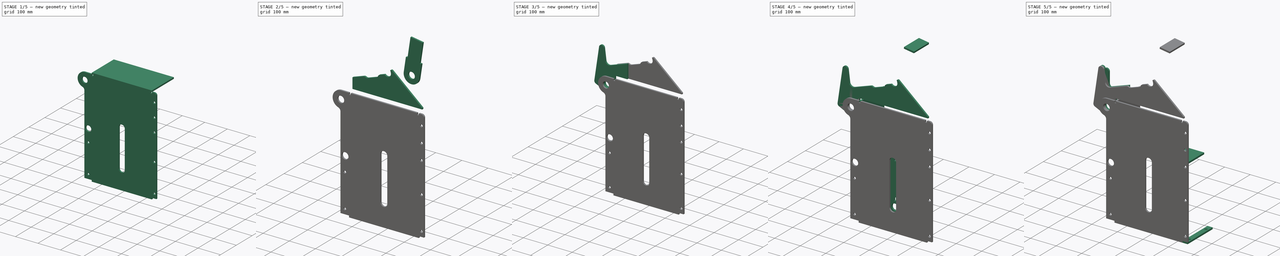
[diagram: build sequence overview — one tinted view per stage of 5, left to right]
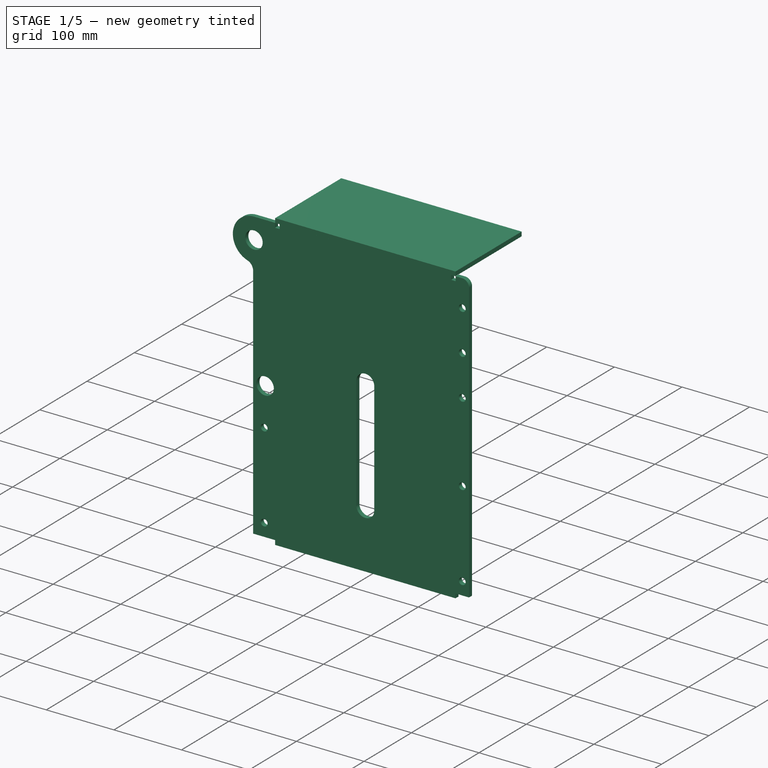
[diagram: stage 1 of 5 — iso view after this stage's code; geometry added in this stage tinted green]
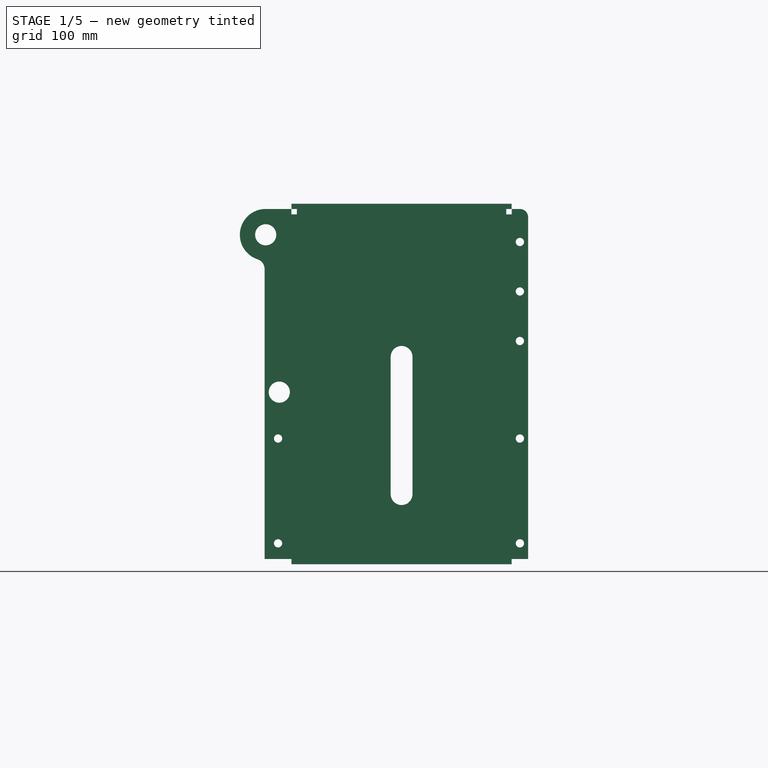
[diagram: stage 1 of 5 — front view after this stage's code; geometry added in this stage tinted green]
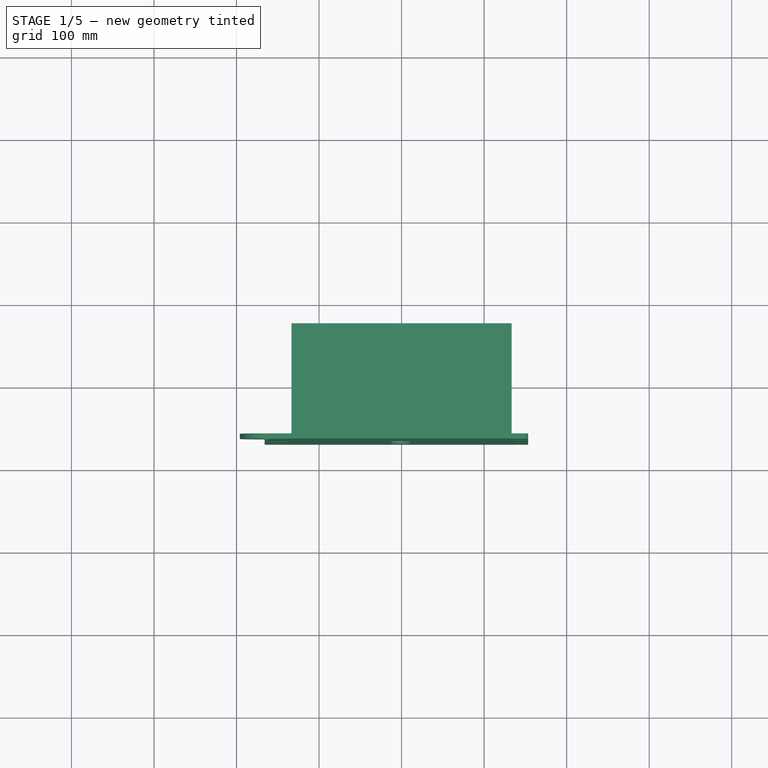
[diagram: stage 1 of 5 — top view after this stage's code; geometry added in this stage tinted green]
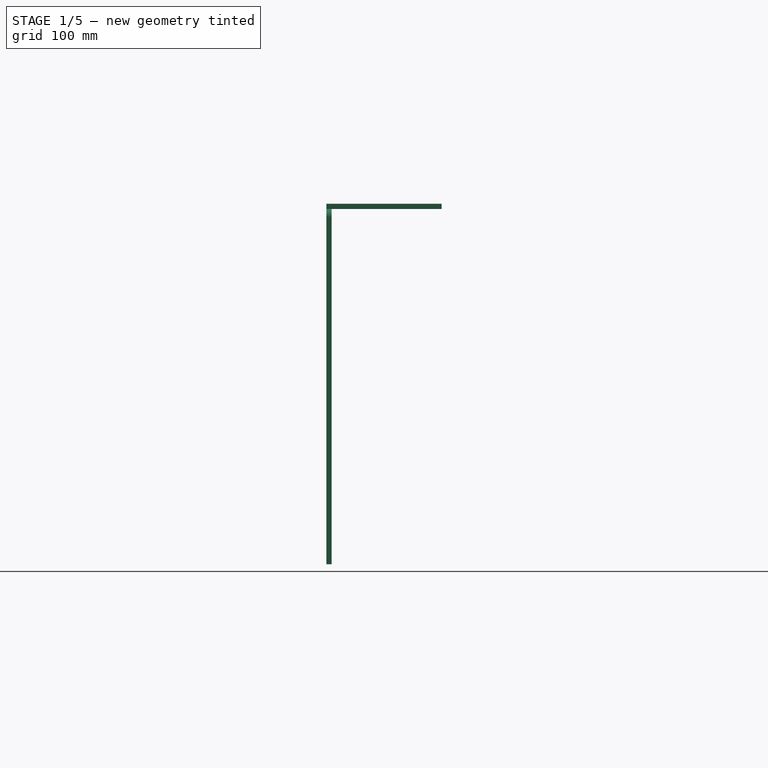
[diagram: stage 1 of 5 — right view after this stage's code; geometry added in this stage tinted green]
FCSTD DOCUMENT  (FreeCAD 0.21R33675 (Git))
Label: cinva_ram
License: All rights reserved
LicenseURL: http://en.wikipedia.org/wiki/All_rights_reserved
objects: Sketcher::SketchObject×50, PartDesign::ShapeBinder×18, PartDesign::SubShapeBinder×18, PartDesign::Pad×17, Part::Extrusion×15, PartDesign::Body×13, PartDesign::Pocket×3, Spreadsheet::Sheet×1, PartDesign::Line×1, PartDesign::FeatureBase×1
note: 156 computed .brp shape members not serialized (recipe doc carries the construction recipe); baked Part::Feature solids carry a one-line shape summary decoded from their .brp

FEATURE [Spreadsheet::Sheet] Spreadsheet  label="inputs"
  cells = A1='brick_width; B1(brick_width)==127 mm; C1='127mm=5"; A2='brick_length; B2(brick_length)==254 mm; C2='254mm=10"; A3='brick_thickness; B3(brick_thickness)==96 mm; C3='4" nominal thickness. brick is 3.74" with 0.25" slip mortar ; A4='compression_ratio; B4(compression_ratio)=1.7; A5='press_plate_clearance; B5(press_plate_clearance)==1 mm; A6='rod_diameter; B6(rod_diameter)==25.4 mm; C6='1 inch; A7='rod_clearance; B7(rod_clearance)==0.2 mm; A8='tab_clearance; B8(tab_clearance)==0.2 mm; A9='puller_bars_width; B9(puller_bars_width)==60 mm; C9='also used for boot width; A10='puller_cross_bar_width; B10(puller_cross_bar_width)==80 mm; A11='puller_arm_clearance; B11(puller_arm_clearance)==metal_thickness * 2 + 0.5 mm; C11='clerance between puller arms and press body. Use two spacers cut from the same sheet; A12='latch_height; B12(latch_height)==15 mm; A13='latch_pivot_hole_diameter; B13(latch_pivot_hole_diameter)==9.525 mm; C13='3/8 inch; A14='latch_tooth_length; B14(latch_tooth_length)==10 mm; A15='kerf; B15(kerf)==1.4 mm; A16='metal_thickness; B16(metal_thickness)==6.35 mm; C16=' 0.25 inch; A18='height_of_puller_connector; B18(height_of_puller_connector)==129.75 mm; C18='This is taken from the reference line in the sketch puller_connector_x4 (name: puller_connector_height); A20='connect_circle_to_outside_line_width; B20(connect_circle_to_outside_line_width)==0.3 mm; C20='optimization for faster cutting; A22='*************************; A23='empty_press_depth; B23(empty_press_depth)==brick_thickness * compression_ratio; A24='pusher_plate_height; B24(pusher_plate_height)==empty_press_depth + rod_hole_diameter + 10 mm; C24='distance from bottom of plate to center of pivot. previously equaliateral triangle: sqrt(3 / 2) * brick_width. now increasing height so that dirt cannot fall into slot. Ideally this value should be the max of the two approaches. +10mm thickness below rod hole and; A25='rod_hole_diameter; B25(rod_hole_diameter)==rod_diameter + rod_clearance; A26='compression_length; B26(compression_length)==empty_press_depth - brick_thickness; A27='cross_bar_length; B27(cross_bar_length)==brick_width + 2 * metal_thickness + 2 * puller_arm_clearance + 2 * metal_thickness; A30='******* 1" cold rolled round bar lengths; A31='bottom arm pivot; B31==cross_bar_length + 2 * 10 mm; A32='ejection hinge pin; B32==cross_bar_length + 2 * 10 mm; A33='lid hinge; B33==brick_width + 2 * metal_thickness; A34='heel hinge; B34==brick_width; A35='toe hinge; B35==metal_thickness * 8 + 2 * 10 mm; A36='handle bar; B36==height_of_puller_connector + 300 mm; A38='3/8" cold rolled latch joint shaft; B38==34.6 mm + metal_thickness * 6 + 2 * 2 mm + 2 * 5 mm
FEATURE [Sketcher::SketchObject] Sketch
  FullyConstrained = true
  MapMode = 5
  Support = -> [XY_Plane]
  expr: Constraints[10] = <<inputs>>.brick_length - <<inputs>>.press_plate_clearance * 2
  expr: Constraints[11] = <<inputs>>.brick_width - <<inputs>>.press_plate_clearance * 2
  sketch-geometry (5):
    g0: LineSegment StartX=-126 StartY=62.5 StartZ=0 EndX=-126 EndY=-62.5 EndZ=0
    g1: LineSegment StartX=-126 StartY=-62.5 StartZ=0 EndX=126 EndY=-62.5 EndZ=0
    g2: LineSegment StartX=126 StartY=-62.5 StartZ=0 EndX=126 EndY=62.5 EndZ=0
    g3: LineSegment StartX=126 StartY=62.5 StartZ=0 EndX=-126 EndY=62.5 EndZ=0
    g4: GeomPoint X=0 Y=0 Z=0
  constraints (12):
    c: Coincident(g0,g1)
    c: Coincident(g1,g2)
    c: Coincident(g2,g3)
    c: Coincident(g3,g0)
    c: Horizontal(g1)
    c: Horizontal(g3)
    c: Vertical(g0)
    c: Vertical(g2)
    c: Symmetric(g1,g0,g4)
    c: Coincident(g4,g-1)
    c: Distance(g3) = 252
    c: Distance(g2) = 125
FEATURE [PartDesign::Pad] Pad
  Direction = (0,0,1)
  Length = 6.35
  Length2 = 10
  Profile = -> Sketch
  ReferenceAxis = -> Sketch [N_Axis]
  Refine = true
  Reversed = true
  Type = 0
  expr: Length = <<inputs>>.metal_thickness
FEATURE [PartDesign::Body] Body  label="pusher_base_plate_v1"
  Group = -> [Sketch,Pad]
  Origin = -> Origin
  Tip = -> Pad
FEATURE [PartDesign::ShapeBinder] ShapeBinder
  Support = -> [Pad]
  TraceSupport = false
FEATURE [Sketcher::SketchObject] Sketch001
  ExternalGeometry = -> [ShapeBinder]
  FullyConstrained = true
  MapMode = 5
  Placement = pos=(0,0,0) rot=(1,0,0;1.5708rad)
  Support = -> [XZ_Plane001]
  expr: Constraints[19] = <<inputs>>.metal_thickness
  expr: Constraints[21] = <<inputs>>.pusher_plate_height
  expr: Constraints[5] = <<inputs>>.rod_hole_diameter
  sketch-geometry (10):
    g0: Circle CenterX=0 CenterY=-182.35 CenterZ=0 NormalX=0 NormalY=0 NormalZ=1 AngleXU=0 Radius=12.8
    g1: LineSegment StartX=-119.65 StartY=-6.35 StartZ=0 EndX=119.65 EndY=-6.35 EndZ=0
    g2: LineSegment StartX=-119.65 StartY=-6.35 StartZ=0 EndX=-126 EndY=-6.35 EndZ=0
    g3: LineSegment StartX=0 StartY=-195.15 StartZ=0 EndX=0 EndY=-205.15 EndZ=0
    g4: ArcOfCircle CenterX=0 CenterY=-182.35 CenterZ=0 NormalX=0 NormalY=0 NormalZ=1 AngleXU=0 Radius=22.8 StartAngle=3.76955 EndAngle=5.65523
    g5: LineSegment StartX=119.65 StartY=-56.35 StartZ=0 EndX=18.4504 EndY=-195.745 EndZ=0
    g6: LineSegment StartX=-18.4504 StartY=-195.745 StartZ=0 EndX=-119.65 EndY=-56.35 EndZ=0
    g7: LineSegment StartX=119.65 StartY=-6.35 StartZ=0 EndX=119.65 EndY=-56.35 EndZ=0
    g8: LineSegment StartX=-119.65 StartY=-6.35 StartZ=0 EndX=-119.65 EndY=-56.35 EndZ=0
    g9: LineSegment StartX=0 StartY=-205.15 StartZ=0 EndX=0 EndY=-6.35 EndZ=0
  constraints (26):
    c: PointOnObject(g0,g-2)
    c: PointOnObject(g1,g-3)
    c: Coincident(g2,g1)
    c: Coincident(g-3,g2)
    c: Symmetric(g1,g1,g-2)
    c: Diameter(g0) = 25.6
    c: PointOnObject(g3,g0)
    c: Distance(g3) = 10
    c: PointOnObject(g3,g-2)
    c: Vertical(g3)
    c: Coincident(g4,g0)
    c: PointOnObject(g3,g4)
    c: Coincident(g7,g1)
    c: Vertical(g7)
    c: Coincident(g8,g1)
    c: Coincident(g6,g8)
    c: Coincident(g5,g7)
    c: Tangent(g6,g4) = 1.5708
    c: Tangent(g5,g4) = 1.5708
    c: Distance(g2) = 6.35
    c: Coincident(g9,g3)
    c: Distance(g9) = 198.8
    c: PointOnObject(g9,g1)
    c: Vertical(g9)
    c: Symmetric(g6,g5,g9)
    c: Distance(g7) = 50
FEATURE [PartDesign::Pad] Pad001
  Direction = (0,-1,-2e-16)
  Length = 6.35
  Length2 = 10
  Placement = pos=(0,0,0) rot=(1,0,0;1.5708rad)
  Profile = -> Sketch001
  ReferenceAxis = -> Sketch001 [N_Axis]
  Refine = true
  Type = 0
  expr: Length = <<inputs>>.metal_thickness
FEATURE [PartDesign::Body] Body001  label="pusher_side_v1___x4"
  Group = -> [ShapeBinder,Sketch001,Pad001]
  Origin = -> Origin001
  Tip = -> Pad001
FEATURE [PartDesign::ShapeBinder] ShapeBinder001
  Placement = pos=(0,-6.35,-1.4e-15) rot=(0,0,1;0rad)
  Support = -> [Pad001]
  TraceSupport = false
FEATURE [PartDesign::ShapeBinder] ShapeBinder002
  Support = -> [Pad]
  TraceSupport = false
FEATURE [Sketcher::SketchObject] Sketch002
  ExternalGeometry = -> [ShapeBinder001,ShapeBinder002]
  FullyConstrained = true
  MapMode = 5
  Placement = pos=(0,-62.5,0) rot=(1,0,0;1.5708rad)
  Support = -> [ShapeBinder002]
  expr: Constraints[20] = <<inputs>>.empty_press_depth
  expr: Constraints[23] = <<inputs>>.empty_press_depth + <<inputs>>.metal_thickness * 0.5
  expr: Constraints[24] = <<inputs>>.brick_length + 2 * <<inputs>>.metal_thickness
  expr: Constraints[28] = <<inputs>>.rod_clearance * 2
  expr: Constraints[30] = <<inputs>>.puller_bars_width
  sketch-geometry (14):
    g0: ArcOfCircle CenterX=0 CenterY=-182.35 CenterZ=0 NormalX=0 NormalY=0 NormalZ=1 AngleXU=0 Radius=13.2 StartAngle=3.14159 EndAngle=6.28319
    g1: ArcOfCircle CenterX=0 CenterY=-15.975 CenterZ=0 NormalX=0 NormalY=0 NormalZ=1 AngleXU=0 Radius=13.2 StartAngle=-9e-16 EndAngle=3.14159
    g2: LineSegment StartX=13.2 StartY=-182.35 StartZ=0 EndX=13.2 EndY=-15.975 EndZ=0
    g3: LineSegment StartX=-13.2 StartY=-15.975 StartZ=0 EndX=-13.2 EndY=-182.35 EndZ=0
    g4: LineSegment StartX=-133.35 StartY=-267.35 StartZ=0 EndX=-133.35 EndY=163.2 EndZ=0
    g5: LineSegment StartX=-133.35 StartY=163.2 StartZ=0 EndX=133.35 EndY=163.2 EndZ=0
    g6: LineSegment StartX=133.35 StartY=163.2 StartZ=0 EndX=133.35 EndY=-267.35 EndZ=0
    g7: LineSegment StartX=133.35 StartY=-267.35 StartZ=0 EndX=-133.35 EndY=-267.35 EndZ=0
    g8: GeomPoint X=0 Y=-52.075 Z=0
    g9: LineSegment StartX=126 StartY=0 StartZ=0 EndX=126 EndY=163.2 EndZ=0
    g10: LineSegment StartX=0 StartY=-182.35 StartZ=0 EndX=0 EndY=-15.975 EndZ=0
    g11: LineSegment StartX=-12.8 StartY=-182.35 StartZ=0 EndX=-13.2 EndY=-182.35 EndZ=0
    g12: Circle CenterX=0 CenterY=-182.35 CenterZ=0 NormalX=0 NormalY=0 NormalZ=1 AngleXU=0 Radius=30
    g13: LineSegment StartX=0 StartY=-212.35 StartZ=0 EndX=0 EndY=-267.35 EndZ=0
  constraints (36):
    c: Tangent(g0,g2) = -1.5708
    c: Tangent(g2,g1) = -1.5708
    c: Tangent(g1,g3) = -1.5708
    c: Tangent(g3,g0) = -1.5708
    c: Equal(g0,g1)
    c: Coincident(g0,g-3)
    c: PointOnObject(g1,g-2)
    c: Coincident(g4,g5)
    c: Coincident(g5,g6)
    c: Coincident(g6,g7)
    c: Coincident(g7,g4)
    c: Horizontal(g5)
    c: Horizontal(g7)
    c: Vertical(g4)
    c: Vertical(g6)
    c: Symmetric(g5,g4,g8)
    c: PointOnObject(g8,g-2)
    c: Coincident(g9,g-5)
    c: PointOnObject(g9,g5)
    c: Vertical(g9)
    c: Distance(g9) = 163.2
    c: Coincident(g10,g0)
    c: Coincident(g10,g1)
    c: Distance(g10) = 166.375
    c: Distance(g5) = 266.7
    c: PointOnObject(g11,g-3)
    c: Coincident(g11,g0)
    c: Horizontal(g11)
    c: Distance(g11) = 0.4
    c: Coincident(g12,g0)
    c: Diameter(g12) = 60
    c: PointOnObject(g13,g12)
    c: PointOnObject(g13,g7)
    c: Vertical(g13)
    c: PointOnObject(g13,g-2)
    c: Distance(g13) = 55
FEATURE [PartDesign::ShapeBinder] ShapeBinder003
  Support = -> [Pad]
  TraceSupport = false
FEATURE [PartDesign::Line] DatumLine
  AttacherType = Attacher::AttachEngineLine
  Length = 20
  ResizeMode = 0
FEATURE [PartDesign::Pad] Pad002
  Direction = (0,-1,2e-16)
  Length = 6.35
  Length2 = 10
  Profile = -> Sketch002
  ReferenceAxis = -> Sketch002 [N_Axis]
  Refine = true
  Type = 0
  expr: Length = <<inputs>>.metal_thickness
FEATURE [PartDesign::ShapeBinder] ShapeBinder005
  Support = -> [Pad002]
  TraceSupport = false
FEATURE [PartDesign::ShapeBinder] ShapeBinder006
  Support = -> [Pad003]
  TraceSupport = false
FEATURE [Sketcher::SketchObject] Sketch005
  ExternalGeometry = -> [ShapeBinder005]
  FullyConstrained = true
  MapMode = 5
  Placement = pos=(0,3.62e-14,163.2) rot=(0,0,1;0rad)
  Support = -> [ShapeBinder005]
  expr: Constraints[10] = <<inputs>>.brick_length + 2 * <<inputs>>.metal_thickness
  expr: Constraints[9] = <<inputs>>.brick_width + 2 * <<inputs>>.metal_thickness
  sketch-geometry (4):
    g0: LineSegment StartX=133.35 StartY=-68.85 StartZ=0 EndX=-133.35 EndY=-68.85 EndZ=0
    g1: LineSegment StartX=-133.35 StartY=-68.85 StartZ=0 EndX=-133.35 EndY=70.85 EndZ=0
    g2: LineSegment StartX=-133.35 StartY=70.85 StartZ=0 EndX=133.35 EndY=70.85 EndZ=0
    g3: LineSegment StartX=133.35 StartY=70.85 StartZ=0 EndX=133.35 EndY=-68.85 EndZ=0
  constraints (11):
    c: Coincident(g0,g1)
    c: Coincident(g1,g2)
    c: Coincident(g2,g3)
    c: Coincident(g3,g0)
    c: Horizontal(g0)
    c: Horizontal(g2)
    c: Vertical(g1)
    c: Vertical(g3)
    c: Coincident(g0,g-3)
    c: Distance(g3) = 139.7
    c: Distance(g2) = 266.7
FEATURE [PartDesign::Pad] Pad004
  Direction = (0,2e-16,1)
  Length = 6.35
  Length2 = 10
  Profile = -> Sketch005
  ReferenceAxis = -> Sketch005 [N_Axis]
  Refine = true
  Type = 0
  expr: Length = <<inputs>>.metal_thickness
FEATURE [Sketcher::SketchObject] Sketch020  label="add_hole_for_pivot_etc"
  ExternalGeometry = -> [Pad002]
  FullyConstrained = true
  MapMode = 5
  Placement = pos=(0,-68.85,1.49e-14) rot=(1,0,0;1.5708rad)
  Support = -> [Pad002]
  expr: Constraints[115] = 25.4 mm * 5
  expr: Constraints[13] = <<inputs>>.puller_bars_width
  expr: Constraints[15] = <<inputs>>.rod_hole_diameter
  expr: Constraints[85] = <<inputs>>.metal_thickness + 0.1 mm
  sketch-geometry (62):
    g0: LineSegment StartX=0 StartY=-15.975 StartZ=0 EndX=-163.35 EndY=-15.975 EndZ=0
    g1: LineSegment StartX=-193.35 StartY=-45.975 StartZ=0 EndX=-193.35 EndY=14.025 EndZ=0
    g2: LineSegment StartX=-193.35 StartY=14.025 StartZ=0 EndX=-133.35 EndY=14.025 EndZ=0
    g3: LineSegment StartX=-133.35 StartY=14.025 StartZ=0 EndX=-133.35 EndY=-45.975 EndZ=0
    g4: LineSegment StartX=-133.35 StartY=-45.975 StartZ=0 EndX=-193.35 EndY=-45.975 EndZ=0
    g5: GeomPoint X=-163.35 Y=-15.975 Z=0
    g6: Circle CenterX=-148.15 CenterY=-58.775 CenterZ=0 NormalX=0 NormalY=0 NormalZ=1 AngleXU=0 Radius=12.8
    g7: LineSegment StartX=153.35 StartY=-267.35 StartZ=0 EndX=133.35 EndY=-267.35 EndZ=0
    g8: LineSegment StartX=-135.35 StartY=-58.775 StartZ=0 EndX=-133.35 EndY=-58.775 EndZ=0
    g9: LineSegment StartX=-160.95 StartY=-58.775 StartZ=0 EndX=-165.95 EndY=-58.775 EndZ=0
    g10: LineSegment StartX=-133.35 StartY=163.2 StartZ=0 EndX=-149.65 EndY=163.2 EndZ=0
    g11: LineSegment StartX=-149.65 StartY=163.2 StartZ=0 EndX=-165.95 EndY=163.2 EndZ=0
    g12: LineSegment StartX=-165.95 StartY=146.9 StartZ=0 EndX=-165.95 EndY=163.2 EndZ=0
    g13: ArcOfCircle CenterX=-149.65 CenterY=146.9 CenterZ=0 NormalX=0 NormalY=0 NormalZ=1 AngleXU=0 Radius=16.3 StartAngle=1.5708 EndAngle=3.14159
    g14: Circle CenterX=143.35 CenterY=153.2 CenterZ=0 NormalX=0 NormalY=0 NormalZ=1 AngleXU=0 Radius=5
    g15: Circle CenterX=143.35 CenterY=93.2 CenterZ=0 NormalX=0 NormalY=0 NormalZ=1 AngleXU=0 Radius=5
    g16: Circle CenterX=143.35 CenterY=33.2 CenterZ=0 NormalX=0 NormalY=0 NormalZ=1 AngleXU=0 Radius=5
    g17: Circle CenterX=143.35 CenterY=153.2 CenterZ=0 NormalX=0 NormalY=0 NormalZ=1 AngleXU=0 Radius=10
    g18: LineSegment StartX=143.35 StartY=153.2 StartZ=0 EndX=143.35 EndY=163.2 EndZ=0
    g19: LineSegment StartX=143.35 StartY=153.2 StartZ=0 EndX=143.35 EndY=93.2 EndZ=0
    g20: LineSegment StartX=143.35 StartY=93.2 StartZ=0 EndX=143.35 EndY=33.2 EndZ=0
    g21: LineSegment StartX=138.35 StartY=93.2 StartZ=0 EndX=133.35 EndY=93.2 EndZ=0
    g22: LineSegment StartX=133.35 StartY=-4.8 StartZ=0 EndX=153.35 EndY=-4.8 EndZ=0
    g23: LineSegment StartX=143.35 StartY=28.2 StartZ=0 EndX=143.35 EndY=-4.8 EndZ=0
    g24: LineSegment StartX=133.35 StartY=163.2 StartZ=0 EndX=143.35 EndY=163.2 EndZ=0
    g25: LineSegment StartX=143.35 StartY=163.2 StartZ=0 EndX=153.35 EndY=163.2 EndZ=0
    g26: LineSegment StartX=153.35 StartY=163.2 StartZ=0 EndX=153.35 EndY=153.2 EndZ=0
    g27: ArcOfCircle CenterX=143.35 CenterY=153.2 CenterZ=0 NormalX=0 NormalY=0 NormalZ=1 AngleXU=0 Radius=10 StartAngle=7e-16 EndAngle=1.5708
    g28: LineSegment StartX=-165.95 StartY=-267.35 StartZ=0 EndX=-165.95 EndY=-260.9 EndZ=0
    g29: LineSegment StartX=153.35 StartY=153.2 StartZ=0 EndX=153.35 EndY=-260.9 EndZ=0
    g30: LineSegment StartX=153.35 StartY=-260.9 StartZ=0 EndX=153.35 EndY=-267.35 EndZ=0
    g31: LineSegment StartX=-165.95 StartY=-260.9 StartZ=0 EndX=-133.35 EndY=-260.9 EndZ=0
    g32: LineSegment StartX=-133.35 StartY=163.2 StartZ=0 EndX=-133.35 EndY=-260.9 EndZ=0
    g33: LineSegment StartX=-133.35 StartY=-260.9 StartZ=0 EndX=-133.35 EndY=-267.35 EndZ=0
    g34: LineSegment StartX=133.35 StartY=-267.35 StartZ=0 EndX=133.35 EndY=-260.9 EndZ=0
    g35: LineSegment StartX=133.35 StartY=-260.9 StartZ=0 EndX=133.35 EndY=163.2 EndZ=0
    g36: LineSegment StartX=133.35 StartY=-260.9 StartZ=0 EndX=153.35 EndY=-260.9 EndZ=0
    g37: LineSegment StartX=-165.95 StartY=-267.35 StartZ=0 EndX=-133.35 EndY=-267.35 EndZ=0
    g38: Circle CenterX=-149.65 CenterY=146.9 CenterZ=0 NormalX=0 NormalY=0 NormalZ=1 AngleXU=0 Radius=16.3
    g39: Circle CenterX=-149.65 CenterY=-241.95 CenterZ=0 NormalX=0 NormalY=0 NormalZ=1 AngleXU=0 Radius=5
    g40: Circle CenterX=-149.65 CenterY=-114.95 CenterZ=0 NormalX=0 NormalY=0 NormalZ=1 AngleXU=0 Radius=5
    g41: Circle CenterX=143.35 CenterY=-241.95 CenterZ=0 NormalX=0 NormalY=0 NormalZ=1 AngleXU=0 Radius=5
    g42: Circle CenterX=143.35 CenterY=-114.95 CenterZ=0 NormalX=0 NormalY=0 NormalZ=1 AngleXU=0 Radius=5
    g43: Circle CenterX=-149.65 CenterY=-241.95 CenterZ=0 NormalX=0 NormalY=0 NormalZ=1 AngleXU=0 Radius=16.3
    g44: LineSegment StartX=-149.65 StartY=-114.95 StartZ=0 EndX=-149.65 EndY=-241.95 EndZ=0
    g45: LineSegment StartX=143.35 StartY=-114.95 StartZ=0 EndX=143.35 EndY=-241.95 EndZ=0
    g46: LineSegment StartX=143.35 StartY=-241.95 StartZ=0 EndX=-149.65 EndY=-241.95 EndZ=0
    g47: LineSegment StartX=-149.65 StartY=-241.95 StartZ=0 EndX=-149.65 EndY=-267.35 EndZ=0
    g48: Circle CenterX=143.35 CenterY=-241.95 CenterZ=0 NormalX=0 NormalY=0 NormalZ=1 AngleXU=0 Radius=10
    g49: Circle CenterX=-149.65 CenterY=125.4 CenterZ=0 NormalX=0 NormalY=0 NormalZ=1 AngleXU=0 Radius=12.8
    g50: LineSegment StartX=-136.85 StartY=125.4 StartZ=0 EndX=-133.35 EndY=125.4 EndZ=0
    g51: LineSegment StartX=-149.65 StartY=146.9 StartZ=0 EndX=-149.65 EndY=125.4 EndZ=0
    g52: LineSegment StartX=-149.65 StartY=163.2 StartZ=0 EndX=-149.65 EndY=138.2 EndZ=0
    g53: LineSegment StartX=-165.95 StartY=-260.9 StartZ=0 EndX=-165.95 EndY=90.3308 EndZ=0
    g54: LineSegment StartX=-165.95 StartY=90.3308 StartZ=0 EndX=-165.95 EndY=146.9 EndZ=0
    g55: Circle CenterX=-164.65 CenterY=131.9 CenterZ=0 NormalX=0 NormalY=0 NormalZ=1 AngleXU=0 Radius=12.8
    g56: Circle CenterX=-164.65 CenterY=131.9 CenterZ=0 NormalX=0 NormalY=0 NormalZ=1 AngleXU=0 Radius=31.3
    g57: LineSegment StartX=-164.65 StartY=163.2 StartZ=0 EndX=-149.65 EndY=163.2 EndZ=0
    g58: ArcOfCircle CenterX=-178.45 CenterY=90.3308 CenterZ=0 NormalX=0 NormalY=0 NormalZ=1 AngleXU=0 Radius=12.5 StartAngle=4e-16 EndAngle=1.25027
    g59: LineSegment StartX=-149.65 StartY=125.4 StartZ=0 EndX=-164.65 EndY=125.4 EndZ=0
    g60: LineSegment StartX=-164.65 StartY=131.9 StartZ=0 EndX=-164.65 EndY=125.4 EndZ=0
    g61: ArcOfCircle CenterX=-164.65 CenterY=131.9 CenterZ=0 NormalX=0 NormalY=0 NormalZ=1 AngleXU=0 Radius=31.3 StartAngle=1.5708 EndAngle=4.39186
  constraints (170):
    c: Coincident(g0,g-3)
    c: Horizontal(g0)
    c: Coincident(g1,g2)
    c: Coincident(g2,g3)
    c: Coincident(g3,g4)
    c: Coincident(g4,g1)
    c: Horizontal(g2)
    c: Horizontal(g4)
    c: Vertical(g1)
    c: Vertical(g3)
    c: Symmetric(g2,g1,g5)
    c: Coincident(g5,g0)
    c: Equal(g2,g3)
    c: Distance(g2) = 60
    c: Tangent(g6,g4)
    c: Diameter(g6) = 25.6
    c: PointOnObject(g2,g-4)
    c: Coincident(g33,g-4)
    c: Coincident(g32,g-4)
    c: Coincident(g10,g32)
    c: Coincident(g12,g11)
    c: Coincident(g25,g26)
    c: Coincident(g30,g7)
    c: Coincident(g7,g34)
    c: Coincident(g35,g24)
    c: Horizontal(g7)
    c: Coincident(g24,g-5)
    c: Coincident(g7,g-5)
    c: PointOnObject(g8,g6)
    c: Horizontal(g8)
    c: PointOnObject(g9,g6)
    c: Perpendicular(g6,g9)
    c: Perpendicular(g6,g8)
    c: Distance(g8) = 2
    c: Distance(g9) = 5
    c: Coincident(g10,g11)
    c: Horizontal(g10)
    c: Horizontal(g11)
    c: Coincident(g54,g12)
    c: Vertical(g12)
    c: Tangent(g13,g10) = -1.5708
    c: Diameter(g13) = 32.6
    c: Equal(g16,g15)
    c: Equal(g15,g14)
    c: Diameter(g14) = 10
    c: Coincident(g17,g14)
    c: Coincident(g18,g14)
    c: PointOnObject(g18,g17)
    c: Vertical(g18)
    c: Coincident(g19,g14)
    c: Coincident(g19,g15)
    c: Coincident(g20,g15)
    c: Coincident(g20,g16)
    c: Vertical(g19)
    c: Vertical(g20)
    c: Distance(g19) = 60
    c: Equal(g20,g19)
    c: PointOnObject(g21,g15)
    c: Horizontal(g21)
    c: Perpendicular(g15,g21)
    c: Distance(g21) = 5
    c: Horizontal(g22)
    c: PointOnObject(g23,g16)
    c: PointOnObject(g23,g22)
    c: Vertical(g23)
    c: Perpendicular(g16,g23)
    c: Distance(g23) = 33
    c: Coincident(g24,g25)
    c: Horizontal(g24)
    c: Horizontal(g25)
    c: Tangent(g17,g24)
    c: Coincident(g26,g29)
    c: Vertical(g26)
    c: Tangent(g17,g26)
    c: PointOnObject(g22,g26)
    c: Tangent(g27,g24) = 1.5708
    c: Equal(g17,g27)
    c: Coincident(g28,g53)
    c: Vertical(g28)
    c: PointOnObject(g9,g28)
    c: Perpendicular(g28,g9)
    c: Coincident(g29,g30)
    c: Vertical(g29)
    c: Vertical(g30)
    c: Equal(g30,g28)
    c: Distance(g28) = 6.45
    c: Coincident(g31,g53)
    c: Horizontal(g31)
    c: Coincident(g32,g33)
    c: PointOnObject(g8,g32)
    c: Coincident(g31,g32)
    c: PointOnObject(g31,g-4)
    c: Coincident(g34,g35)
    c: Tangent(g17,g34)
    c: Tangent(g17,g35)
    c: PointOnObject(g21,g35)
    c: PointOnObject(g22,g34)
    c: Coincident(g36,g35)
    c: Coincident(g36,g29)
    c: Horizontal(g36)
    c: Coincident(g37,g28)
    c: Coincident(g37,g33)
    c: Horizontal(g37)
    c: Coincident(g13,g54) = 1.5708
    c: Tangent(g27,g29) = 1.5708
    c: Distance(g36) = 20
    c: Coincident(g38,g13)
    c: Tangent(g32,g38)
    c: Equal(g41,g42)
    c: Equal(g39,g40)
    c: Coincident(g43,g39)
    c: Tangent(g43,g32)
    c: Coincident(g44,g40)
    c: Coincident(g44,g39)
    c: Vertical(g44)
    c: Distance(g44) = 127
    c: Coincident(g45,g42)
    c: Coincident(g45,g41)
    c: Vertical(g45)
    c: Coincident(g46,g41)
    c: Coincident(g46,g39)
    c: Horizontal(g46)
    c: Coincident(g47,g39)
    c: PointOnObject(g47,g37)
    c: Distance(g47) = 25.4
    c: Vertical(g47)
    c: Equal(g42,g39)
    c: Equal(g39,g14)
    c: Coincident(g48,g41)
    c: Tangent(g48,g29)
    c: Tangent(g35,g48)
    c: Equal(g45,g44)
    c: Equal(g49,g6)
    c: PointOnObject(g50,g49)
    c: PointOnObject(g50,g32)
    c: Perpendicular(g49,g50)
    c: Perpendicular(g32,g50)
    c: Distance(g50) = 3.5
    c: Coincident(g51,g13)
    c: Coincident(g51,g49)
    c: Vertical(g51)
    c: Coincident(g52,g10)
    c: PointOnObject(g52,g49)
    c: Vertical(g52)
    c: Distance(g52) = 25
    c: Coincident(g53,g54)
    c: Vertical(g53)
    c: Tangent(g38,g53)
    c: Tangent(g38,g54)
    c: Tangent(g43,g53)
    c: Equal(g55,g49)
    c: Coincident(g56,g55)
    c: Tangent(g56,g32)
    c: Coincident(g57,g10)
    c: Tangent(g57,g38)
    c: Horizontal(g57)
    c: Tangent(g58,g53) = -1.5708
    c: Tangent(g58,g56)
    c: Coincident(g59,g49)
    c: Horizontal(g59)
    c: Coincident(g60,g55)
    c: Coincident(g60,g59)
    c: Vertical(g60)
    c: Distance(g59) = 15
    c: Tangent(g57,g56) = 1.5708
    c: Coincident(g61,g57)
    c: PointOnObject(g61,g56)
    c: Coincident(g61,g58)
    c: Equal(g56,g61)
    c: Diameter(g58) = 25
FEATURE [Sketcher::SketchObject] Sketch021
  ExternalGeometry = -> [Pad002]
  FullyConstrained = true
  MapMode = 5
  Placement = pos=(0,-68.85,1.49e-14) rot=(1,0,0;1.5708rad)
  Support = -> [Pad002]
  expr: Constraints[14] = <<inputs>>.puller_bars_width
  expr: Constraints[16] = <<inputs>>.rod_hole_diameter
  expr: Constraints[19] = <<inputs>>.rod_hole_diameter + 2 * 10 mm
  sketch-geometry (14):
    g0: LineSegment StartX=0 StartY=-15.975 StartZ=0 EndX=-133.35 EndY=-15.975 EndZ=0
    g1: LineSegment StartX=-163.35 StartY=14.025 StartZ=0 EndX=-163.35 EndY=-45.975 EndZ=0
    g2: LineSegment StartX=-163.35 StartY=-45.975 StartZ=0 EndX=-103.35 EndY=-45.975 EndZ=0
    g3: LineSegment StartX=-103.35 StartY=-45.975 StartZ=0 EndX=-103.35 EndY=14.025 EndZ=0
    g4: LineSegment StartX=-103.35 StartY=14.025 StartZ=0 EndX=-163.35 EndY=14.025 EndZ=0
    g5: GeomPoint X=-133.35 Y=-15.975 Z=0
    g6: Circle CenterX=-156.15 CenterY=-58.775 CenterZ=0 NormalX=0 NormalY=0 NormalZ=1 AngleXU=0 Radius=12.8
    g7: Circle CenterX=-156.15 CenterY=-58.775 CenterZ=0 NormalX=0 NormalY=0 NormalZ=1 AngleXU=0 Radius=22.8
    g8: LineSegment StartX=-133.35 StartY=-35.975 StartZ=0 EndX=-156.15 EndY=-35.975 EndZ=0
    g9: ArcOfCircle CenterX=-156.15 CenterY=-58.775 CenterZ=0 NormalX=0 NormalY=0 NormalZ=1 AngleXU=0 Radius=22.8 StartAngle=1.5708 EndAngle=3.14159
    g10: LineSegment StartX=-178.95 StartY=-58.775 StartZ=0 EndX=-156.15 EndY=-58.775 EndZ=0
    g11: LineSegment StartX=-133.35 StartY=-35.975 StartZ=0 EndX=-133.35 EndY=-267.35 EndZ=0
    g12: LineSegment StartX=-178.95 StartY=-58.775 StartZ=0 EndX=-178.95 EndY=-267.35 EndZ=0
    g13: LineSegment StartX=-178.95 StartY=-267.35 StartZ=0 EndX=-133.35 EndY=-267.35 EndZ=0
  constraints (35):
    c: Coincident(g0,g-5)
    c: PointOnObject(g0,g-3)
    c: Horizontal(g0)
    c: Coincident(g1,g2)
    c: Coincident(g2,g3)
    c: Coincident(g3,g4)
    c: Coincident(g4,g1)
    c: Horizontal(g2)
    c: Horizontal(g4)
    c: Vertical(g1)
    c: Vertical(g3)
    c: Symmetric(g2,g1,g5)
    c: Coincident(g5,g0)
    c: Equal(g4,g3)
    c: Distance(g4) = 60
    c: Tangent(g6,g2)
    c: Diameter(g6) = 25.6
    c: Coincident(g7,g6)
    c: Tangent(g7,g-3)
    c: Diameter(g7) = 45.6
    c: PointOnObject(g8,g-3)
    c: Perpendicular(g-3,g8)
    c: Tangent(g8,g7) = -1.5708
    c: Coincident(g9,g6)
    c: Coincident(g9,g8)
    c: Coincident(g10,g9)
    c: Coincident(g10,g6)
    c: Horizontal(g10)
    c: Coincident(g11,g8)
    c: Coincident(g-3,g11)
    c: Coincident(g12,g9)
    c: Vertical(g12)
    c: Coincident(g13,g12)
    c: Coincident(g13,g11)
    c: Horizontal(g13)
FEATURE [PartDesign::Pad] Pad014  label="add_side_holes"
  BaseFeature = -> Pad002
  Direction = (0,-1,2e-16)
  Length = 6.35
  Length2 = 10
  Profile = -> Sketch020
  ReferenceAxis = -> Sketch020 [N_Axis]
  Refine = true
  Reversed = true
  Type = 0
  expr: Length = <<inputs>>.metal_thickness
FEATURE [Sketcher::SketchObject] Sketch033  label="rotated_for_export__pusher_side_x4"
  AttachmentOffset = pos=(0,0,0) rot=(1,0,0;1.5708rad)
  ExternalGeometry = -> [ShapeBinder]
  FullyConstrained = true
  MapMode = 5
  Placement = pos=(0,0,0) rot=(1,0,0;3.14159rad)
  Support = -> [XZ_Plane001]
  expr: Constraints[19] = <<inputs>>.metal_thickness
  expr: Constraints[21] = <<inputs>>.pusher_plate_height
  expr: Constraints[5] = <<inputs>>.rod_hole_diameter
  sketch-geometry (10):
    g0: Circle CenterX=0 CenterY=-113.5 CenterZ=0 NormalX=0 NormalY=0 NormalZ=1 AngleXU=0 Radius=12.8
    g1: LineSegment StartX=-119.65 StartY=62.5 StartZ=0 EndX=119.65 EndY=62.5 EndZ=0
    g2: LineSegment StartX=-119.65 StartY=62.5 StartZ=0 EndX=-126 EndY=62.5 EndZ=0
    g3: LineSegment StartX=0 StartY=-126.3 StartZ=0 EndX=0 EndY=-136.3 EndZ=0
    g4: ArcOfCircle CenterX=0 CenterY=-113.5 CenterZ=0 NormalX=0 NormalY=0 NormalZ=1 AngleXU=0 Radius=22.8 StartAngle=3.76955 EndAngle=5.65523
    g5: LineSegment StartX=119.65 StartY=12.5 StartZ=0 EndX=18.4504 EndY=-126.895 EndZ=0
    g6: LineSegment StartX=-18.4504 StartY=-126.895 StartZ=0 EndX=-119.65 EndY=12.5 EndZ=0
    g7: LineSegment StartX=119.65 StartY=62.5 StartZ=0 EndX=119.65 EndY=12.5 EndZ=0
    g8: LineSegment StartX=-119.65 StartY=62.5 StartZ=0 EndX=-119.65 EndY=12.5 EndZ=0
    g9: LineSegment StartX=0 StartY=-136.3 StartZ=0 EndX=0 EndY=62.5 EndZ=0
  constraints (26):
    c: PointOnObject(g0,g-2)
    c: PointOnObject(g1,g-3)
    c: Coincident(g2,g1)
    c: Coincident(g-3,g2)
    c: Symmetric(g1,g1,g-2)
    c: Diameter(g0) = 25.6
    c: PointOnObject(g3,g0)
    c: Distance(g3) = 10
    c: PointOnObject(g3,g-2)
    c: Vertical(g3)
    c: Coincident(g4,g0)
    c: PointOnObject(g3,g4)
    c: Coincident(g7,g1)
    c: Vertical(g7)
    c: Coincident(g8,g1)
    c: Coincident(g6,g8)
    c: Coincident(g5,g7)
    c: Tangent(g6,g4) = 1.5708
    c: Tangent(g5,g4) = 1.5708
    c: Distance(g2) = 6.35
    c: Coincident(g9,g3)
    c: Distance(g9) = 198.8
    c: PointOnObject(g9,g1)
    c: Vertical(g9)
    c: Symmetric(g6,g5,g9)
    c: Distance(g7) = 50
FEATURE [Sketcher::SketchObject] Sketch035  label="arm_angle_of_rotation_reference_sketch"
  ExternalGeometry = -> [Pad010]
  FullyConstrained = true
  MapMode = 5
  Placement = pos=(2.8e-15,-89.4,1.73e-14) rot=(1,0,0;1.5708rad)
  Support = -> [Pad010]
  sketch-geometry (2):
    g0: LineSegment StartX=0 StartY=0 StartZ=0 EndX=0 EndY=277.134 EndZ=0
    g1: LineSegment StartX=0 StartY=0 StartZ=0 EndX=44.2491 EndY=308.693 EndZ=0
  constraints (6):
    c: Coincident(g0,g-1)
    c: PointOnObject(g0,g-2)
    c: Coincident(g1,g0)
    c: Coincident(g1,g-3)
    c: Block(g0)
    c: Angle(g-3,g0) = 0.150755
FEATURE [Sketcher::SketchObject] Sketch037  label="__4x8_metal_sheet"
  FullyConstrained = true
  MapMode = 5
  Support = -> [XY_Plane009]
  sketch-geometry (5):
    g0: LineSegment StartX=-1219.2 StartY=609.6 StartZ=0 EndX=-1219.2 EndY=-609.6 EndZ=0
    g1: LineSegment StartX=-1219.2 StartY=-609.6 StartZ=0 EndX=1219.2 EndY=-609.6 EndZ=0
    g2: LineSegment StartX=1219.2 StartY=-609.6 StartZ=0 EndX=1219.2 EndY=609.6 EndZ=0
    g3: LineSegment StartX=1219.2 StartY=609.6 StartZ=0 EndX=-1219.2 EndY=609.6 EndZ=0
    g4: GeomPoint X=0 Y=0 Z=0
  constraints (12):
    c: Coincident(g0,g1)
    c: Coincident(g1,g2)
    c: Coincident(g2,g3)
    c: Coincident(g3,g0)
    c: Horizontal(g1)
    c: Horizontal(g3)
    c: Vertical(g0)
    c: Vertical(g2)
    c: Symmetric(g1,g0,g4)
    c: Coincident(g4,g-1)
    c: Distance(g2) = 1219.2
    c: Distance(g1) = 2438.4
FEATURE [Sketcher::SketchObject] Sketch039
  ExternalGeometry = -> [Sketch020]
  FullyConstrained = true
  MapMode = 5
  Placement = pos=(1e-16,-68.85,1.5e-14) rot=(1,0,0;1.5708rad)
  Support = -> [Pad014]
  expr: Constraints[12] = <<inputs>>.metal_thickness + <<inputs>>.tab_clearance * 2
  expr: Constraints[13] = <<inputs>>.metal_thickness + <<inputs>>.tab_clearance
  expr: Constraints[1] = <<inputs>>.brick_length + <<inputs>>.metal_thickness
  sketch-geometry (11):
    g0: LineSegment StartX=130.175 StartY=159.925 StartZ=0 EndX=-130.175 EndY=159.925 EndZ=0
    g1: LineSegment StartX=-133.55 StartY=156.65 StartZ=0 EndX=-133.55 EndY=163.2 EndZ=0
    g2: LineSegment StartX=-133.55 StartY=163.2 StartZ=0 EndX=-126.8 EndY=163.2 EndZ=0
    g3: LineSegment StartX=-126.8 StartY=163.2 StartZ=0 EndX=-126.8 EndY=156.65 EndZ=0
    g4: LineSegment StartX=-126.8 StartY=156.65 StartZ=0 EndX=-133.55 EndY=156.65 EndZ=0
    g5: GeomPoint X=-130.175 Y=159.925 Z=0
    g6: LineSegment StartX=126.8 StartY=156.65 StartZ=0 EndX=126.8 EndY=163.2 EndZ=0
    g7: LineSegment StartX=126.8 StartY=163.2 StartZ=0 EndX=133.55 EndY=163.2 EndZ=0
    g8: LineSegment StartX=133.55 StartY=163.2 StartZ=0 EndX=133.55 EndY=156.65 EndZ=0
    g9: LineSegment StartX=133.55 StartY=156.65 StartZ=0 EndX=126.8 EndY=156.65 EndZ=0
    g10: GeomPoint X=130.175 Y=159.925 Z=0
  constraints (27):
    c: Symmetric(g0,g0,g-2)
    c: Distance(g0) = 260.35
    c: Coincident(g1,g2)
    c: Coincident(g2,g3)
    c: Coincident(g3,g4)
    c: Coincident(g4,g1)
    c: Horizontal(g2)
    c: Horizontal(g4)
    c: Vertical(g1)
    c: Vertical(g3)
    c: Symmetric(g2,g1,g5)
    c: Coincident(g5,g0)
    c: Distance(g2) = 6.75
    c: Distance(g1) = 6.55
    c: Coincident(g6,g7)
    c: Coincident(g7,g8)
    c: Coincident(g8,g9)
    c: Coincident(g9,g6)
    c: Horizontal(g7)
    c: Horizontal(g9)
    c: Vertical(g6)
    c: Vertical(g8)
    c: Symmetric(g7,g6,g10)
    c: Coincident(g10,g0)
    c: PointOnObject(g1,g-3)
    c: Equal(g8,g3)
    c: Equal(g2,g7)
FEATURE [PartDesign::Pocket] Pocket  label="upper_tabs"
  BaseFeature = -> Pad014
  Direction = (0,1,-2e-16)
  Length = 6.35
  Length2 = 5
  Profile = -> Sketch039
  ReferenceAxis = -> Sketch039 [N_Axis]
  Refine = true
  Type = 0
  expr: Length = <<inputs>>.metal_thickness
FEATURE [PartDesign::SubShapeBinder] Binder005  label="dxf_export_pusher_side_v2__x2"
  BindCopyOnChange = 0
  BindMode = 0
  ClaimChildren = false
  Fuse = false
  MakeFace = true
  OffsetFill = false
  OffsetIntersection = false
  OffsetJoinType = 0
  OffsetOpenResult = false
  PartialLoad = false
  Placement = pos=(0,0,0) rot=(1,0,0;1.5708rad)
  Refine = true
  Relative = true
  Support = -> [Extrude012[Face17]]
  _Version = 2
FEATURE [PartDesign::SubShapeBinder] Binder006  label="dxf_export_pusher_support_v2"
  BindCopyOnChange = 0
  BindMode = 0
  ClaimChildren = false
  Fuse = false
  MakeFace = true
  OffsetFill = false
  OffsetIntersection = false
  OffsetJoinType = 0
  OffsetOpenResult = false
  PartialLoad = false
  Placement = pos=(0,0,0) rot=(0,1,0;1.5708rad)
  Refine = true
  Relative = true
  Support = -> [Extrude013[Face24]]
  _Version = 2
FEATURE [PartDesign::SubShapeBinder] Binder007  label="dxf_export_pusher_base_plate_v2"
  BindCopyOnChange = 0
  BindMode = 0
  ClaimChildren = false
  Fuse = false
  MakeFace = true
  OffsetFill = false
  OffsetIntersection = false
  OffsetJoinType = 0
  OffsetOpenResult = false
  PartialLoad = false
  Refine = true
  Relative = true
  Support = -> [Extrude014[Face13]]
  _Version = 2
FEATURE [Sketcher::SketchObject] Sketch056
  ExternalGeometry = -> [Pocket]
  FullyConstrained = true
  MapMode = 5
  Placement = pos=(1e-16,-68.85,1.5e-14) rot=(1,0,0;1.5708rad)
  Support = -> [Pocket]
  sketch-geometry (7):
    g0: Circle CenterX=143.35 CenterY=123.2 CenterZ=0 NormalX=0 NormalY=0 NormalZ=1 AngleXU=0 Radius=10
    g1: Circle CenterX=143.35 CenterY=123.2 CenterZ=0 NormalX=0 NormalY=0 NormalZ=1 AngleXU=0 Radius=5
    g2: Circle CenterX=143.35 CenterY=63.2 CenterZ=0 NormalX=0 NormalY=0 NormalZ=1 AngleXU=0 Radius=5
    g3: Circle CenterX=143.35 CenterY=3.2 CenterZ=0 NormalX=0 NormalY=0 NormalZ=1 AngleXU=0 Radius=5
    g4: LineSegment StartX=143.35 StartY=123.2 StartZ=0 EndX=143.35 EndY=63.2 EndZ=0
    g5: LineSegment StartX=143.35 StartY=63.2 StartZ=0 EndX=143.35 EndY=3.2 EndZ=0
    g6: LineSegment StartX=143.35 StartY=163.2 StartZ=0 EndX=143.35 EndY=133.2 EndZ=0
  constraints (18):
    c: Coincident(g1,g0)
    c: Coincident(g4,g1)
    c: Coincident(g4,g2)
    c: Coincident(g5,g2)
    c: Coincident(g5,g3)
    c: Vertical(g5)
    c: Equal(g5,g4)
    c: Vertical(g4)
    c: Distance(g4) = 60
    c: Equal(g3,g2)
    c: Equal(g2,g1)
    c: Diameter(g1) = 10
    c: Tangent(g-4,g0)
    c: Coincident(g6,g-3)
    c: PointOnObject(g6,g0)
    c: Vertical(g6)
    c: Equal(g-5,g0)
    c: Distance(g6) = 30
FEATURE [PartDesign::Pocket] Pocket002  label="holes_for_hopper"
  BaseFeature = -> Pocket
  Direction = (0,1,-2e-16)
  Length = 100
  Length2 = 5
  Profile = -> Sketch056
  ReferenceAxis = -> Sketch056 [N_Axis]
  Refine = true
  Type = 0
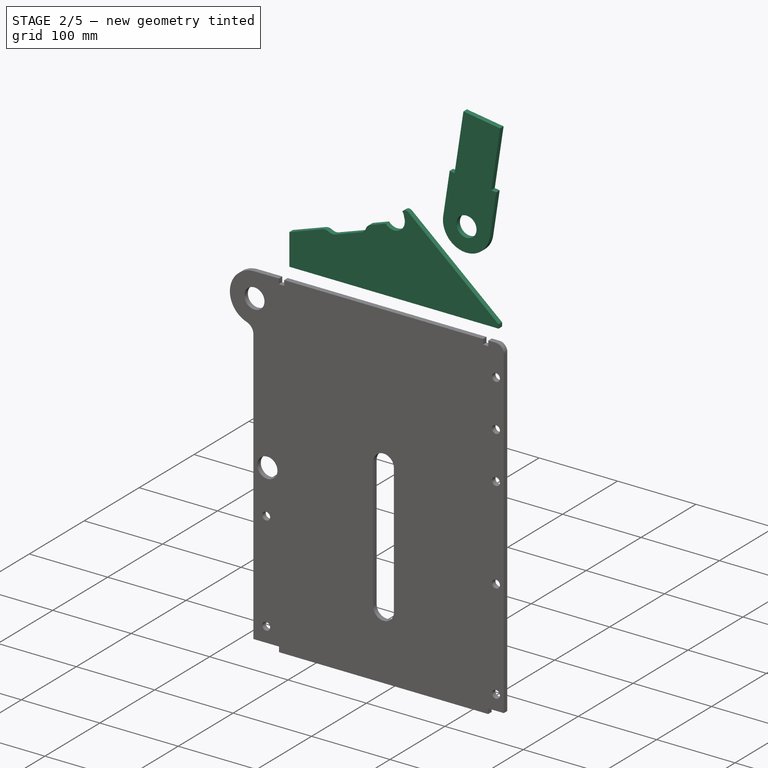
[diagram: stage 2 of 5 — iso view after this stage's code; geometry added in this stage tinted green]
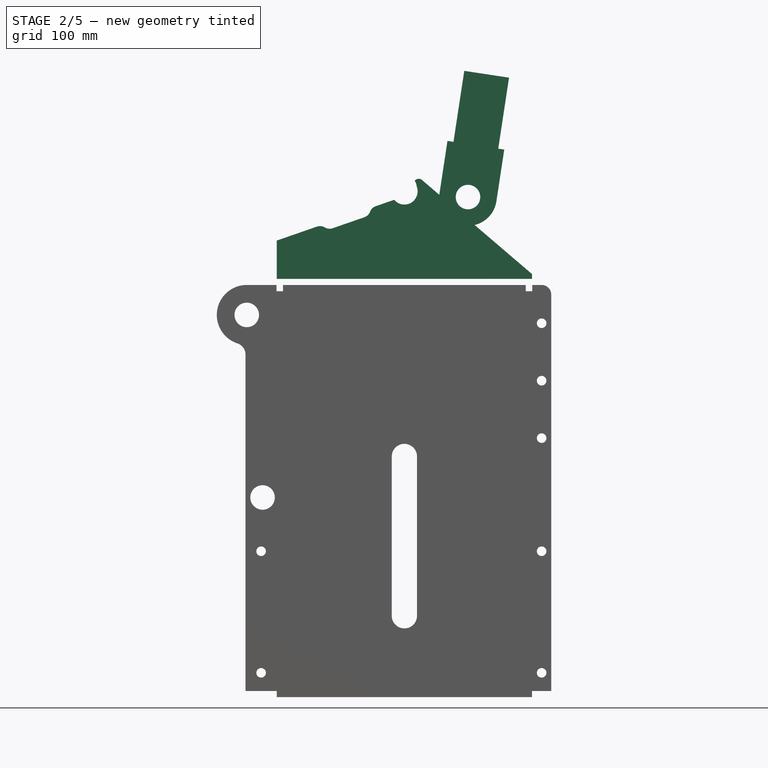
[diagram: stage 2 of 5 — front view after this stage's code; geometry added in this stage tinted green]
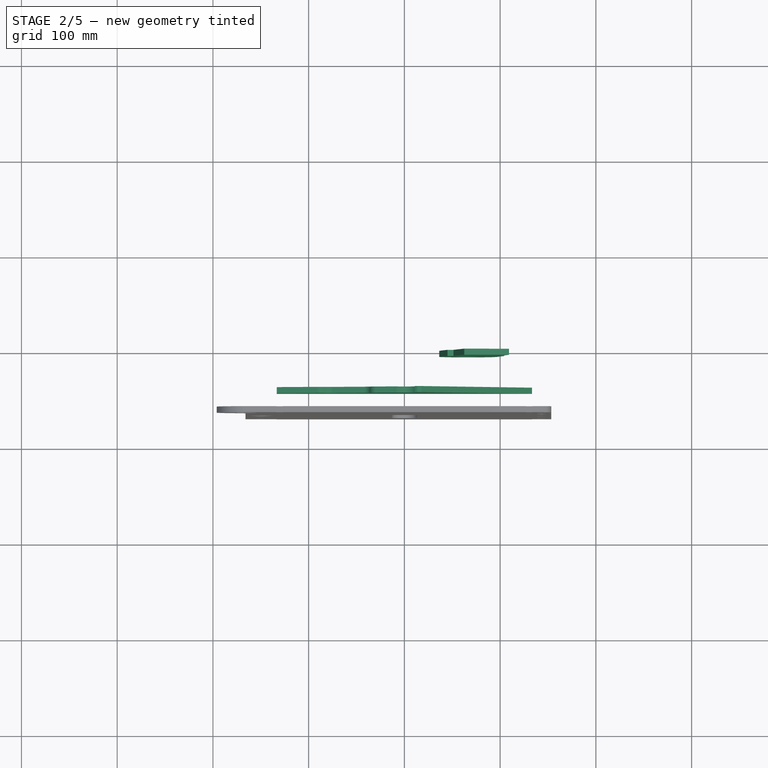
[diagram: stage 2 of 5 — top view after this stage's code; geometry added in this stage tinted green]
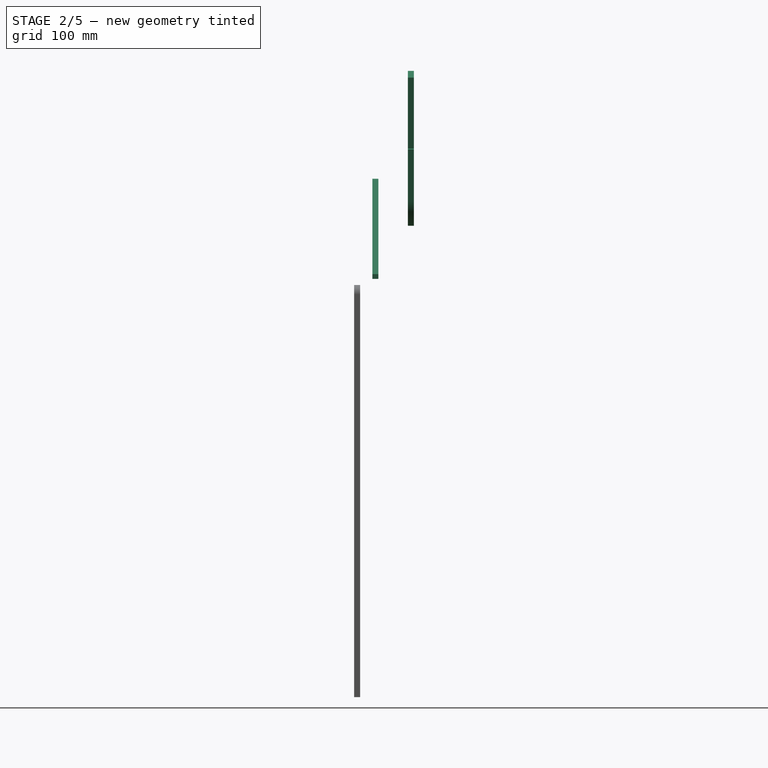
[diagram: stage 2 of 5 — right view after this stage's code; geometry added in this stage tinted green]
FEATURE [PartDesign::Body] Body004  label="lid_base"
  Group = -> [ShapeBinder005,ShapeBinder006,Sketch005,Pad004]
  Origin = -> Origin004
  Tip = -> Pad004
FEATURE [PartDesign::ShapeBinder] ShapeBinder007
  Support = -> [Pad004]
  TraceSupport = false
FEATURE [PartDesign::ShapeBinder] ShapeBinder008
  Placement = pos=(0,-6.35,1.4e-15) rot=(0,0,1;0rad)
  Support = -> [Pad002]
  TraceSupport = false
FEATURE [Sketcher::SketchObject] Sketch006
  AttachmentOffset = pos=(0,0,-19.05) rot=(0,0,1;0rad)
  ExternalGeometry = -> [ShapeBinder008,ShapeBinder007]
  FullyConstrained = false
  MapMode = 5
  Placement = pos=(0,-49.8,1.11e-14) rot=(1,0,0;1.5708rad)
  Support = -> [ShapeBinder007]
  expr: .AttachmentOffset.Base.z = -<<inputs>>.metal_thickness * 3
  expr: Constraints[37] = <<inputs>>.puller_bars_width
  expr: Constraints[6] = <<inputs>>.rod_hole_diameter + 2 mm
  sketch-geometry (20):
    g0: LineSegment StartX=133.35 StartY=169.55 StartZ=0 EndX=-133.35 EndY=169.55 EndZ=0
    g1: LineSegment StartX=133.35 StartY=169.55 StartZ=0 EndX=133.35 EndY=174.55 EndZ=0
    g2: ArcOfCircle CenterX=0 CenterY=260.969 CenterZ=0 NormalX=0 NormalY=0 NormalZ=1 AngleXU=0 Radius=13.8 StartAngle=3.83308 EndAngle=6.65394
    g3: LineSegment StartX=133.35 StartY=174.55 StartZ=0 EndX=22.1829 EndY=269.592 EndZ=0
    g4: LineSegment StartX=-133.35 StartY=169.55 StartZ=0 EndX=-133.35 EndY=209.55 EndZ=0
    g5: LineSegment StartX=-10.6301 StartY=252.169 StartZ=0 EndX=10.6301 EndY=252.169 EndZ=0
    g6: LineSegment StartX=-10.6301 StartY=252.169 StartZ=0 EndX=-10.6301 EndY=247.169 EndZ=0
    g7: LineSegment StartX=-10.6301 StartY=247.169 StartZ=0 EndX=0 EndY=247.169 EndZ=0
    g8: LineSegment StartX=-10.6301 StartY=252.169 StartZ=0 EndX=-133.35 EndY=209.55 EndZ=0
    g9: LineSegment StartX=0 StartY=260.969 StartZ=0 EndX=0 EndY=265.969 EndZ=0
    g10: LineSegment StartX=0 StartY=265.969 StartZ=0 EndX=12.8623 EndY=265.969 EndZ=0
    g11: Circle CenterX=0 CenterY=-182.35 CenterZ=0 NormalX=0 NormalY=0 NormalZ=1 AngleXU=0 Radius=381.319
    g12: LineSegment StartX=-133.35 StartY=169.55 StartZ=0 EndX=-135.122 EndY=174.226 EndZ=0
    g13: LineSegment StartX=12.8623 StartY=265.969 StartZ=0 EndX=22.1829 EndY=269.592 EndZ=0
    g14: Circle CenterX=0 CenterY=260.969 CenterZ=0 NormalX=0 NormalY=0 NormalZ=1 AngleXU=0 Radius=30
    g15: LineSegment StartX=0 StartY=198.969 StartZ=0 EndX=0 EndY=198.969 EndZ=0
    g16: Circle CenterX=0 CenterY=-182.35 CenterZ=0 NormalX=0 NormalY=0 NormalZ=1 AngleXU=0 Radius=434.649
    g17: LineSegment StartX=-133.35 StartY=209.55 StartZ=0 EndX=-140.013 EndY=229.13 EndZ=0
    g18: LineSegment StartX=0 StartY=230.969 StartZ=0 EndX=0 EndY=198.969 EndZ=0
    g19: GeomPoint X=0 Y=169.55 Z=0
  constraints (57):
    c: Coincident(g0,g-4)
    c: Coincident(g0,g-4)
    c: Coincident(g1,g0)
    c: PointOnObject(g2,g-2)
    c: Vertical(g1)
    c: Coincident(g3,g1)
    c: Diameter(g2) = 27.6
    c: Coincident(g4,g0)
    c: Vertical(g4)
    c: Coincident(g5,g2)
    c: PointOnObject(g5,g2)
    c: Horizontal(g5)
    c: Coincident(g6,g2)
    c: Vertical(g6)
    c: Coincident(g7,g6)
    c: PointOnObject(g7,g2)
    c: Horizontal(g7)
    c: Distance(g6) = 5
    c: Coincident(g8,g2)
    c: Coincident(g8,g4)
    c: Coincident(g9,g2)
    c: PointOnObject(g9,g-2)
    c: Coincident(g10,g9)
    c: Coincident(g10,g2)
    c: Horizontal(g10)
    c: Distance(g9) = 5
    c: Coincident(g11,g-3)
    c: Coincident(g12,g0)
    c: PointOnObject(g12,g11)
    c: Perpendicular(g11,g12)
    c: Distance(g12) = 5
    c: Coincident(g13,g2)
    c: Perpendicular(g2,g13)
    c: Distance(g13) = 10
    c: PointOnObject(g7,g-2)
    c: Coincident(g3,g13)
    c: Coincident(g14,g2)
    c: Diameter(g14) = 60
    c: Vertical(g15)
    c: Coincident(g16,g11)
    c: PointOnObject(g2,g16)
    c: Coincident(g17,g4)
    c: PointOnObject(g17,g16)
    c: Distance(g17) = 20.6828
    c: Distance(g4) = 40
    c: Perpendicular(g16,g17)
    c: PointOnObject(g18,g14)
    c: PointOnObject(g18,g11)
    c: Coincident(g18,g15)
    c: Vertical(g18)
    c: PointOnObject(g18,g-2)
    c: Distance(g18) = 32
    c: Distance(g1) = 5
    c: PointOnObject(g19,g-2)
    c: PointOnObject(g19,g0)
    c: DistanceY(g19,g7) = 77.6188
    c: DistanceY(g19,g7) = 77.6188
FEATURE [PartDesign::Pad] Pad005
  Direction = (0,-1,2e-16)
  Length = 6.35
  Length2 = 10
  Profile = -> Sketch006
  ReferenceAxis = -> Sketch006 [N_Axis]
  Refine = true
  Reversed = true
  Type = 0
  expr: Length = <<inputs>>.metal_thickness
FEATURE [PartDesign::ShapeBinder] ShapeBinder009
  Support = -> [Pad005]
  TraceSupport = false
FEATURE [PartDesign::ShapeBinder] ShapeBinder010
  Placement = pos=(0,-6.35,1.4e-15) rot=(0,0,1;0rad)
  Support = -> [Pad002]
  TraceSupport = false
FEATURE [Sketcher::SketchObject] Sketch007
  ExternalGeometry = -> [ShapeBinder009,ShapeBinder010]
  FullyConstrained = true
  MapMode = 5
  Placement = pos=(0,0,0) rot=(1,0,0;1.5708rad)
  Support = -> [XZ_Plane006]
  expr: Constraints[10] = <<inputs>>.compression_length
  expr: Constraints[13] = <<inputs>>.puller_bars_width
  expr: Constraints[1] = <<inputs>>.rod_hole_diameter
  expr: Constraints[29] = <<inputs>>.puller_bars_width
  sketch-geometry (17):
    g0: Circle CenterX=0 CenterY=265.099 CenterZ=0 NormalX=0 NormalY=0 NormalZ=1 AngleXU=0 Radius=12.8
    g1: Circle CenterX=0 CenterY=-182.35 CenterZ=0 NormalX=0 NormalY=0 NormalZ=1 AngleXU=0 Radius=434.649
    g2: LineSegment StartX=0 StartY=-182.35 StartZ=0 EndX=70.9434 EndY=284.666 EndZ=0
    g3: Circle CenterX=66.4378 CenterY=255.006 CenterZ=0 NormalX=0 NormalY=0 NormalZ=1 AngleXU=0 Radius=12.8
    g4: LineSegment StartX=0 StartY=265.099 StartZ=0 EndX=66.4378 EndY=255.006 EndZ=0
    g5: Circle CenterX=66.4378 CenterY=255.006 CenterZ=0 NormalX=0 NormalY=0 NormalZ=1 AngleXU=0 Radius=30
    g6: ArcOfCircle CenterX=0 CenterY=265.099 CenterZ=0 NormalX=0 NormalY=0 NormalZ=1 AngleXU=0 Radius=30 StartAngle=2.99084 EndAngle=4.56163
    g7: ArcOfCircle CenterX=66.4378 CenterY=255.006 CenterZ=0 NormalX=0 NormalY=0 NormalZ=1 AngleXU=0 Radius=30 StartAngle=4.56163 EndAngle=7.70323
    g8: LineSegment StartX=-4.50554 StartY=235.439 StartZ=0 EndX=61.9323 EndY=225.347 EndZ=0
    g9: LineSegment StartX=70.9434 StartY=284.666 StartZ=0 EndX=63.825 EndY=285.747 EndZ=0
    g10: ArcOfCircle CenterX=68.3306 CenterY=315.407 CenterZ=0 NormalX=0 NormalY=0 NormalZ=1 AngleXU=0 Radius=30 StartAngle=2.99084 EndAngle=4.56163
    g11: LineSegment StartX=38.6708 StartY=319.913 StartZ=0 EndX=46.8431 EndY=373.711 EndZ=0
    g12: LineSegment StartX=-29.6597 StartY=269.604 StartZ=0 EndX=-12.4763 EndY=382.722 EndZ=0
    g13: LineSegment StartX=-12.4763 StartY=382.722 StartZ=0 EndX=46.8431 EndY=373.711 EndZ=0
    g14: LineSegment StartX=-29.6597 StartY=269.604 StartZ=0 EndX=96.0976 EndY=250.501 EndZ=0
    g15: LineSegment StartX=-1.30688 StartY=252.366 StartZ=0 EndX=17.7966 EndY=378.123 EndZ=0
    g16: Circle CenterX=0 CenterY=-182.35 CenterZ=0 NormalX=0 NormalY=0 NormalZ=1 AngleXU=0 Radius=412.374
  constraints (44):
    c: PointOnObject(g0,g-2)
    c: Diameter(g0) = 25.6
    c: Coincident(g1,g-4)
    c: PointOnObject(g-3,g1)
    c: Tangent(g0,g1)
    c: Coincident(g2,g1)
    c: PointOnObject(g3,g2)
    c: Equal(g3,g0)
    c: Coincident(g4,g0)
    c: Coincident(g4,g3)
    c: Distance(g4) = 67.2
    c: Perpendicular(g2,g4)
    c: Coincident(g5,g3)
    c: Diameter(g5) = 60
    c: Coincident(g6,g0)
    c: Coincident(g7,g3)
    c: PointOnObject(g7,g5)
    c: Coincident(g13,g12)
    c: Coincident(g13,g11)
    c: Perpendicular(g11,g13)
    c: Tangent(g12,g6) = 1.5708
    c: Tangent(g8,g6) = -1.5708
    c: Tangent(g8,g7) = -1.5708
    c: Tangent(g9,g7) = -1.5708
    c: Tangent(g10,g9) = 1.5708
    c: Tangent(g11,g10) = 1.5708
    c: Parallel(g11,g12)
    c: Parallel(g8,g9)
    c: Equal(g6,g5)
    c: Distance(g13) = 60
    c: Perpendicular(g12,g8)
    c: Equal(g10,g6)
    c: Coincident(g14,g6)
    c: PointOnObject(g14,g7)
    c: PointOnObject(g3,g14)
    c: PointOnObject(g15,g0)
    c: PointOnObject(g15,g13)
    c: PointOnObject(g-3,g15)
    c: Parallel(g15,g12)
    c: Equal(g15,g14)
    c: PointOnObject(g2,g7)
    c: Distance(g2) = 472.374
    c: Coincident(g16,g1)
    c: PointOnObject(g7,g16)
FEATURE [PartDesign::Pad] Pad006
  Direction = (0,-1,-2e-16)
  Length = 6.35
  Length2 = 10
  Placement = pos=(0,0,0) rot=(1,0,0;1.5708rad)
  Profile = -> Sketch007
  ReferenceAxis = -> Sketch007 [N_Axis]
  Refine = true
  Type = 0
  expr: Length = <<inputs>>.metal_thickness
FEATURE [PartDesign::Body] Body007  label="arm_connection_x4"
  Group = -> [ShapeBinder011,Sketch008,Pad007]
  Origin = -> Origin007
  Tip = -> Pad007
FEATURE [PartDesign::ShapeBinder] ShapeBinder012
  Placement = pos=(0,-6.35,1.4e-15) rot=(0,0,1;0rad)
  Support = -> [Pad002]
  TraceSupport = false
FEATURE [PartDesign::ShapeBinder] ShapeBinder013
  Placement = pos=(0,-6.35,-1.4e-15) rot=(0,0,1;0rad)
  Support = -> [Pad006]
  TraceSupport = false
FEATURE [Sketcher::SketchObject] Sketch009
  ExternalGeometry = -> [ShapeBinder013,ShapeBinder012]
  FullyConstrained = false
  MapMode = 5
  Placement = pos=(0,-68.85,1.49e-14) rot=(1,0,0;1.5708rad)
  Support = -> [ShapeBinder012]
  sketch-geometry (12):
    g0: LineSegment StartX=-12.4763 StartY=382.722 StartZ=0 EndX=113.281 EndY=363.618 EndZ=0
    g1: LineSegment StartX=113.281 StartY=363.618 StartZ=0 EndX=91.592 EndY=220.841 EndZ=0
    g2: LineSegment StartX=91.592 StartY=220.841 StartZ=0 EndX=-34.1653 EndY=239.945 EndZ=0
    g3: LineSegment StartX=-34.1653 StartY=239.945 StartZ=0 EndX=-12.4763 EndY=382.722 EndZ=0
    g4: LineSegment StartX=-216.884 StartY=-177.481 StartZ=0 EndX=-94.3023 EndY=-211.444 EndZ=0
    g5: LineSegment StartX=-216.884 StartY=-177.481 StartZ=0 EndX=-178.324 EndY=-38.3088 EndZ=0
    g6: Circle CenterX=-115.203 CenterY=-174.523 CenterZ=0 NormalX=0 NormalY=0 NormalZ=1 AngleXU=0 Radius=30
    g7: LineSegment StartX=-94.3023 StartY=-211.444 StartZ=0 EndX=-86.292 EndY=-182.534 EndZ=0
    g8: Circle CenterX=-179.963 CenterY=-156.58 CenterZ=0 NormalX=0 NormalY=0 NormalZ=1 AngleXU=0 Radius=30
    g9: LineSegment StartX=-13.2 StartY=0 StartZ=0 EndX=-13.2 EndY=-267.35 EndZ=0
    g10: LineSegment StartX=-85.2028 StartY=-174.523 StartZ=0 EndX=-13.2 EndY=-174.523 EndZ=0
    g11: LineSegment StartX=-209.963 StartY=-156.58 StartZ=0 EndX=-133.35 EndY=-156.58 EndZ=0
  constraints (38):
    c: Coincident(g0,g-7)
    c: Coincident(g1,g0)
    c: Coincident(g2,g1)
    c: Coincident(g3,g2)
    c: Coincident(g3,g0)
    c: Perpendicular(g3,g2)
    c: PointOnObject(g-3,g3)
    c: Perpendicular(g1,g0)
    c: Tangent(g-4,g1)
    c: Perpendicular(g1,g2)
    c: PointOnObject(g-6,g2)
    c: Coincident(g5,g4)
    c: Perpendicular(g4,g5)
    c: Equal(g4,g2)
    c: Equal(g5,g3)
    c: Coincident(g7,g4)
    c: PointOnObject(g7,g6)
    c: Tangent(g7,g6)
    c: Tangent(g6,g4)
    c: Equal(g6,g-4)
    c: Perpendicular(g4,g7)
    c: Tangent(g8,g4)
    c: Tangent(g8,g5)
    c: Equal(g8,g6)
    c: PointOnObject(g9,g-1)
    c: PointOnObject(g9,g-9)
    c: Vertical(g9)
    c: PointOnObject(g-8,g9)
    c: PointOnObject(g10,g6)
    c: PointOnObject(g10,g9)
    c: Perpendicular(g9,g10)
    c: Perpendicular(g6,g10)
    c: Distance(g10) = 72.0028
    c: PointOnObject(g11,g8)
    c: PointOnObject(g11,g-10)
    c: Perpendicular(g-10,g11)
    c: Perpendicular(g8,g11)
    c: Distance(g11) = 76.613
FEATURE [PartDesign::Body] Body008  label="boot_reference_sketch"
  Group = -> [ShapeBinder012,ShapeBinder013,Sketch009]
  Origin = -> Origin008
FEATURE [PartDesign::ShapeBinder] ShapeBinder014
  Placement = pos=(0,-6.35,-1.4e-15) rot=(0,0,1;0rad)
  Support = -> [Pad006]
  TraceSupport = false
FEATURE [Sketcher::SketchObject] Sketch010
  ExternalGeometry = -> [ShapeBinder014]
  FullyConstrained = true
  MapMode = 5
  Placement = pos=(0,-6.35,-1.4e-15) rot=(1,0,0;1.5708rad)
  Support = -> [ShapeBinder014]
  expr: Constraints[16] = <<inputs>>.puller_cross_bar_width
  expr: Constraints[26] = <<inputs>>.metal_thickness
  sketch-geometry (16):
    g0: Circle CenterX=66.4378 CenterY=255.006 CenterZ=0 NormalX=0 NormalY=0 NormalZ=1 AngleXU=0 Radius=12.8
    g1: ArcOfCircle CenterX=66.4378 CenterY=255.006 CenterZ=0 NormalX=0 NormalY=0 NormalZ=1 AngleXU=0 Radius=30 StartAngle=2.99084 EndAngle=6.13243
    g2: LineSegment StartX=36.7781 StartY=259.512 StartZ=0 EndX=44.2491 EndY=308.693 EndZ=0
    g3: LineSegment StartX=96.0976 StartY=250.501 StartZ=0 EndX=103.569 EndY=299.682 EndZ=0
    g4: LineSegment StartX=44.2491 StartY=308.693 StartZ=0 EndX=39.4328 EndY=307.35 EndZ=0
    g5: LineSegment StartX=44.2491 StartY=308.693 StartZ=0 EndX=50.527 EndY=307.739 EndZ=0
    g6: LineSegment StartX=97.2906 StartY=300.636 StartZ=0 EndX=109.305 EndY=379.728 EndZ=0
    g7: LineSegment StartX=109.305 StartY=379.728 StartZ=0 EndX=62.5418 EndY=386.832 EndZ=0
    g8: LineSegment StartX=62.5418 StartY=386.832 StartZ=0 EndX=50.527 EndY=307.739 EndZ=0
    g9: LineSegment StartX=97.2906 StartY=300.636 StartZ=0 EndX=103.569 EndY=299.682 EndZ=0
    g10: LineSegment StartX=44.2491 StartY=308.693 StartZ=0 EndX=45 EndY=313.636 EndZ=0
    g11: LineSegment StartX=45 StartY=313.636 StartZ=0 EndX=51.278 EndY=312.683 EndZ=0
    g12: LineSegment StartX=51.278 StartY=312.683 StartZ=0 EndX=62.5418 EndY=386.832 EndZ=0
    g13: LineSegment StartX=109.305 StartY=379.728 StartZ=0 EndX=98.0415 EndY=305.579 EndZ=0
    g14: LineSegment StartX=98.0415 StartY=305.579 StartZ=0 EndX=104.319 EndY=304.625 EndZ=0
    g15: LineSegment StartX=104.319 StartY=304.625 StartZ=0 EndX=103.569 EndY=299.682 EndZ=0
  constraints (44):
    c: Coincident(g0,g-4)
    c: Equal(g0,g-3)
    c: PointOnObject(g1,g-4)
    c: Coincident(g1,g0)
    c: Tangent(g2,g1) = 1.5708
    c: Tangent(g3,g1) = -1.5708
    c: Parallel(g2,g-5)
    c: Parallel(g-5,g3)
    c: Coincident(g4,g2)
    c: PointOnObject(g4,g-6)
    c: Perpendicular(g-6,g4)
    c: Distance(g4) = 5
    c: Coincident(g5,g2)
    c: Coincident(g7,g6)
    c: Coincident(g8,g7)
    c: Coincident(g8,g5)
    c: Distance(g8) = 80
    c: Perpendicular(g2,g5)
    c: Coincident(g9,g6)
    c: Coincident(g9,g3)
    c: Perpendicular(g3,g9)
    c: Perpendicular(g9,g6)
    c: Perpendicular(g8,g7)
    c: Parallel(g6,g8)
    c: Equal(g9,g5)
    c: Equal(g6,g8)
    c: Distance(g9) = 6.35
    c: Coincident(g10,g2)
    c: Coincident(g11,g10)
    c: PointOnObject(g11,g8)
    c: Coincident(g12,g11)
    c: Coincident(g12,g7)
    c: Coincident(g13,g7)
    c: PointOnObject(g13,g6)
    c: Coincident(g14,g13)
    c: Coincident(g15,g14)
    c: Coincident(g15,g3)
    c: Perpendicular(g14,g15)
    c: Perpendicular(g12,g11)
    c: Equal(g10,g15)
    c: Perpendicular(g13,g14)
    c: Distance(g10) = 5
    c: Perpendicular(g11,g10)
    c: Distance(g0,g7) = 129.745  'puller_connector_height'
FEATURE [PartDesign::Pad] Pad008
  Direction = (0,-1,-2e-16)
  Length = 6.35
  Length2 = 10
  Placement = pos=(0,-6.35,-1.4e-15) rot=(0,0,1;0rad)
  Profile = -> Sketch010
  ReferenceAxis = -> Sketch010 [N_Axis]
  Refine = true
  Type = 0
  expr: Length = <<inputs>>.metal_thickness
FEATURE [PartDesign::Body] Body003  label="width_side_x2"
  Group = -> [ShapeBinder003,ShapeBinder004,Sketch004,Pad003,Sketch040,Pad015]
  Origin = -> Origin003
  Tip = -> Pad015
FEATURE [Sketcher::SketchObject] Sketch044  label="reference_sketch __check_latch_clearance"
  ExternalGeometry = -> [Pocket,Pad004,Extrude001,Extrude,Extrude005,Pad013]
  FullyConstrained = false
  MapMode = 5
  Placement = pos=(1e-16,-68.85,1.5e-14) rot=(1,0,0;1.5708rad)
  Support = -> [Pocket]
  sketch-geometry (6):
    g0: Circle CenterX=0 CenterY=265.099 CenterZ=0 NormalX=0 NormalY=0 NormalZ=1 AngleXU=0 Radius=145.799
    g1: LineSegment StartX=-46.2597 StartY=403.364 StartZ=0 EndX=-10.1735 EndY=397.881 EndZ=0
    g2: LineSegment StartX=0 StartY=265.099 StartZ=0 EndX=-230.852 EndY=265.099 EndZ=0
    g3: LineSegment StartX=-133.35 StartY=169.55 StartZ=0 EndX=-133.35 EndY=265.099 EndZ=0
    g4: LineSegment StartX=-133.35 StartY=169.55 StartZ=0 EndX=-133.35 EndY=206.05 EndZ=0
    g5: LineSegment StartX=-133.35 StartY=206.05 StartZ=0 EndX=0 EndY=265.099 EndZ=0
  constraints (12):
    c: Distance(g1) = 36.5004
    c: Coincident(g2,g0)
    c: Horizontal(g2)
    c: PointOnObject(g3,g2)
    c: Vertical(g3)
    c: Distance(g3) = 95.5488
    c: Coincident(g4,g3)
    c: Coincident(g5,g4)
    c: Coincident(g5,g0)
    c: Angle(g2,g5) = 0.416857
    c: Equal(g4,g1)
    c: Vertical(g4)
FEATURE [PartDesign::SubShapeBinder] Binder  label="dxf_export_lid_opening_catch_v2_x2"
  BindCopyOnChange = 0
  BindMode = 0
  ClaimChildren = false
  Fuse = false
  MakeFace = true
  OffsetFill = false
  OffsetIntersection = false
  OffsetJoinType = 0
  OffsetOpenResult = false
  PartialLoad = false
  Placement = pos=(0,0,0) rot=(1,0,0;1.5708rad)
  Refine = true
  Relative = true
  Support = -> [Body012[BaseFeature.Face14]]
  _Version = 2
FEATURE [Sketcher::SketchObject] Sketch046  label="length_side_hinge_section_for_testing"
  ExternalGeometry = -> [Pocket]
  FullyConstrained = true
  MapMode = 5
  Placement = pos=(1e-16,-68.85,1.5e-14) rot=(1,0,0;1.5708rad)
  Support = -> [Pocket]
  sketch-geometry (11):
    g0: LineSegment StartX=-76.8 StartY=163.2 StartZ=0 EndX=-76.8 EndY=40.3308 EndZ=0
    g1: LineSegment StartX=-76.8 StartY=40.3308 StartZ=0 EndX=-165.95 EndY=40.3308 EndZ=0
    g2: LineSegment StartX=-165.95 StartY=40.3308 StartZ=0 EndX=-165.95 EndY=90.3308 EndZ=0
    g3: LineSegment StartX=-76.8 StartY=163.2 StartZ=0 EndX=-126.8 EndY=163.2 EndZ=0
    g4: LineSegment StartX=-126.8 StartY=163.2 StartZ=0 EndX=-126.8 EndY=156.65 EndZ=0
    g5: LineSegment StartX=-126.8 StartY=156.65 StartZ=0 EndX=-133.55 EndY=156.65 EndZ=0
    g6: LineSegment StartX=-133.55 StartY=156.65 StartZ=0 EndX=-133.55 EndY=163.2 EndZ=0
    g7: LineSegment StartX=-133.55 StartY=163.2 StartZ=0 EndX=-164.65 EndY=163.2 EndZ=0
    g8: ArcOfCircle CenterX=-164.65 CenterY=131.9 CenterZ=0 NormalX=0 NormalY=0 NormalZ=1 AngleXU=0 Radius=31.3 StartAngle=1.5708 EndAngle=4.39186
    g9: ArcOfCircle CenterX=-178.45 CenterY=90.3308 CenterZ=0 NormalX=0 NormalY=0 NormalZ=1 AngleXU=0 Radius=12.5 StartAngle=0 EndAngle=1.25027
    g10: Circle CenterX=-164.65 CenterY=131.9 CenterZ=0 NormalX=0 NormalY=0 NormalZ=1 AngleXU=0 Radius=12.8
  constraints (27):
    c: PointOnObject(g0,g-9)
    c: Vertical(g0)
    c: Coincident(g1,g0)
    c: PointOnObject(g1,g-10)
    c: Coincident(g2,g1)
    c: Coincident(g2,g-10)
    c: Coincident(g3,g0)
    c: Coincident(g3,g-9)
    c: Coincident(g4,g3)
    c: Coincident(g4,g-8)
    c: Coincident(g5,g4)
    c: Coincident(g5,g-7)
    c: Coincident(g6,g5)
    c: Coincident(g6,g-7)
    c: Coincident(g7,g6)
    c: Coincident(g7,g-6)
    c: Distance(g3) = 50
    c: Horizontal(g1)
    c: Equal(g2,g3)
    c: Coincident(g8,g-5)
    c: Coincident(g8,g7)
    c: Coincident(g9,g8)
    c: Coincident(g9,g2)
    c: Coincident(g10,g-4)
    c: Equal(g-3,g10)
    c: Equal(g-4,g8)
    c: Equal(g9,g-5)
FEATURE [PartDesign::SubShapeBinder] Binder002  label="dxf_export_length_side_hinge_section_for_testing"
  BindCopyOnChange = 0
  BindMode = 0
  ClaimChildren = false
  Fuse = false
  MakeFace = true
  OffsetFill = false
  OffsetIntersection = false
  OffsetJoinType = 0
  OffsetOpenResult = false
  PartialLoad = false
  Placement = pos=(0,0,0) rot=(1,0,0;1.5708rad)
  Refine = true
  Relative = true
  Support = -> [Sketch046]
  _Version = 2
FEATURE [PartDesign::Pad] Pad011  label="UNUSED_pad_extend_edge_for_hinge"
  BaseFeature = -> Pad005
  Direction = (0,-1,2e-16)
  Length = 6.35
  Length2 = 10
  Profile = -> Sketch014
  ReferenceAxis = -> Sketch014 [N_Axis]
  Refine = true
  Reversed = true
  Type = 0
  expr: Length = <<inputs>>.metal_thickness
FEATURE [Sketcher::SketchObject] Sketch015
  FullyConstrained = true
  MapMode = 5
  Placement = pos=(-4e-16,-49.8,1.17e-14) rot=(1,0,0;1.5708rad)
  Support = -> [Pad011]
  sketch-geometry (4):
    g0: LineSegment StartX=40.6965 StartY=206.448 StartZ=0 EndX=50.6721 EndY=206.448 EndZ=0
    g1: LineSegment StartX=50.6721 StartY=206.448 StartZ=0 EndX=50.6721 EndY=196.857 EndZ=0
    g2: LineSegment StartX=50.6721 StartY=196.857 StartZ=0 EndX=40.6965 EndY=196.857 EndZ=0
    g3: LineSegment StartX=40.6965 StartY=196.857 StartZ=0 EndX=40.6965 EndY=206.448 EndZ=0
  constraints (10):
    c: Coincident(g0,g1)
    c: Coincident(g1,g2)
    c: Coincident(g2,g3)
    c: Coincident(g3,g0)
    c: Horizontal(g0)
    c: Horizontal(g2)
    c: Vertical(g1)
    c: Vertical(g3)
    c: Block(g0)
    c: Block(g1)
FEATURE [PartDesign::Pad] Pad012  label="UNUSED_pad_bar_contact_surface"
  BaseFeature = -> Pad011
  Direction = (0,-1,2e-16)
  Length = 6.35
  Length2 = 10
  Profile = -> Sketch015
  ReferenceAxis = -> Sketch015 [N_Axis]
  Refine = true
  Reversed = true
  Type = 0
  expr: Length = <<inputs>>.metal_thickness
FEATURE [PartDesign::Body] Body012  label="Body"
  BaseFeature = -> Extrude011
  Group = -> [BaseFeature]
  Origin = -> Origin012
  Tip = -> BaseFeature
FEATURE [Sketcher::SketchObject] Sketch047  label="check_lid_opening_collisions"
  ExternalGeometry = -> [Extrude005,Pocket,Pad010,Extrude011,Sketch006,Pad013,Pad008]
  FullyConstrained = false
  MapMode = 5
  Placement = pos=(-4e-16,-49.8,1.17e-14) rot=(1,0,0;1.5708rad)
  Support = -> [Pad012]
  sketch-geometry (35):
    g0: LineSegment StartX=-164.65 StartY=131.9 StartZ=0 EndX=-183.578 EndY=258.861 EndZ=0
    g1: ArcOfCircle CenterX=-193.469 CenterY=257.386 CenterZ=0 NormalX=0 NormalY=0 NormalZ=1 AngleXU=0 Radius=10 StartAngle=0.147998 EndAngle=3.28959
    g2: LineSegment StartX=-180.969 StartY=259.222 StartZ=0 EndX=-164.65 EndY=131.9 EndZ=0
    g3: LineSegment StartX=-203.36 StartY=255.911 StartZ=0 EndX=-183.578 EndY=258.861 EndZ=0
    g4: LineSegment StartX=133.35 StartY=169.55 StartZ=0 EndX=-169.476 EndY=169.55 EndZ=0
    g5: LineSegment StartX=-164.65 StartY=131.9 StartZ=0 EndX=-170.247 EndY=169.443 EndZ=0
    g6: LineSegment StartX=-169.476 StartY=169.55 StartZ=0 EndX=-164.65 EndY=131.9 EndZ=0
    g7: LineSegment StartX=-170.247 StartY=169.443 StartZ=0 EndX=132.514 EndY=175.677 EndZ=0
    g8: Circle CenterX=0 CenterY=-182.35 CenterZ=0 NormalX=0 NormalY=0 NormalZ=1 AngleXU=0 Radius=447.449
    g9: Circle CenterX=-166.761 CenterY=232.862 CenterZ=0 NormalX=0 NormalY=0 NormalZ=1 AngleXU=0 Radius=12.8
    g10: LineSegment StartX=-166.761 StartY=232.862 StartZ=0 EndX=0 EndY=-182.35 EndZ=0
    g11: Circle CenterX=-101.399 CenterY=248.472 CenterZ=0 NormalX=0 NormalY=0 NormalZ=1 AngleXU=0 Radius=12.8
    g12: LineSegment StartX=1e-16 StartY=265.099 StartZ=0 EndX=66.4378 EndY=255.006 EndZ=0
    g13: LineSegment StartX=-166.761 StartY=232.862 StartZ=0 EndX=-101.399 EndY=248.472 EndZ=0
    g14: Circle CenterX=-101.399 CenterY=248.472 CenterZ=0 NormalX=0 NormalY=0 NormalZ=1 AngleXU=0 Radius=30
    g15: LineSegment StartX=-101.399 StartY=248.472 StartZ=0 EndX=-72.2195 EndY=255.441 EndZ=0
    g16: LineSegment StartX=-72.2195 StartY=255.441 StartZ=0 EndX=-84.9361 EndY=308.688 EndZ=0
    g17: LineSegment StartX=109.305 StartY=379.728 StartZ=0 EndX=115.583 EndY=378.775 EndZ=0
    g18: LineSegment StartX=115.583 StartY=378.775 StartZ=0 EndX=104.319 EndY=304.625 EndZ=0
    g19: LineSegment StartX=-84.9361 StartY=308.688 StartZ=0 EndX=-102.358 EndY=381.637 EndZ=0
    g20: LineSegment StartX=1e-16 StartY=265.099 StartZ=0 EndX=0 EndY=-182.35 EndZ=0
    g21: LineSegment StartX=-100.781 StartY=218.478 StartZ=0 EndX=-99.8014 EndY=170.894 EndZ=0
    g22: LineSegment StartX=22.1829 StartY=269.592 StartZ=0 EndX=-172.657 EndY=194.376 EndZ=0
    g23: LineSegment StartX=-172.657 StartY=194.376 StartZ=0 EndX=-164.65 EndY=131.9 EndZ=0
    g24: LineSegment StartX=-164.65 StartY=131.9 StartZ=0 EndX=-173.938 EndY=194.198 EndZ=0
    g25: LineSegment StartX=-173.938 StartY=194.198 StartZ=0 EndX=19.3122 EndY=273.411 EndZ=0
    g26: LineSegment StartX=132.514 StartY=175.677 StartZ=0 EndX=132.411 EndY=180.676 EndZ=0
    g27: LineSegment StartX=22.1829 StartY=269.592 StartZ=0 EndX=133.35 EndY=174.55 EndZ=0
    g28: LineSegment StartX=19.3122 StartY=273.411 StartZ=0 EndX=132.411 EndY=180.676 EndZ=0
    g29: GeomPoint X=-89.5818 Y=328.141 Z=0
    g30: LineSegment StartX=-41.9613 StartY=248.295 StartZ=0 EndX=-39.3064 EndY=241.818 EndZ=0
    g31: LineSegment StartX=-39.3064 StartY=241.818 StartZ=0 EndX=-85.5706 EndY=222.855 EndZ=0
    g32: LineSegment StartX=-85.5706 StartY=222.855 StartZ=0 EndX=-88.2255 EndY=229.332 EndZ=0
    g33: LineSegment StartX=-85.5706 StartY=222.855 StartZ=0 EndX=-172.875 EndY=187.069 EndZ=0
    g34: LineSegment StartX=-39.3064 StartY=241.818 StartZ=0 EndX=25.4636 EndY=268.367 EndZ=0
  constraints (77):
    c: Coincident(g2,g0)
    c: Equal(g2,g0)
    c: Coincident(g3,g1)
    c: Coincident(g3,g0)
    c: PointOnObject(g1,g3)
    c: PointOnObject(g4,g2)
    c: Horizontal(g4)
    c: Angle(g4,g2) = 1.69827
    c: Coincident(g5,g0)
    c: Coincident(g6,g4)
    c: Equal(g5,g6)
    c: PointOnObject(g7,g0)
    c: Angle(g7,g0) = 1.69821
    c: Coincident(g7,g5)
    c: Coincident(g6,g0)
    c: Equal(g7,g4)
    c: Tangent(g1,g0) = -1.5708
    c: PointOnObject(g9,g8)
    c: Tangent(g0,g9)
    c: Coincident(g10,g9)
    c: Coincident(g10,g8)
    c: Equal(g11,g9)
    c: Coincident(g13,g9)
    c: Coincident(g13,g11)
    c: Coincident(g14,g11)
    c: Coincident(g15,g11)
    c: PointOnObject(g15,g14)
    c: Parallel(g15,g13)
    c: Coincident(g16,g15)
    c: Tangent(g16,g14)
    c: Coincident(g18,g17)
    c: Perpendicular(g18,g17)
    c: Coincident(g19,g16)
    c: Parallel(g19,g16)
    c: Equal(g19,g18)
    c: Equal(g13,g12)
    c: Coincident(g20,g12)
    c: Coincident(g20,g8)
    c: Angle(g20,g12) = 1.42004
    c: Angle(g10,g13) = 1.42332
    c: PointOnObject(g21,g14)
    c: PointOnObject(g21,g7)
    c: Perpendicular(g7,g21)
    c: Perpendicular(g14,g21)
    c: Distance(g21) = 47.5948
    c: PointOnObject(g22,g2)
    c: Coincident(g23,g22)
    c: Coincident(g24,g0)
    c: Equal(g23,g24)
    c: Coincident(g23,g0)
    c: Coincident(g25,g24)
    c: PointOnObject(g25,g0)
    c: Equal(g22,g25)
    c: Coincident(g26,g7)
    c: Perpendicular(g26,g7)
    c: Coincident(g27,g22)
    c: Coincident(g28,g25)
    c: Coincident(g28,g26)
    c: Equal(g28,g27)
    c: PointOnObject(g29,g19)
    c: Distance(g29,g19) = 20
    c: PointOnObject(g30,g25)
    c: Coincident(g31,g30)
    c: Coincident(g32,g31)
    c: PointOnObject(g32,g25)
    c: Parallel(g31,g25)
    c: Equal(g30,g32)
    c: Perpendicular(g25,g32)
    c: Distance(g30) = 7
    c: Coincident(g33,g31)
    c: PointOnObject(g33,g0)
    c: Distance(g31) = 50
    c: Coincident(g34,g30)
    c: PointOnObject(g34,g28)
    c: Parallel(g34,g25)
    c: Parallel(g34,g33)
    c: Distance(g34) = 70
FEATURE [Sketcher::SketchObject] Sketch048  label="check_lid_closing_1"
  ExternalGeometry = -> [Extrude005,Pocket,Pad010,Extrude011,Sketch006,Pad013,Pad008,Pad015]
  FullyConstrained = false
  MapMode = 5
  Placement = pos=(-4e-16,-49.8,1.17e-14) rot=(1,0,0;1.5708rad)
  Support = -> [Pad012]
  sketch-geometry (30):
    g0: LineSegment StartX=-164.65 StartY=131.9 StartZ=0 EndX=-291.637 EndY=113.146 EndZ=0
    g1: ArcOfCircle CenterX=-290.176 CenterY=103.254 CenterZ=0 NormalX=0 NormalY=0 NormalZ=1 AngleXU=0 Radius=10 StartAngle=1.71742 EndAngle=4.85901
    g2: LineSegment StartX=-180.969 StartY=259.222 StartZ=0 EndX=-164.65 EndY=131.9 EndZ=0
    g3: LineSegment StartX=-288.715 StartY=93.361 StartZ=0 EndX=-291.637 EndY=113.146 EndZ=0
    g4: LineSegment StartX=133.35 StartY=169.55 StartZ=0 EndX=-169.476 EndY=169.55 EndZ=0
    g5: LineSegment StartX=-164.65 StartY=131.9 StartZ=0 EndX=-202.201 EndY=126.354 EndZ=0
    g6: LineSegment StartX=-169.476 StartY=169.55 StartZ=0 EndX=-164.65 EndY=131.9 EndZ=0
    g7: LineSegment StartX=-202.201 StartY=126.354 StartZ=0 EndX=-208.018 EndY=429.124 EndZ=0
    g8: Circle CenterX=0 CenterY=-182.35 CenterZ=0 NormalX=0 NormalY=0 NormalZ=1 AngleXU=0 Radius=447.449
    g9: Circle CenterX=-305.577 CenterY=144.504 CenterZ=0 NormalX=0 NormalY=0 NormalZ=1 AngleXU=0 Radius=12.8
    g10: LineSegment StartX=-305.577 StartY=144.504 StartZ=0 EndX=0 EndY=-182.35 EndZ=0
    g11: Circle CenterX=-250.277 CenterY=182.685 CenterZ=0 NormalX=0 NormalY=0 NormalZ=1 AngleXU=0 Radius=12.8
    g12: LineSegment StartX=1e-16 StartY=265.099 StartZ=0 EndX=66.4378 EndY=255.006 EndZ=0
    g13: LineSegment StartX=-305.577 StartY=144.504 StartZ=0 EndX=-250.277 EndY=182.685 EndZ=0
    g14: Circle CenterX=-250.277 CenterY=182.685 CenterZ=0 NormalX=0 NormalY=0 NormalZ=1 AngleXU=0 Radius=30
    g15: LineSegment StartX=-250.277 StartY=182.685 StartZ=0 EndX=-225.59 EndY=199.73 EndZ=0
    g16: LineSegment StartX=-225.59 StartY=199.73 StartZ=0 EndX=-256.695 EndY=244.781 EndZ=0
    g17: LineSegment StartX=109.305 StartY=379.728 StartZ=0 EndX=115.583 EndY=378.775 EndZ=0
    g18: LineSegment StartX=115.583 StartY=378.775 StartZ=0 EndX=104.319 EndY=304.625 EndZ=0
    g19: LineSegment StartX=-256.695 StartY=244.781 StartZ=0 EndX=-299.308 EndY=306.499 EndZ=0
    g20: LineSegment StartX=1e-16 StartY=265.099 StartZ=0 EndX=0 EndY=-182.35 EndZ=0
    g21: LineSegment StartX=22.1829 StartY=269.592 StartZ=0 EndX=-172.657 EndY=194.376 EndZ=0
    g22: LineSegment StartX=-172.657 StartY=194.376 StartZ=0 EndX=-164.65 EndY=131.9 EndZ=0
    g23: LineSegment StartX=-164.65 StartY=131.9 StartZ=0 EndX=-226.961 EndY=122.698 EndZ=0
    g24: LineSegment StartX=-226.961 StartY=122.698 StartZ=0 EndX=-305.908 EndY=316.057 EndZ=0
    g25: LineSegment StartX=-208.018 StartY=429.124 StartZ=0 EndX=-213.018 EndY=429.028 EndZ=0
    g26: LineSegment StartX=22.1829 StartY=269.592 StartZ=0 EndX=133.35 EndY=174.55 EndZ=0
    g27: LineSegment StartX=-305.908 StartY=316.057 StartZ=0 EndX=-213.018 EndY=429.028 EndZ=0
    g28: GeomPoint X=-268.059 Y=261.239 Z=0
    g29: Circle CenterX=-305.577 CenterY=144.504 CenterZ=0 NormalX=0 NormalY=0 NormalZ=1 AngleXU=0 Radius=30
  constraints (59):
    c: Coincident(g2,g0)
    c: Equal(g2,g0)
    c: Coincident(g3,g1)
    c: Coincident(g3,g0)
    c: PointOnObject(g1,g3)
    c: PointOnObject(g4,g2)
    c: Horizontal(g4)
    c: Angle(g4,g2) = 1.69827
    c: Coincident(g5,g0)
    c: Coincident(g6,g4)
    c: Equal(g5,g6)
    c: PointOnObject(g7,g0)
    c: Angle(g7,g0) = 1.69821
    c: Coincident(g7,g5)
    c: Coincident(g6,g0)
    c: Equal(g7,g4)
    c: Tangent(g1,g0) = -1.5708
    c: PointOnObject(g9,g8)
    c: Coincident(g10,g9)
    c: Coincident(g10,g8)
    c: Equal(g11,g9)
    c: Coincident(g13,g9)
    c: Coincident(g13,g11)
    c: Coincident(g14,g11)
    c: Coincident(g15,g11)
    c: PointOnObject(g15,g14)
    c: Parallel(g15,g13)
    c: Coincident(g16,g15)
    c: Tangent(g16,g14)
    c: Coincident(g18,g17)
    c: Perpendicular(g18,g17)
    c: Coincident(g19,g16)
    c: Parallel(g19,g16)
    c: Equal(g19,g18)
    c: Equal(g13,g12)
    c: Coincident(g20,g12)
    c: Coincident(g20,g8)
    c: Angle(g20,g12) = 1.42004
    c: Angle(g10,g13) = 1.42332
    c: PointOnObject(g21,g2)
    c: Coincident(g22,g21)
    c: Coincident(g23,g0)
    c: Equal(g22,g23)
    c: Coincident(g22,g0)
    c: Coincident(g24,g23)
    c: PointOnObject(g24,g0)
    c: Equal(g21,g24)
    c: Coincident(g25,g7)
    c: Perpendicular(g25,g7)
    c: Coincident(g26,g21)
    c: Coincident(g27,g24)
    c: Coincident(g27,g25)
    c: Equal(g27,g26)
    c: PointOnObject(g28,g19)
    c: Distance(g28,g19) = 20
    c: Angle(g4,g7) = 1.59001
    c: PointOnObject(g24,g19)
    c: Coincident(g29,g9)
    c: Equal(g29,g14)
FEATURE [Sketcher::SketchObject] Sketch049  label="check_lid_closing0_2"
  ExternalGeometry = -> [Extrude005,Pocket,Pad010,Extrude011,Sketch006,Pad013,Pad008,Pad015]
  FullyConstrained = false
  MapMode = 5
  Placement = pos=(-4e-16,-49.8,1.17e-14) rot=(1,0,0;1.5708rad)
  Support = -> [Pad012]
  sketch-geometry (31):
    g0: LineSegment StartX=-164.65 StartY=131.9 StartZ=0 EndX=-253.038 EndY=224.985 EndZ=0
    g1: ArcOfCircle CenterX=-260.289 CenterY=218.1 CenterZ=0 NormalX=0 NormalY=0 NormalZ=1 AngleXU=0 Radius=10 StartAngle=0.759518 EndAngle=3.90111
    g2: LineSegment StartX=-180.969 StartY=259.222 StartZ=0 EndX=-164.65 EndY=131.9 EndZ=0
    g3: LineSegment StartX=-267.541 StartY=211.214 StartZ=0 EndX=-253.038 EndY=224.985 EndZ=0
    g4: LineSegment StartX=133.35 StartY=169.55 StartZ=0 EndX=-169.476 EndY=169.55 EndZ=0
    g5: LineSegment StartX=-164.65 StartY=131.9 StartZ=0 EndX=-190.787 EndY=159.426 EndZ=0
    g6: LineSegment StartX=-169.476 StartY=169.55 StartZ=0 EndX=-164.65 EndY=131.9 EndZ=0
    g7: LineSegment StartX=-190.787 StartY=159.426 StartZ=0 EndX=53.5279 EndY=338.35 EndZ=0
    g8: Circle CenterX=0 CenterY=-182.35 CenterZ=0 NormalX=0 NormalY=0 NormalZ=1 AngleXU=0 Radius=447.449
    g9: Circle CenterX=-195.084 CenterY=220.332 CenterZ=0 NormalX=0 NormalY=0 NormalZ=1 AngleXU=0 Radius=12.8
    g10: LineSegment StartX=-195.084 StartY=220.332 StartZ=0 EndX=0 EndY=-182.35 EndZ=0
    g11: Circle CenterX=-130.959 CenterY=240.425 CenterZ=0 NormalX=0 NormalY=0 NormalZ=1 AngleXU=0 Radius=12.8
    g12: LineSegment StartX=1e-16 StartY=265.099 StartZ=0 EndX=66.4378 EndY=255.006 EndZ=0
    g13: LineSegment StartX=-195.084 StartY=220.332 StartZ=0 EndX=-130.959 EndY=240.425 EndZ=0
    g14: Circle CenterX=-130.959 CenterY=240.425 CenterZ=0 NormalX=0 NormalY=0 NormalZ=1 AngleXU=0 Radius=30
    g15: LineSegment StartX=-130.959 StartY=240.425 StartZ=0 EndX=-102.332 EndY=249.396 EndZ=0
    g16: LineSegment StartX=-102.332 StartY=249.396 StartZ=0 EndX=-118.701 EndY=301.636 EndZ=0
    g17: LineSegment StartX=109.305 StartY=379.728 StartZ=0 EndX=115.583 EndY=378.775 EndZ=0
    g18: LineSegment StartX=115.583 StartY=378.775 StartZ=0 EndX=104.319 EndY=304.625 EndZ=0
    g19: LineSegment StartX=-118.701 StartY=301.636 StartZ=0 EndX=-141.127 EndY=373.205 EndZ=0
    g20: LineSegment StartX=1e-16 StartY=265.099 StartZ=0 EndX=0 EndY=-182.35 EndZ=0
    g21: LineSegment StartX=22.1829 StartY=269.592 StartZ=0 EndX=-172.657 EndY=194.376 EndZ=0
    g22: LineSegment StartX=-172.657 StartY=194.376 StartZ=0 EndX=-164.65 EndY=131.9 EndZ=0
    g23: LineSegment StartX=-164.65 StartY=131.9 StartZ=0 EndX=-208.021 EndY=177.576 EndZ=0
    g24: LineSegment StartX=-208.021 StartY=177.576 StartZ=0 EndX=-95.2693 EndY=353.381 EndZ=0
    g25: LineSegment StartX=53.5279 StartY=338.35 StartZ=0 EndX=50.5737 EndY=342.383 EndZ=0
    g26: LineSegment StartX=22.1829 StartY=269.592 StartZ=0 EndX=133.35 EndY=174.55 EndZ=0
    g27: LineSegment StartX=-95.2693 StartY=353.381 StartZ=0 EndX=50.5737 EndY=342.383 EndZ=0
    g28: GeomPoint X=-124.682 Y=320.721 Z=0
    g29: Circle CenterX=-195.084 CenterY=220.332 CenterZ=0 NormalX=0 NormalY=0 NormalZ=1 AngleXU=0 Radius=30
    g30: LineSegment StartX=-206.504 StartY=214.549 StartZ=0 EndX=-164.65 EndY=131.9 EndZ=0
  constraints (61):
    c: Coincident(g2,g0)
    c: Equal(g2,g0)
    c: Coincident(g3,g1)
    c: Coincident(g3,g0)
    c: PointOnObject(g1,g3)
    c: PointOnObject(g4,g2)
    c: Horizontal(g4)
    c: Angle(g4,g2) = 1.69827
    c: Coincident(g5,g0)
    c: Coincident(g6,g4)
    c: Equal(g5,g6)
    c: PointOnObject(g7,g0)
    c: Angle(g7,g0) = 1.69821
    c: Coincident(g7,g5)
    c: Coincident(g6,g0)
    c: Equal(g7,g4)
    c: Tangent(g1,g0) = -1.5708
    c: PointOnObject(g9,g8)
    c: Coincident(g10,g9)
    c: Coincident(g10,g8)
    c: Equal(g11,g9)
    c: Coincident(g13,g9)
    c: Coincident(g13,g11)
    c: Coincident(g14,g11)
    c: Coincident(g15,g11)
    c: PointOnObject(g15,g14)
    c: Parallel(g15,g13)
    c: Coincident(g16,g15)
    c: Tangent(g16,g14)
    c: Coincident(g18,g17)
    c: Perpendicular(g18,g17)
    c: Coincident(g19,g16)
    c: Parallel(g19,g16)
    c: Equal(g19,g18)
    c: Equal(g13,g12)
    c: Coincident(g20,g12)
    c: Coincident(g20,g8)
    c: Angle(g20,g12) = 1.42004
    c: Angle(g10,g13) = 1.42332
    c: PointOnObject(g21,g2)
    c: Coincident(g22,g21)
    c: Coincident(g23,g0)
    c: Equal(g22,g23)
    c: Coincident(g22,g0)
    c: Coincident(g24,g23)
    c: PointOnObject(g24,g0)
    c: Equal(g21,g24)
    c: Coincident(g25,g7)
    c: Perpendicular(g25,g7)
    c: Coincident(g26,g21)
    c: Coincident(g27,g24)
    c: Coincident(g27,g25)
    c: Equal(g27,g26)
    c: PointOnObject(g28,g19)
    c: Distance(g28,g19) = 20
    c: Angle(g4,g7) = 0.632108
    c: Coincident(g29,g9)
    c: Equal(g29,g14)
    c: Coincident(g30,g0)
    c: Tangent(g30,g9) = -1.5708
    c: Tangent(g14,g7)
FEATURE [Sketcher::SketchObject] Sketch050
  ExternalGeometry = -> [Sketch006]
  FullyConstrained = false
  MapMode = 5
  Placement = pos=(-4e-16,-49.8,1.17e-14) rot=(1,0,0;1.5708rad)
  Support = -> [Pad012]
  sketch-geometry (11):
    g0: ArcOfCircle CenterX=-88.1261 CenterY=214.67 CenterZ=0 NormalX=0 NormalY=0 NormalZ=1 AngleXU=0 Radius=10 StartAngle=1.04206 EndAngle=1.90505
    g1: ArcOfCircle CenterX=-26.5385 CenterY=236.058 CenterZ=0 NormalX=0 NormalY=0 NormalZ=1 AngleXU=0 Radius=10 StartAngle=1.90505 EndAngle=2.76804
    g2: ArcOfCircle CenterX=-45.1593 CenterY=243.357 CenterZ=0 NormalX=0 NormalY=0 NormalZ=1 AngleXU=0 Radius=10 StartAngle=5.04664 EndAngle=5.90963
    g3: ArcOfCircle CenterX=-78.0372 CenterY=231.939 CenterZ=0 NormalX=0 NormalY=0 NormalZ=1 AngleXU=0 Radius=10 StartAngle=4.18365 EndAngle=5.04664
    g4: LineSegment StartX=-41.8786 StartY=233.91 StartZ=0 EndX=-74.7566 EndY=222.492 EndZ=0
    g5: LineSegment StartX=-41.8786 StartY=233.91 StartZ=0 EndX=-44.3799 EndY=240.448 EndZ=0
    g6: LineSegment StartX=-35.8489 StartY=239.707 StartZ=0 EndX=30.277 EndY=262.672 EndZ=0
    g7: LineSegment StartX=-83.0817 StartY=223.304 StartZ=0 EndX=-35.8489 EndY=239.707 EndZ=0
    g8: LineSegment StartX=-91.4067 StartY=224.116 StartZ=0 EndX=-93.047 EndY=228.84 EndZ=0
    g9: LineSegment StartX=-93.047 StartY=228.84 StartZ=0 EndX=-31.4595 EndY=250.228 EndZ=0
    g10: LineSegment StartX=-31.4595 StartY=250.228 StartZ=0 EndX=-29.8192 EndY=245.505 EndZ=0
  constraints (29):
    c: Parallel(g4,g-3)
    c: Tangent(g1,g-3) = -1.5708
    c: Tangent(g0,g-3) = -1.5708
    c: Tangent(g3,g0) = 1.5708
    c: Tangent(g4,g3) = 1.5708
    c: Tangent(g4,g2) = 1.5708
    c: Tangent(g2,g1) = 1.5708
    c: Coincident(g5,g2)
    c: PointOnObject(g5,g-3)
    c: Distance(g5) = 7
    c: Coincident(g6,g1)
    c: PointOnObject(g6,g-4)
    c: Parallel(g-3,g6)
    c: Distance(g6) = 70
    c: Coincident(g7,g0)
    c: Coincident(g7,g1)
    c: Parallel(g7,g-3)
    c: Distance(g7) = 50
    c: Equal(g1,g2)
    c: Equal(g2,g3)
    c: Diameter(g1) = 20
    c: Coincident(g8,g0)
    c: Coincident(g9,g8)
    c: Coincident(g10,g9)
    c: Coincident(g10,g1)
    c: Perpendicular(g-3,g10)
    c: Equal(g8,g10)
    c: Distance(g10) = 5
    c: Perpendicular(g9,g8)
FEATURE [PartDesign::Pocket] Pocket001  label="slot_to_prevent_collision_with_cross_bar"
  BaseFeature = -> Pad012
  Direction = (0,1,-2e-16)
  Length = 6.35
  Length2 = 5
  Profile = -> Sketch050
  ReferenceAxis = -> Sketch050 [N_Axis]
  Refine = true
  Type = 0
  expr: Length = <<inputs>>.metal_thickness
FEATURE [Sketcher::SketchObject] Sketch051
  ExternalGeometry = -> [Pocket001]
  FullyConstrained = true
  MapMode = 5
  Placement = pos=(-4e-16,-49.8,1.17e-14) rot=(1,0,0;1.5708rad)
  Support = -> [Pocket001]
  expr: Constraints[17] = <<inputs>>.rod_hole_diameter
  sketch-geometry (7):
    g0: Circle CenterX=0.01927 CenterY=265.016 CenterZ=0 NormalX=0 NormalY=0 NormalZ=1 AngleXU=0 Radius=12.8
    g1: ArcOfCircle CenterX=0.108335 CenterY=264.885 CenterZ=0 NormalX=0 NormalY=0 NormalZ=1 AngleXU=0 Radius=12.8 StartAngle=0.0847928 EndAngle=0.603491
    g2: LineSegment StartX=10.6473 StartY=272.149 StartZ=0 EndX=12.308 EndY=273.264 EndZ=0
    g3: ArcOfCircle CenterX=15.0724 CenterY=269.145 CenterZ=0 NormalX=0 NormalY=0 NormalZ=1 AngleXU=0 Radius=4.96049 StartAngle=0.863437 EndAngle=2.16191
    g4: LineSegment StartX=22.1829 StartY=269.592 StartZ=0 EndX=12.8623 EndY=265.969 EndZ=0
    g5: LineSegment StartX=18.2959 StartY=272.915 StartZ=0 EndX=22.1829 EndY=269.592 EndZ=0
    g6: LineSegment StartX=12.308 StartY=273.264 StartZ=0 EndX=14.8442 EndY=266.739 EndZ=0
  constraints (19):
    c: PointOnObject(g1,g0)
    c: Equal(g1,g0)
    c: Coincident(g2,g1)
    c: Perpendicular(g0,g2)
    c: Coincident(g4,g-3)
    c: Coincident(g4,g1)
    c: Tangent(g3,g2) = 1.5708
    c: Distance(g4) = 10
    c: Coincident(g5,g4)
    c: Tangent(g5,g3) = 1.5708
    c: Coincident(g-4,g4)
    c: Parallel(g5,g-4)
    c: Distance(g2) = 2
    c: Coincident(g6,g2)
    c: PointOnObject(g6,g4)
    c: Perpendicular(g4,g6)
    c: Distance(g6) = 7
    c: Diameter(g0) = 25.6
    c: Block(g0)
FEATURE [PartDesign::Pad] Pad016  label="extend_edge_for_hinge_contact"
  BaseFeature = -> Pocket001
  Direction = (0,-1,2e-16)
  Length = 6.35
  Length2 = 10
  Profile = -> Sketch051
  ReferenceAxis = -> Sketch051 [N_Axis]
  Refine = true
  Reversed = true
  Type = 0
  expr: Length = <<inputs>>.metal_thickness
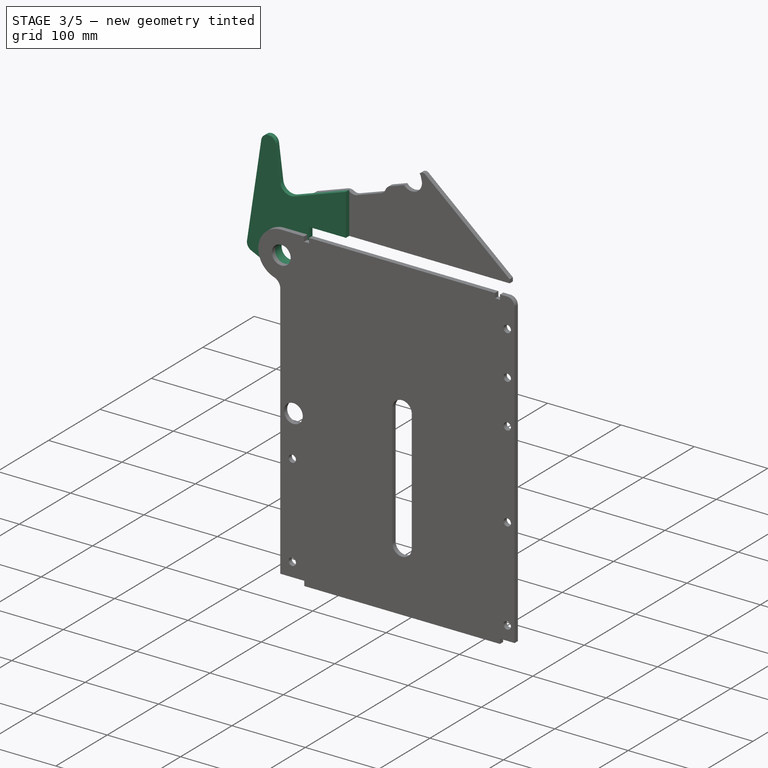
[diagram: stage 3 of 5 — iso view after this stage's code; geometry added in this stage tinted green]
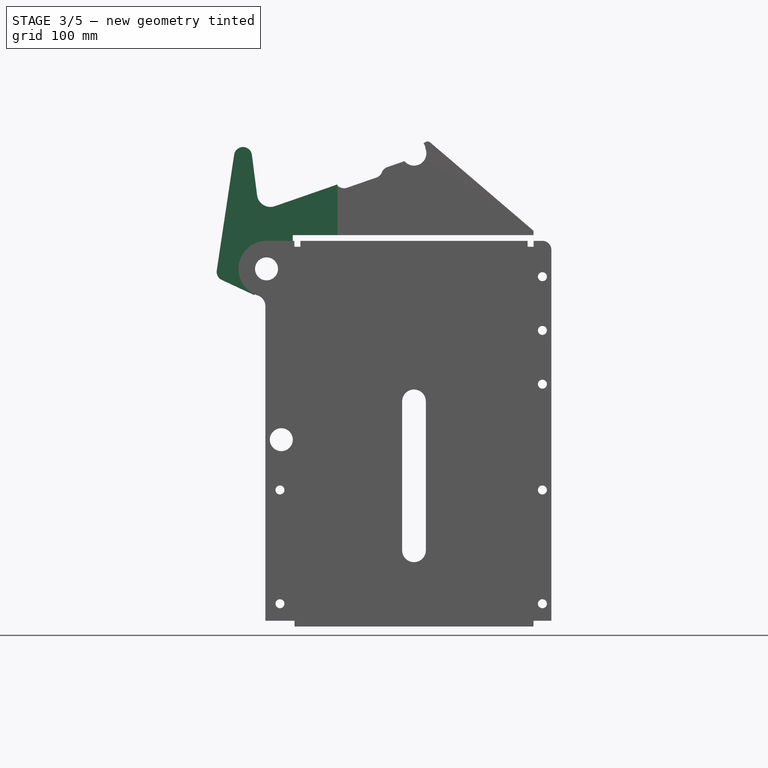
[diagram: stage 3 of 5 — front view after this stage's code; geometry added in this stage tinted green]
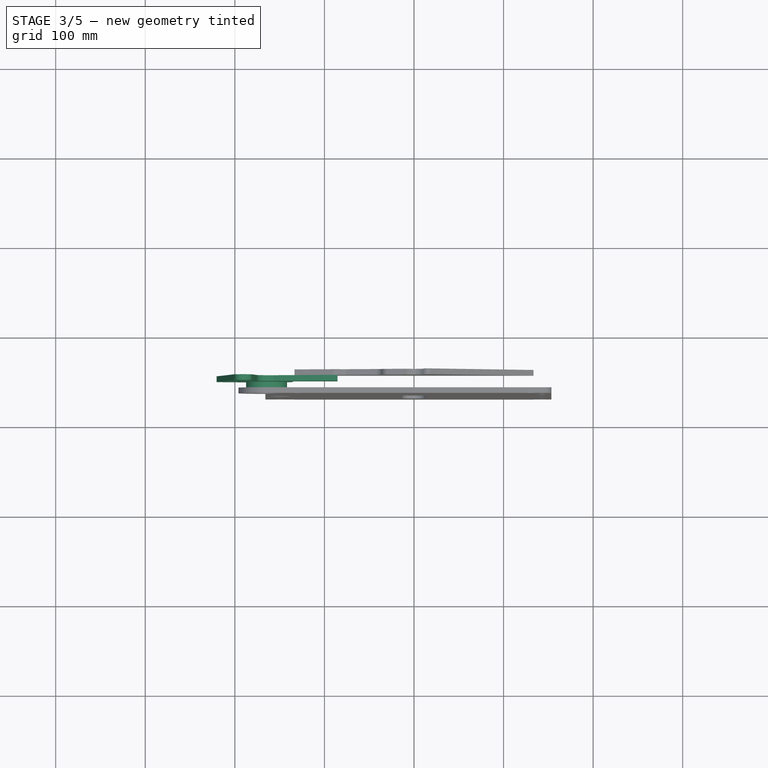
[diagram: stage 3 of 5 — top view after this stage's code; geometry added in this stage tinted green]
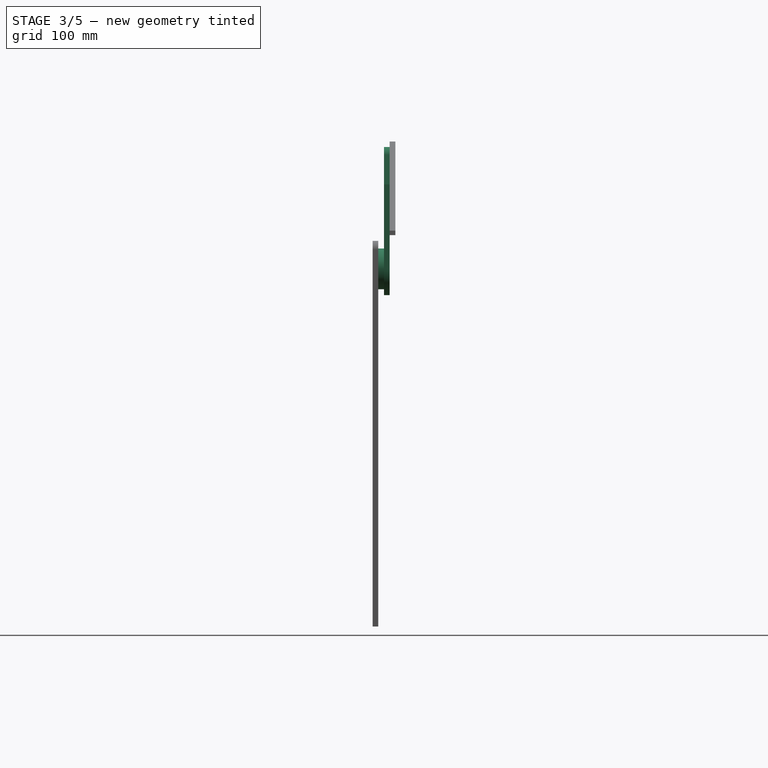
[diagram: stage 3 of 5 — right view after this stage's code; geometry added in this stage tinted green]
FEATURE [PartDesign::ShapeBinder] ShapeBinder004
  Support = -> [Pad002]
  TraceSupport = false
FEATURE [Sketcher::SketchObject] Sketch004
  ExternalGeometry = -> [ShapeBinder004]
  FullyConstrained = true
  MapMode = 5
  Placement = pos=(-126,0,0) rot=(0.57735,-0.57735,-0.57735;2.0944rad)
  Support = -> [ShapeBinder003]
  expr: Constraints[8] = <<inputs>>.brick_width
  sketch-geometry (4):
    g0: LineSegment StartX=62.5 StartY=163.2 StartZ=0 EndX=-64.5 EndY=163.2 EndZ=0
    g1: LineSegment StartX=-64.5 StartY=163.2 StartZ=0 EndX=-64.5 EndY=-267.35 EndZ=0
    g2: LineSegment StartX=-64.5 StartY=-267.35 StartZ=0 EndX=62.5 EndY=-267.35 EndZ=0
    g3: LineSegment StartX=62.5 StartY=-267.35 StartZ=0 EndX=62.5 EndY=163.2 EndZ=0
  constraints (10):
    c: Coincident(g0,g1)
    c: Coincident(g1,g2)
    c: Coincident(g2,g3)
    c: Horizontal(g0)
    c: Horizontal(g2)
    c: Vertical(g1)
    c: Coincident(g0,g-3)
    c: Coincident(g-3,g2)
    c: Distance(g2) = 127
    c: Coincident(g3,g0)
FEATURE [PartDesign::Pad] Pad003
  Direction = (-1,0,0)
  Length = 6.35
  Length2 = 10
  Profile = -> Sketch004
  ReferenceAxis = -> Sketch004 [N_Axis]
  Refine = true
  Type = 0
  expr: Length = <<inputs>>.metal_thickness
FEATURE [PartDesign::Body] Body009  label="puller_connector_x4"
  Group = -> [ShapeBinder014,Sketch010,Pad008]
  Origin = -> Origin009
  Tip = -> Pad008
FEATURE [PartDesign::ShapeBinder] ShapeBinder015
  Placement = pos=(0,-6.35,-1.4e-15) rot=(0,0,1;0rad)
  Support = -> [Pad008]
  TraceSupport = false
FEATURE [Sketcher::SketchObject] Sketch011
  ExternalGeometry = -> [DatumLine,ShapeBinder015]
  FullyConstrained = true
  MapMode = 5
  Placement = pos=(3.69382,-6.35,-0.56112) rot=(0.546077,-0.546077,-0.635295;2.00966rad)
  Support = -> [ShapeBinder015]
  expr: Constraints[21] = <<inputs>>.cross_bar_length
  expr: Constraints[7] = <<inputs>>.puller_cross_bar_width
  expr: Constraints[9] = <<inputs>>.metal_thickness * 4 + 0.2 mm
  sketch-geometry (8):
    g0: LineSegment StartX=-95.75 StartY=391.837 StartZ=0 EndX=83.05 EndY=391.837 EndZ=0
    g1: LineSegment StartX=83.05 StartY=311.837 StartZ=0 EndX=83.05 EndY=391.837 EndZ=0
    g2: LineSegment StartX=-95.75 StartY=311.837 StartZ=0 EndX=-95.75 EndY=391.837 EndZ=0
    g3: LineSegment StartX=-19.15 StartY=316.837 StartZ=0 EndX=6.45 EndY=316.837 EndZ=0
    g4: LineSegment StartX=-19.15 StartY=316.837 StartZ=0 EndX=-19.15 EndY=311.837 EndZ=0
    g5: LineSegment StartX=-19.15 StartY=311.837 StartZ=0 EndX=-95.75 EndY=311.837 EndZ=0
    g6: LineSegment StartX=6.45 StartY=316.837 StartZ=0 EndX=6.45 EndY=311.837 EndZ=0
    g7: LineSegment StartX=6.45 StartY=311.837 StartZ=0 EndX=83.05 EndY=311.837 EndZ=0
  constraints (22):
    c: Symmetric(g1,g2,g-3)
    c: Horizontal(g0)
    c: Coincident(g1,g0)
    c: Vertical(g1)
    c: Coincident(g2,g0)
    c: Vertical(g2)
    c: PointOnObject(g-4,g0)
    c: Distance(g1) = 80
    c: Symmetric(g3,g3,g-3)
    c: Distance(g3) = 25.6
    c: Coincident(g4,g3)
    c: Coincident(g5,g4)
    c: Coincident(g5,g2)
    c: Horizontal(g5)
    c: Coincident(g6,g3)
    c: Coincident(g7,g6)
    c: Coincident(g7,g1)
    c: Horizontal(g7)
    c: Vertical(g4)
    c: Vertical(g6)
    c: Distance(g4) = 5
    c: Distance(g0) = 178.8
FEATURE [PartDesign::Pad] Pad009
  Direction = (-0.988658,0,0.150185)
  Length = 6.35
  Length2 = 10
  Placement = pos=(0,-6.35,-1.4e-15) rot=(0,0,1;0rad)
  Profile = -> Sketch011
  ReferenceAxis = -> Sketch011 [N_Axis]
  Refine = true
  Type = 0
  expr: Length = <<inputs>>.metal_thickness
FEATURE [PartDesign::Body] Body010  label="puller_cross_bar_x2"
  Group = -> [ShapeBinder015,DatumLine,Sketch011,Pad009]
  Origin = -> Origin010
  Tip = -> Pad009
FEATURE [PartDesign::ShapeBinder] ShapeBinder016
  Placement = pos=(0,-6.35,-1.4e-15) rot=(0,0,1;0rad)
  Support = -> [Pad009]
  TraceSupport = false
FEATURE [PartDesign::ShapeBinder] ShapeBinder017
  Placement = pos=(0,-6.35,1.4e-15) rot=(0,0,1;0rad)
  Support = -> [Pad002]
  TraceSupport = false
FEATURE [Sketcher::SketchObject] Sketch012
  ExternalGeometry = -> [ShapeBinder017,ShapeBinder016]
  FullyConstrained = true
  MapMode = 5
  Placement = pos=(0,-89.4,-1.4e-15) rot=(1,0,0;1.5708rad)
  Support = -> [ShapeBinder016]
  expr: Constraints[20] = <<inputs>>.puller_bars_width
  expr: Constraints[24] = <<inputs>>.rod_hole_diameter
  sketch-geometry (10):
    g0: LineSegment StartX=62.5418 StartY=386.832 StartZ=0 EndX=109.305 EndY=379.728 EndZ=0
    g1: LineSegment StartX=109.305 StartY=379.728 StartZ=0 EndX=97.2906 EndY=300.636 EndZ=0
    g2: LineSegment StartX=97.2906 StartY=300.636 StartZ=0 EndX=103.569 EndY=299.682 EndZ=0
    g3: LineSegment StartX=62.5418 StartY=386.832 StartZ=0 EndX=50.527 EndY=307.739 EndZ=0
    g4: LineSegment StartX=50.527 StartY=307.739 StartZ=0 EndX=44.2491 EndY=308.693 EndZ=0
    g5: LineSegment StartX=44.2491 StartY=308.693 StartZ=0 EndX=-29.6597 EndY=-177.844 EndZ=0
    g6: LineSegment StartX=103.569 StartY=299.682 StartZ=0 EndX=29.6597 EndY=-186.856 EndZ=0
    g7: ArcOfCircle CenterX=0 CenterY=-182.35 CenterZ=0 NormalX=0 NormalY=0 NormalZ=1 AngleXU=0 Radius=30 StartAngle=2.99084 EndAngle=6.13243
    g8: LineSegment StartX=-29.6597 StartY=-177.844 StartZ=0 EndX=29.6597 EndY=-186.856 EndZ=0
    g9: Circle CenterX=0 CenterY=-182.35 CenterZ=0 NormalX=0 NormalY=0 NormalZ=1 AngleXU=0 Radius=12.8
  constraints (25):
    c: Coincident(g0,g-5)
    c: Coincident(g1,g0)
    c: Coincident(g2,g1)
    c: Coincident(g3,g0)
    c: Coincident(g3,g-6)
    c: Coincident(g4,g3)
    c: Coincident(g4,g-6)
    c: Perpendicular(g1,g2)
    c: Equal(g2,g4)
    c: Coincident(g5,g4)
    c: Coincident(g6,g2)
    c: Parallel(g5,g6)
    c: Parallel(g6,g1)
    c: Parallel(g1,g3)
    c: Perpendicular(g1,g0)
    c: Equal(g1,g3)
    c: Coincident(g7,g5)
    c: Coincident(g7,g6)
    c: Coincident(g8,g5)
    c: Coincident(g8,g6)
    c: Distance(g8) = 60
    c: Coincident(g7,g-3)
    c: PointOnObject(g7,g8)
    c: Coincident(g9,g7)
    c: Diameter(g9) = 25.6
FEATURE [PartDesign::Pad] Pad010
  Direction = (0,-1,2e-16)
  Length = 6.35
  Length2 = 10
  Placement = pos=(0,-6.35,-1.4e-15) rot=(0,0,1;0rad)
  Profile = -> Sketch012
  ReferenceAxis = -> Sketch012 [N_Axis]
  Refine = true
  Reversed = true
  Type = 0
  expr: Length = <<inputs>>.metal_thickness
FEATURE [PartDesign::Body] Body011  label="puller_bar_x2"
  Group = -> [ShapeBinder016,ShapeBinder017,Sketch012,Pad010]
  Origin = -> Origin011
  Tip = -> Pad010
FEATURE [Sketcher::SketchObject] Sketch013  label="design_sketch"
  ExternalGeometry = -> [Pad010,Pad006,Pad008]
  FullyConstrained = false
  MapMode = 5
  Placement = pos=(2.8e-15,-89.4,1.73e-14) rot=(1,0,0;1.5708rad)
  Support = -> [Pad010]
  sketch-geometry (3):
    g0: Circle CenterX=-2.8e-15 CenterY=-182.35 CenterZ=0 NormalX=0 NormalY=0 NormalZ=1 AngleXU=0 Radius=412.374
    g1: Circle CenterX=-2.8e-15 CenterY=-182.35 CenterZ=0 NormalX=0 NormalY=0 NormalZ=1 AngleXU=0 Radius=434.649
    g2: LineSegment StartX=-203.439 StartY=201.749 StartZ=0 EndX=-193.013 EndY=182.065 EndZ=0
  constraints (8):
    c: Coincident(g0,g-3)
    c: Tangent(g0,g-5)
    c: Coincident(g1,g0)
    c: Tangent(g1,g-4)
    c: PointOnObject(g2,g1)
    c: PointOnObject(g2,g0)
    c: Perpendicular(g0,g2)
    c: Distance(g2) = 22.275
FEATURE [Sketcher::SketchObject] Sketch014
  ExternalGeometry = -> [Pad005,ShapeBinder008]
  FullyConstrained = true
  MapMode = 5
  Placement = pos=(-4e-16,-49.8,1.17e-14) rot=(1,0,0;1.5708rad)
  Support = -> [Pad005]
  expr: Constraints[10] = <<inputs>>.rod_diameter
  expr: Constraints[8] = 5 mm
  sketch-geometry (11):
    g0: LineSegment StartX=-10.6301 StartY=252.169 StartZ=0 EndX=-133.35 EndY=227.101 EndZ=0
    g1: LineSegment StartX=-133.35 StartY=227.101 StartZ=0 EndX=-133.35 EndY=209.55 EndZ=0
    g2: LineSegment StartX=-133.35 StartY=209.55 StartZ=0 EndX=-10.6301 EndY=252.169 EndZ=0
    g3: LineSegment StartX=-2.28e-14 StartY=260.969 StartZ=0 EndX=0 EndY=265.969 EndZ=0
    g4: Circle CenterX=0 CenterY=265.969 CenterZ=0 NormalX=0 NormalY=0 NormalZ=1 AngleXU=0 Radius=12.7
    g5: Circle CenterX=6e-16 CenterY=-182.35 CenterZ=0 NormalX=0 NormalY=0 NormalZ=1 AngleXU=0 Radius=435.619
    g6: LineSegment StartX=-133.35 StartY=227.101 StartZ=0 EndX=-134.898 EndY=231.855 EndZ=0
    g7: LineSegment StartX=-77.35 StartY=202.689 StartZ=0 EndX=-74.2088 EndY=202.689 EndZ=0
    g8: LineSegment StartX=-74.2088 StartY=202.689 StartZ=0 EndX=-74.2088 EndY=198.291 EndZ=0
    g9: LineSegment StartX=-74.2088 StartY=198.291 StartZ=0 EndX=-77.35 EndY=198.291 EndZ=0
    g10: LineSegment StartX=-77.35 StartY=198.291 StartZ=0 EndX=-77.35 EndY=202.689 EndZ=0
  constraints (27):
    c: Coincident(g0,g-3)
    c: Coincident(g1,g0)
    c: Coincident(g1,g-4)
    c: Coincident(g2,g1)
    c: Coincident(g2,g0)
    c: Vertical(g1)
    c: Coincident(g3,g-5)
    c: PointOnObject(g3,g-2)
    c: Distance(g3) = 5
    c: Coincident(g4,g3)
    c: Diameter(g4) = 25.4
    c: Coincident(g5,g-6)
    c: Tangent(g5,g4)
    c: PointOnObject(g6,g5)
    c: Coincident(g6,g0)
    c: Perpendicular(g5,g6)
    c: Distance(g6) = 5
    c: Coincident(g7,g8)
    c: Coincident(g8,g9)
    c: Coincident(g9,g10)
    c: Coincident(g10,g7)
    c: Horizontal(g7)
    c: Horizontal(g9)
    c: Vertical(g8)
    c: Vertical(g10)
    c: Block(g7)
    c: Block(g8)
FEATURE [Sketcher::SketchObject] Sketch016
  ExternalGeometry = -> [Pad006]
  FullyConstrained = true
  MapMode = 5
  Placement = pos=(0,-6.35,-1.4e-15) rot=(1,0,0;1.5708rad)
  Support = -> [Pad006]
  expr: Constraints[17] = <<inputs>>.latch_height - <<inputs>>.metal_thickness
  expr: Constraints[1] = <<inputs>>.height_of_puller_connector
  expr: Constraints[24] = <<inputs>>.latch_height
  expr: Constraints[36] = <<inputs>>.rod_hole_diameter
  expr: Constraints[53] = <<inputs>>.latch_tooth_length + 5 mm + <<inputs>>.metal_thickness
  expr: Constraints[61] = <<inputs>>.metal_thickness + 2 mm
  expr: Constraints[87] = <<inputs>>.metal_thickness
  expr: Constraints[9] = <<inputs>>.latch_pivot_hole_diameter
  sketch-geometry (34):
    g0: LineSegment StartX=0 StartY=265.099 StartZ=0 EndX=19.4865 EndY=393.377 EndZ=0
    g1: LineSegment StartX=-12.4763 StartY=382.722 StartZ=0 EndX=46.8431 EndY=373.711 EndZ=0
    g2: LineSegment StartX=46.8431 StartY=373.711 StartZ=0 EndX=49.1462 EndY=388.872 EndZ=0
    g3: LineSegment StartX=19.4865 StartY=393.377 StartZ=0 EndX=49.1462 EndY=388.872 EndZ=0
    g4: Circle CenterX=-0.544419 CenterY=404.006 CenterZ=0 NormalX=0 NormalY=0 NormalZ=1 AngleXU=0 Radius=4.7625
    g5: LineSegment StartX=-12.4763 StartY=382.722 StartZ=0 EndX=-10.1733 EndY=397.883 EndZ=0
    g6: LineSegment StartX=19.4865 StartY=393.377 StartZ=0 EndX=-10.1733 EndY=397.883 EndZ=0
    g7: LineSegment StartX=49.1462 StartY=388.872 StartZ=0 EndX=50.4453 EndY=397.424 EndZ=0
    g8: LineSegment StartX=50.4453 StartY=397.424 StartZ=0 EndX=45.502 EndY=398.174 EndZ=0
    g9: LineSegment StartX=-10.1733 StartY=397.883 StartZ=0 EndX=-7.92049 EndY=412.713 EndZ=0
    g10: LineSegment StartX=-10.1733 StartY=397.883 StartZ=0 EndX=-9.04688 EndY=405.298 EndZ=0
    g11: LineSegment StartX=-9.04688 StartY=405.298 StartZ=0 EndX=-7.92049 EndY=412.713 EndZ=0
    g12: LineSegment StartX=-9.04688 StartY=405.298 StartZ=0 EndX=-5.2529 EndY=404.721 EndZ=0
    g13: LineSegment StartX=19.4865 StartY=393.377 StartZ=0 EndX=20.6129 EndY=400.792 EndZ=0
    g14: Circle CenterX=20.6129 CenterY=400.792 CenterZ=0 NormalX=0 NormalY=0 NormalZ=1 AngleXU=0 Radius=12.8
    g15: LineSegment StartX=4.16406 StartY=403.291 StartZ=0 EndX=7.95804 EndY=402.714 EndZ=0
    g16: LineSegment StartX=7.95804 StartY=402.714 StartZ=0 EndX=20.6129 EndY=400.792 EndZ=0
    g17: ArcOfCircle CenterX=-0.544419 CenterY=404.006 CenterZ=0 NormalX=0 NormalY=0 NormalZ=1 AngleXU=0 Radius=46.4142 StartAngle=6.15721 EndAngle=6.62135
    g18: LineSegment StartX=43.2411 StartY=419.404 StartZ=0 EndX=47.9579 EndY=421.063 EndZ=0
    g19: LineSegment StartX=45.502 StartY=398.174 StartZ=0 EndX=43.2411 EndY=419.404 EndZ=0
    g20: LineSegment StartX=50.4453 StartY=397.424 StartZ=0 EndX=54.3794 EndY=423.321 EndZ=0
    g21: LineSegment StartX=47.9579 StartY=421.063 StartZ=0 EndX=54.3794 EndY=423.321 EndZ=0
    g22: LineSegment StartX=54.3794 StartY=423.321 StartZ=0 EndX=55.6335 EndY=431.577 EndZ=0
    g23: LineSegment StartX=-7.92049 StartY=412.713 StartZ=0 EndX=-3.68602 EndY=440.588 EndZ=0
    g24: LineSegment StartX=-3.68602 StartY=440.588 StartZ=0 EndX=55.6335 EndY=431.577 EndZ=0
    g25: LineSegment StartX=-10.1733 StartY=397.883 StartZ=0 EndX=-9.04688 EndY=405.298 EndZ=0
    g26: LineSegment StartX=47.9579 StartY=421.063 StartZ=0 EndX=46.2992 EndY=425.78 EndZ=0
    g27: LineSegment StartX=46.2992 StartY=425.78 StartZ=0 EndX=38.5801 EndY=374.966 EndZ=0
    g28: LineSegment StartX=46.2992 StartY=425.78 StartZ=0 EndX=40.8832 EndY=390.127 EndZ=0
    g29: LineSegment StartX=-7.92049 StartY=412.713 StartZ=0 EndX=-9.04688 EndY=405.298 EndZ=0
    g30: LineSegment StartX=-7.92049 StartY=412.713 StartZ=0 EndX=46.2992 EndY=425.78 EndZ=0
    g31: LineSegment StartX=-7.92049 StartY=412.713 StartZ=0 EndX=-6.96682 EndY=418.991 EndZ=0
    g32: LineSegment StartX=-6.96682 StartY=418.991 StartZ=0 EndX=45.3329 EndY=411.046 EndZ=0
    g33: ArcOfCircle CenterX=-0.544419 CenterY=404.006 CenterZ=0 NormalX=0 NormalY=0 NormalZ=1 AngleXU=0 Radius=46.4142 StartAngle=6.15721 EndAngle=6.43545
  constraints (92):
    c: Coincident(g0,g-4)
    c: Distance(g0) = 129.75
    c: Parallel(g-5,g0)
    c: Coincident(g1,g-5)
    c: Coincident(g1,g-3)
    c: Coincident(g2,g1)
    c: Perpendicular(g2,g1)
    c: Coincident(g3,g0)
    c: Perpendicular(g0,g3)
    c: Diameter(g4) = 9.525
    c: Coincident(g5,g1)
    c: Parallel(g-5,g5)
    c: Coincident(g6,g0)
    c: Perpendicular(g5,g6)
    c: Coincident(g3,g2)
    c: Coincident(g7,g2)
    c: Parallel(g7,g2)
    c: Distance(g7) = 8.65
    c: Coincident(g8,g7)
    c: Distance(g8) = 5
    c: Perpendicular(g7,g8)
    c: Coincident(g6,g5)
    c: Coincident(g9,g5)
    c: Parallel(g9,g5)
    c: Distance(g9) = 15
    c: Coincident(g10,g5)
    c: Coincident(g11,g10)
    c: Coincident(g11,g9)
    c: Equal(g10,g11)
    c: PointOnObject(g10,g9)
    c: Coincident(g12,g10)
    c: PointOnObject(g12,g4)
    c: Perpendicular(g9,g12)
    c: Perpendicular(g4,g12)
    c: Coincident(g13,g0)
    c: Parallel(g13,g0)
    c: Diameter(g14) = 25.6
    c: PointOnObject(g15,g4)
    c: PointOnObject(g15,g14)
    c: Perpendicular(g14,g15)
    c: Perpendicular(g4,g15)
    c: Equal(g15,g12)
    c: Coincident(g13,g14)
    c: Coincident(g16,g15)
    c: Coincident(g16,g13)
    c: Perpendicular(g13,g16)
    c: Coincident(g17,g4)
    c: Coincident(g17,g8)
    c: Coincident(g18,g17)
    c: Equal(g8,g18)
    c: Perpendicular(g17,g18)
    c: Coincident(g19,g8)
    c: Coincident(g19,g17)
    c: Distance(g19) = 21.35
    c: Coincident(g20,g7)
    c: Coincident(g21,g18)
    c: Coincident(g21,g20)
    c: Parallel(g20,g2)
    c: Parallel(g21,g18)
    c: Coincident(g22,g21)
    c: Parallel(g22,g20)
    c: Distance(g22) = 8.35
    c: Coincident(g23,g9)
    c: Coincident(g24,g23)
    c: Coincident(g24,g22)
    c: Perpendicular(g23,g24)
    c: Parallel(g23,g5)
    c: Coincident(g25,g5)
    c: Coincident(g26,g18)
    c: Perpendicular(g26,g18)
    c: Equal(g18,g26)
    c: Coincident(g10,g25)
    c: Coincident(g27,g26)
    c: PointOnObject(g27,g1)
    c: Perpendicular(g1,g27)
    c: Distance(g27) = 51.3971
    c: Coincident(g28,g26)
    c: PointOnObject(g28,g3)
    c: Distance(g28) = 36.0622
    c: Perpendicular(g3,g28)
    c: Coincident(g29,g9)
    c: Coincident(g29,g25)
    c: Coincident(g30,g29)
    c: Coincident(g30,g26)
    c: Coincident(g31,g29)
    c: PointOnObject(g31,g23)
    c: Coincident(g32,g31)
    c: Distance(g31) = 6.35
    c: Perpendicular(g31,g32)
    c: Coincident(g33,g4)
    c: Coincident(g33,g32)
    c: Coincident(g33,g8)
FEATURE [PartDesign::Pad] Pad013  label="extend_top_for_latch_connection"
  BaseFeature = -> Pad006
  Direction = (0,-1,-2e-16)
  Length = 6.35
  Length2 = 10
  Placement = pos=(0,0,0) rot=(1,0,0;1.5708rad)
  Profile = -> Sketch016
  ReferenceAxis = -> Sketch016 [N_Axis]
  Refine = true
  Reversed = true
  Type = 0
  expr: Length = <<inputs>>.metal_thickness
FEATURE [Sketcher::SketchObject] Sketch024
  ExternalGeometry = -> [Pad010]
  FullyConstrained = true
  MapMode = 5
  Placement = pos=(2.8e-15,-89.4,1.73e-14) rot=(1,0,0;1.5708rad)
  Support = -> [Pad010]
  sketch-geometry (4):
    g0: Circle CenterX=-2.5e-15 CenterY=-182.35 CenterZ=0 NormalX=0 NormalY=0 NormalZ=1 AngleXU=0 Radius=23.3
    g1: Circle CenterX=-2.5e-15 CenterY=-182.35 CenterZ=0 NormalX=0 NormalY=0 NormalZ=1 AngleXU=0 Radius=13.3
    g2: LineSegment StartX=12.8 StartY=-182.35 StartZ=0 EndX=13.3 EndY=-182.35 EndZ=0
    g3: LineSegment StartX=13.3 StartY=-182.35 StartZ=0 EndX=23.3 EndY=-182.35 EndZ=0
  constraints (11):
    c: Coincident(g-3,g0)
    c: Coincident(g1,g0)
    c: PointOnObject(g2,g-3)
    c: PointOnObject(g2,g1)
    c: Coincident(g3,g2)
    c: PointOnObject(g3,g0)
    c: Horizontal(g3)
    c: Horizontal(g2)
    c: Distance(g3) = 10
    c: Distance(g2) = 0.5
    c: Horizontal(g0,g2)
FEATURE [Part::Extrusion] Extrude005  label="arm_spacer_x6"
  Base = -> Sketch024
  Dir = (0,-1,2e-16)
  DirMode = 2
  FaceMakerClass = Part::FaceMakerBullseye
  LengthFwd = 6.35
  LengthRev = 0
  Solid = true
  Symmetric = false
  expr: LengthFwd = <<inputs>>.metal_thickness
FEATURE [Sketcher::SketchObject] Sketch026
  ExternalGeometry = -> [Pad014]
  FullyConstrained = true
  MapMode = 5
  Placement = pos=(1e-16,-62.5,1.37e-14) rot=(0,0.707107,0.707107;3.14159rad)
  Support = -> [Pad014]
  sketch-geometry (3):
    g0: Circle CenterX=164.65 CenterY=131.9 CenterZ=0 NormalX=0 NormalY=0 NormalZ=1 AngleXU=0 Radius=12.8
    g1: Circle CenterX=164.65 CenterY=131.9 CenterZ=0 NormalX=0 NormalY=0 NormalZ=1 AngleXU=0 Radius=22.8
    g2: LineSegment StartX=177.45 StartY=131.9 StartZ=0 EndX=187.45 EndY=131.9 EndZ=0
  constraints (8):
    c: Coincident(g0,g-3)
    c: Equal(g0,g-3)
    c: Coincident(g1,g0)
    c: PointOnObject(g2,g0)
    c: PointOnObject(g2,g1)
    c: Horizontal(g2)
    c: Perpendicular(g0,g2)
    c: Distance(g2) = 10
FEATURE [Part::Extrusion] Extrude007  label="lid_pivot_spacer_x2"
  Base = -> Sketch026
  Dir = (0,1,-2e-16)
  DirMode = 2
  FaceMakerClass = Part::FaceMakerBullseye
  LengthFwd = 6.35
  LengthRev = 0
  Solid = true
  Symmetric = false
  expr: LengthFwd = <<inputs>>.metal_thickness
FEATURE [Sketcher::SketchObject] Sketch045
  ExternalGeometry = -> [Pad012,Pad014,Extrude005,Pad003,Pad013]
  FullyConstrained = false
  MapMode = 5
  Placement = pos=(-4e-16,-49.8,1.17e-14) rot=(1,0,0;1.5708rad)
  Support = -> [Pad012]
  sketch-geometry (29):
    g0: Circle CenterX=2.7e-15 CenterY=-182.35 CenterZ=0 NormalX=0 NormalY=0 NormalZ=1 AngleXU=0 Radius=415.35
    g1: GeomPoint X=-291.668 Y=113.362 Z=0
    g2: LineSegment StartX=-213.285 StartY=122.25 StartZ=0 EndX=-177.033 EndY=105.345 EndZ=0
    g3: ArcOfCircle CenterX=-164.65 CenterY=131.9 CenterZ=0 NormalX=0 NormalY=0 NormalZ=1 AngleXU=0 Radius=29.3 StartAngle=4.27606 EndAngle=6.28319
    g4: LineSegment StartX=-164.65 StartY=119.1 StartZ=0 EndX=-164.65 EndY=102.6 EndZ=0
    g5: LineSegment StartX=-85.35 StartY=226.22 StartZ=0 EndX=-85.35 EndY=169.55 EndZ=0
    g6: ArcOfCircle CenterX=-190.888 CenterY=257.951 CenterZ=0 NormalX=0 NormalY=0 NormalZ=1 AngleXU=0 Radius=10 StartAngle=0.127475 EndAngle=2.99243
    g7: LineSegment StartX=-200.777 StartY=259.437 StartZ=0 EndX=-220.216 EndY=130.08 EndZ=0
    g8: LineSegment StartX=-169.751 StartY=196.908 StartZ=0 EndX=-85.35 EndY=226.22 EndZ=0
    g9: LineSegment StartX=-135.35 StartY=169.55 StartZ=0 EndX=-135.35 EndY=131.9 EndZ=0
    g10: Circle CenterX=-164.65 CenterY=131.9 CenterZ=0 NormalX=0 NormalY=0 NormalZ=1 AngleXU=0 Radius=12.8
    g11: Circle CenterX=-160.565 CenterY=200.71 CenterZ=0 NormalX=0 NormalY=0 NormalZ=1 AngleXU=0 Radius=12.8
    g12: LineSegment StartX=-291.668 StartY=113.362 StartZ=0 EndX=-164.65 EndY=131.9 EndZ=0
    g13: LineSegment StartX=-164.65 StartY=131.9 StartZ=0 EndX=-180.969 EndY=259.222 EndZ=0
    g14: ArcOfCircle CenterX=-170.623 CenterY=199.42 CenterZ=0 NormalX=0 NormalY=0 NormalZ=1 AngleXU=0 Radius=2.65903 StartAngle=3.26907 EndAngle=5.04664
    g15: LineSegment StartX=-180.969 StartY=259.222 StartZ=0 EndX=-173.261 EndY=199.082 EndZ=0
    g16: LineSegment StartX=-135.35 StartY=131.9 StartZ=0 EndX=-132.35 EndY=131.9 EndZ=0
    g17: LineSegment StartX=0 StartY=0 StartZ=0 EndX=0 EndY=233 EndZ=0
    g18: LineSegment StartX=-213.285 StartY=122.25 StartZ=0 EndX=-214.553 EndY=119.531 EndZ=0
    g19: LineSegment StartX=-214.553 StartY=119.531 StartZ=0 EndX=-178.301 EndY=102.626 EndZ=0
    g20: LineSegment StartX=-177.033 StartY=105.345 StartZ=0 EndX=-178.301 EndY=102.626 EndZ=0
    g21: ArcOfCircle CenterX=-210.327 CenterY=128.594 CenterZ=0 NormalX=0 NormalY=0 NormalZ=1 AngleXU=0 Radius=10 StartAngle=2.99243 EndAngle=4.27606
    g22: LineSegment StartX=-135.35 StartY=169.55 StartZ=0 EndX=-85.35 EndY=169.55 EndZ=0
    g23: Circle CenterX=2.7e-15 CenterY=-182.35 CenterZ=0 NormalX=0 NormalY=0 NormalZ=1 AngleXU=0 Radius=447.449
    g24: LineSegment StartX=-164.65 StartY=131.9 StartZ=0 EndX=-290.303 EndY=158.142 EndZ=0
    g25: Circle CenterX=2.7e-15 CenterY=-182.35 CenterZ=0 NormalX=0 NormalY=0 NormalZ=1 AngleXU=0 Radius=439.015
    g26: ArcOfCircle CenterX=-160.315 CenterY=216.064 CenterZ=0 NormalX=0 NormalY=0 NormalZ=1 AngleXU=0 Radius=15 StartAngle=3.26907 EndAngle=5.04664
    g27: LineSegment StartX=-180.969 StartY=259.222 StartZ=0 EndX=-175.193 EndY=214.157 EndZ=0
    g28: LineSegment StartX=-155.394 StartY=201.895 StartZ=0 EndX=-85.35 EndY=226.22 EndZ=0
  constraints (63):
    c: PointOnObject(g4,g3)
    c: Vertical(g4)
    c: Distance(g4) = 16.5
    c: Vertical(g5)
    c: Distance(g2) = 40
    c: Tangent(g7,g6) = -1.5708
    c: Diameter(g6) = 20
    c: Coincident(g8,g5)
    c: Vertical(g9)
    c: PointOnObject(g11,g0)
    c: PointOnObject(g4,g10)
    c: Coincident(g3,g10)
    c: Coincident(g12,g3)
    c: Coincident(g13,g3)
    c: Angle(g13,g12) = 1.58825
    c: Equal(g13,g12)
    c: Tangent(g6,g13) = -1.5708
    c: Tangent(g14,g8) = -1.5708
    c: Coincident(g1,g12)
    c: PointOnObject(g1,g0)
    c: Tangent(g14,g11)
    c: Coincident(g15,g6)
    c: Tangent(g15,g11)
    c: Tangent(g15,g14) = -1.5708
    c: Coincident(g16,g3)
    c: Horizontal(g16)
    c: Distance(g16) = 3
    c: Parallel(g15,g13)
    c: DistanceY(g14,g6) = 60.14
    c: Tangent(g9,g3) = 1.5708
    c: Coincident(g17,g-1)
    c: Distance(g17) = 233
    c: PointOnObject(g17,g0)
    c: Vertical(g17)
    c: Coincident(g18,g2)
    c: Coincident(g19,g18)
    c: Coincident(g20,g19)
    c: Perpendicular(g2,g20)
    c: Perpendicular(g18,g2)
    c: Equal(g18,g20)
    c: Equal(g16,g18)
    c: Tangent(g21,g19) = -1.5708
    c: Tangent(g21,g7) = -1.5708
    c: Equal(g21,g6)
    c: Tangent(g2,g3) = -1.5708
    c: Coincident(g3,g20)
    c: Coincident(g22,g9)
    c: Horizontal(g22)
    c: Coincident(g22,g5)
    c: Distance(g22) = 50
    c: Coincident(g23,g0)
    c: Coincident(g24,g3)
    c: PointOnObject(g24,g23)
    c: Equal(g12,g24)
    c: Angle(g13,g24) = 1.23744
    c: Coincident(g25,g0)
    c: Tangent(g26,g13) = 1.5708
    c: Tangent(g26,g8) = -1.5708
    c: Coincident(g27,g6)
    c: Coincident(g27,g26)
    c: Coincident(g28,g26)
    c: Coincident(g28,g5)
    c: Diameter(g26) = 30
FEATURE [Part::Extrusion] Extrude011  label="lid_opening_catch_v2_x2_USE_COMBINED_PART_INSTEAD"
  Base = -> Sketch045
  Dir = (0,-1,2e-16)
  DirMode = 2
  FaceMakerClass = Part::FaceMakerBullseye
  LengthFwd = 6.35
  LengthRev = 0
  Solid = true
  Symmetric = false
  expr: LengthFwd = <<inputs>>.metal_thickness
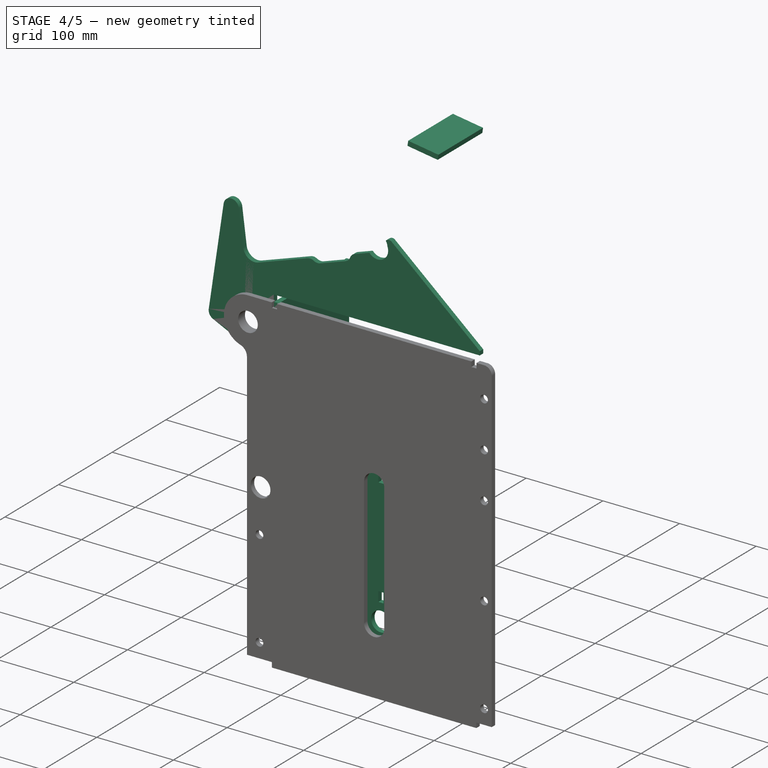
[diagram: stage 4 of 5 — iso view after this stage's code; geometry added in this stage tinted green]
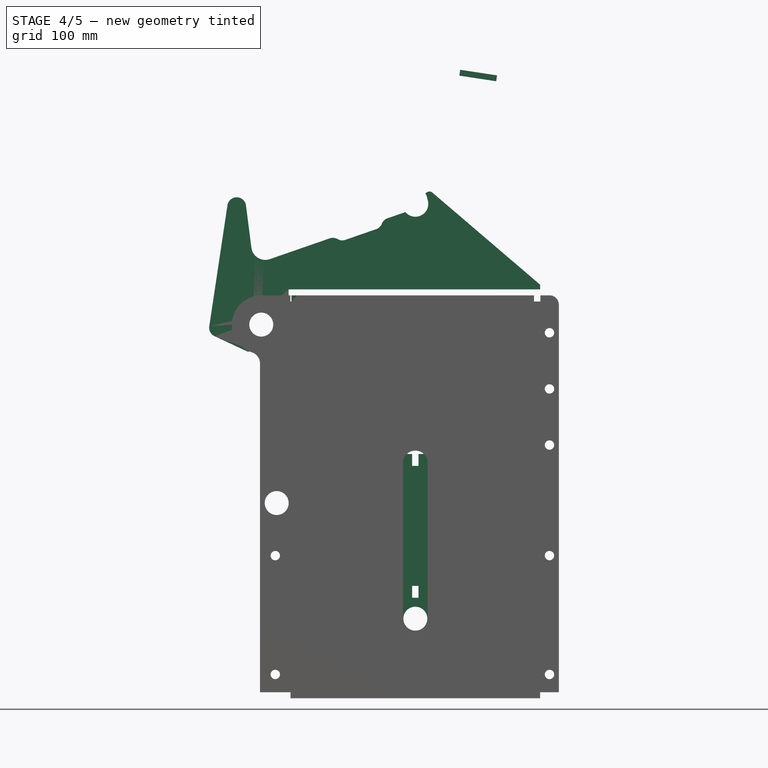
[diagram: stage 4 of 5 — front view after this stage's code; geometry added in this stage tinted green]
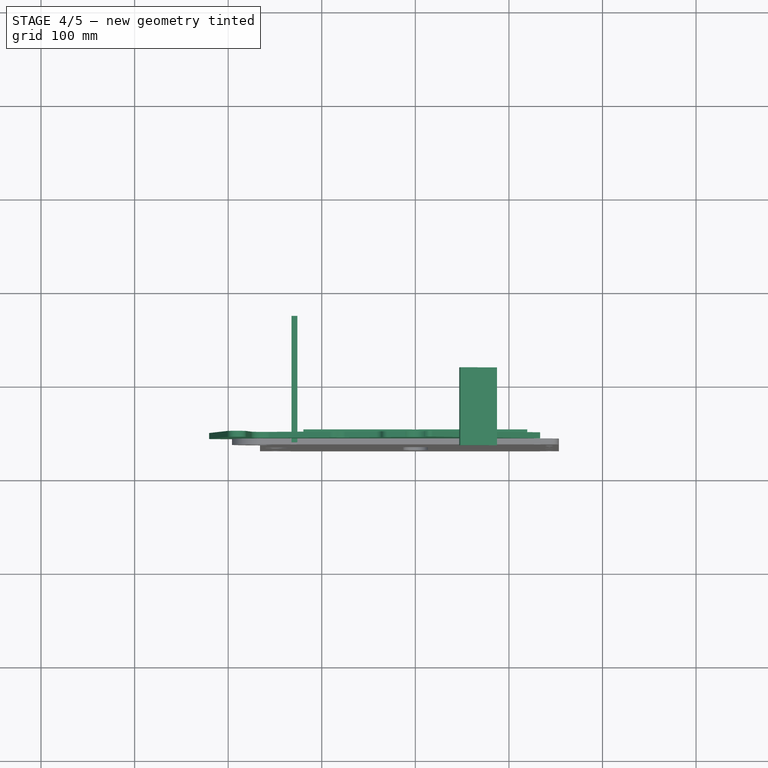
[diagram: stage 4 of 5 — top view after this stage's code; geometry added in this stage tinted green]
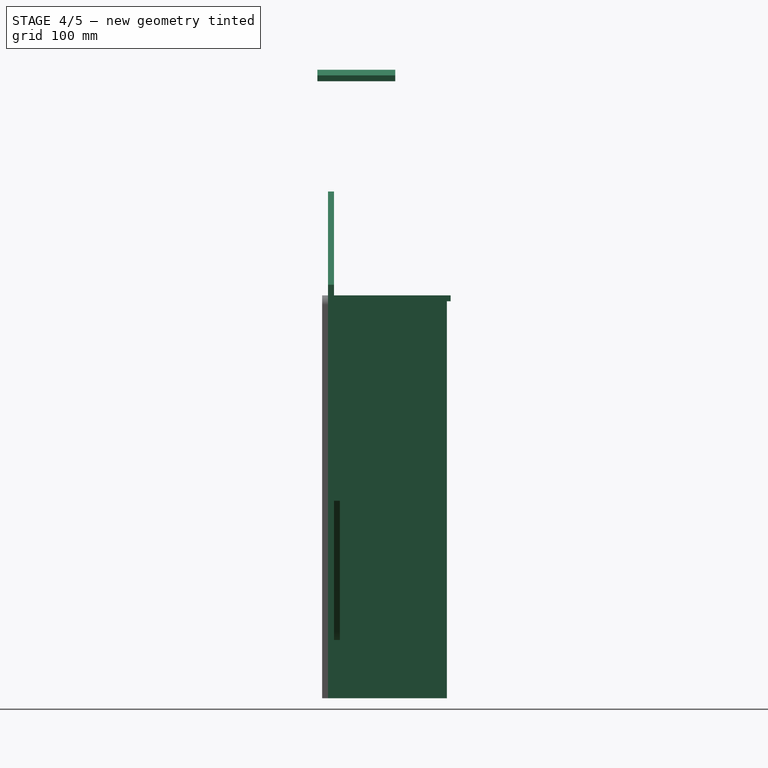
[diagram: stage 4 of 5 — right view after this stage's code; geometry added in this stage tinted green]
FEATURE [PartDesign::ShapeBinder] ShapeBinder011
  Placement = pos=(0,0,0) rot=(1,0,0;1.5708rad)
  Support = -> [Pad006]
  TraceSupport = false
FEATURE [Sketcher::SketchObject] Sketch008
  ExternalGeometry = -> [ShapeBinder011]
  FullyConstrained = true
  MapMode = 5
  Placement = pos=(56.5456,-8.27e-14,372.237) rot=(0.075306,0,0.99716;3.14159rad)
  Support = -> [ShapeBinder011]
  expr: Constraints[20] = <<inputs>>.metal_thickness * 6 + 1 mm
  expr: Constraints[22] = <<inputs>>.rod_hole_diameter
  expr: Constraints[9] = <<inputs>>.metal_thickness
  sketch-geometry (10):
    g0: LineSegment StartX=69.8138 StartY=6.35 StartZ=0 EndX=9.81381 EndY=6.35 EndZ=0
    g1: LineSegment StartX=9.81381 StartY=6.35 StartZ=0 EndX=9.81381 EndY=12.7 EndZ=0
    g2: LineSegment StartX=9.81381 StartY=12.7 StartZ=0 EndX=69.8138 EndY=12.7 EndZ=0
    g3: LineSegment StartX=69.8138 StartY=12.7 StartZ=0 EndX=69.8138 EndY=6.35 EndZ=0
    g4: LineSegment StartX=9.81381 StartY=51.8 StartZ=0 EndX=9.81381 EndY=12.7 EndZ=0
    g5: LineSegment StartX=9.81381 StartY=12.7 StartZ=0 EndX=69.8138 EndY=12.7 EndZ=0
    g6: LineSegment StartX=69.8138 StartY=12.7 StartZ=0 EndX=69.8138 EndY=51.8 EndZ=0
    g7: LineSegment StartX=69.8138 StartY=51.8 StartZ=0 EndX=9.81381 EndY=51.8 EndZ=0
    g8: GeomPoint X=39.8138 Y=32.25 Z=0
    g9: Circle CenterX=39.8138 CenterY=32.25 CenterZ=0 NormalX=0 NormalY=0 NormalZ=1 AngleXU=0 Radius=12.8
  constraints (23):
    c: Coincident(g0,g1)
    c: Coincident(g1,g2)
    c: Coincident(g2,g3)
    c: Coincident(g3,g0)
    c: Horizontal(g2)
    c: Vertical(g1)
    c: Vertical(g3)
    c: Coincident(g0,g-3)
    c: Coincident(g-3,g0)
    c: Distance(g1) = 6.35
    c: Coincident(g4,g5)
    c: Coincident(g5,g6)
    c: Coincident(g6,g7)
    c: Coincident(g7,g4)
    c: Horizontal(g7)
    c: Vertical(g4)
    c: Vertical(g6)
    c: Symmetric(g5,g4,g8)
    c: Coincident(g5,g2)
    c: Coincident(g1,g4)
    c: Distance(g6) = 39.1
    c: Coincident(g9,g8)
    c: Diameter(g9) = 25.6
FEATURE [PartDesign::Pad] Pad007
  Direction = (0.150185,-2e-16,0.988658)
  Length = 6.35
  Length2 = 10
  Placement = pos=(0,0,0) rot=(1,0,0;1.5708rad)
  Profile = -> Sketch008
  ReferenceAxis = -> Sketch008 [N_Axis]
  Refine = true
  Reversed = true
  Type = 0
  expr: Length = <<inputs>>.metal_thickness
FEATURE [PartDesign::Body] Body006  label="arm_angle_x4"
  Group = -> [ShapeBinder009,ShapeBinder010,Sketch007,Pad006,Sketch016,Pad013]
  Origin = -> Origin006
  Tip = -> Pad013
FEATURE [Sketcher::SketchObject] Sketch017
  ExternalGeometry = -> [Pad009,Pad013,Pad008]
  FullyConstrained = false
  MapMode = 5
  Placement = pos=(0,-6.35,-1.4e-15) rot=(1,0,0;1.5708rad)
  Support = -> [Pad013]
  expr: Constraints[19] = <<inputs>>.metal_thickness
  expr: Constraints[21] = <<inputs>>.metal_thickness
  expr: Constraints[3] = <<inputs>>.latch_tooth_length
  sketch-geometry (25):
    g0: LineSegment StartX=62.5418 StartY=386.832 StartZ=0 EndX=64.0247 EndY=386.606 EndZ=0
    g1: LineSegment StartX=64.0247 StartY=386.606 StartZ=0 EndX=62.5225 EndY=376.72 EndZ=0
    g2: LineSegment StartX=62.5225 StartY=376.72 StartZ=0 EndX=67.4657 EndY=375.969 EndZ=0
    g3: LineSegment StartX=67.4657 StartY=375.969 StartZ=0 EndX=85.6048 EndY=387.023 EndZ=0
    g4: LineSegment StartX=46.985 StartY=397.949 StartZ=0 EndX=86.356 EndY=391.967 EndZ=0
    g5: LineSegment StartX=86.356 StartY=391.967 StartZ=0 EndX=85.6048 EndY=387.023 EndZ=0
    g6: LineSegment StartX=46.985 StartY=397.949 StartZ=0 EndX=45.502 EndY=398.174 EndZ=0
    g7: LineSegment StartX=46.985 StartY=397.949 StartZ=0 EndX=47.939 EndY=404.227 EndZ=0
    g8: LineSegment StartX=-9.40281 StartY=412.94 StartZ=0 EndX=-10.3568 EndY=406.662 EndZ=0
    g9: LineSegment StartX=67.688 StartY=373.748 StartZ=0 EndX=68.1779 EndY=378.723 EndZ=0
    g10: LineSegment StartX=-10.3568 StartY=406.662 StartZ=0 EndX=-44.9596 EndY=411.92 EndZ=0
    g11: LineSegment StartX=-44.9596 StartY=411.92 StartZ=0 EndX=-46.2597 EndY=403.364 EndZ=0
    g12: Circle CenterX=-0.544419 CenterY=404.006 CenterZ=0 NormalX=0 NormalY=0 NormalZ=1 AngleXU=0 Radius=4.7625
    g13: LineSegment StartX=-0.544419 StartY=404.006 StartZ=0 EndX=62.5225 EndY=376.72 EndZ=0
    g14: LineSegment StartX=-0.544419 StartY=404.006 StartZ=0 EndX=68.1779 EndY=378.723 EndZ=0
    g15: LineSegment StartX=-10.3568 StartY=406.662 StartZ=0 EndX=-8.87378 EndY=406.437 EndZ=0
    g16: ArcOfCircle CenterX=-0.544419 CenterY=404.006 CenterZ=0 NormalX=0 NormalY=0 NormalZ=1 AngleXU=0 Radius=12.5815 StartAngle=0.488066 EndAngle=2.35193
    g17: ArcOfCircle CenterX=-0.544419 CenterY=404.006 CenterZ=0 NormalX=0 NormalY=0 NormalZ=1 AngleXU=0 Radius=12.5815 StartAngle=3.62966 EndAngle=5.49352
    g18: LineSegment StartX=47.939 StartY=404.227 StartZ=0 EndX=10.568 EndY=409.906 EndZ=0
    g19: LineSegment StartX=10.568 StartY=409.906 StartZ=0 EndX=-9.40281 EndY=412.94 EndZ=0
    g20: LineSegment StartX=-46.2597 StartY=403.364 StartZ=0 EndX=-11.6569 EndY=398.106 EndZ=0
    g21: LineSegment StartX=8.31397 StartY=395.072 StartZ=0 EndX=62.5418 EndY=386.832 EndZ=0
    g22: LineSegment StartX=-11.6569 StartY=398.106 StartZ=0 EndX=8.31397 EndY=395.072 EndZ=0
    g23: LineSegment StartX=-0.544419 StartY=404.006 StartZ=0 EndX=0.582619 EndY=411.423 EndZ=0
    g24: LineSegment StartX=-0.544419 StartY=404.006 StartZ=0 EndX=-1.67146 EndY=396.589 EndZ=0
  constraints (70):
    c: Distance(g0) = 1.5
    c: Coincident(g1,g0)
    c: Perpendicular(g0,g1)
    c: Distance(g1) = 10
    c: Coincident(g2,g1)
    c: Distance(g2) = 5
    c: Coincident(g3,g2)
    c: Perpendicular(g1,g2)
    c: Angle(g3,g1) = 0.872665
    c: PointOnObject(g4,g-4)
    c: Coincident(g5,g4)
    c: Parallel(g1,g5)
    c: Coincident(g5,g3)
    c: Distance(g5) = 5
    c: Coincident(g6,g4)
    c: Coincident(g6,g-4)
    c: Distance(g6) = 1.5
    c: Coincident(g7,g4)
    c: Perpendicular(g4,g7)
    c: Distance(g7) = 6.35
    c: Coincident(g18,g7)
    c: Distance(g8) = 6.35
    c: Distance(g9) = 5
    c: Coincident(g10,g8)
    c: Coincident(g11,g10)
    c: Equal(g12,g-5)
    c: Distance(g10) = 35
    c: DistanceY(g0,g-4) = 10.5919
    c: Coincident(g8,g19)
    c: Coincident(g13,g1)
    c: Coincident(g14,g9)
    c: PointOnObject(g12,g13)
    c: PointOnObject(g-5,g14)
    c: Coincident(g-5,g12)
    c: Coincident(g13,g14)
    c: Angle(g13,g14) = 0.0558102
    c: Coincident(g15,g8)
    c: PointOnObject(g15,g-6)
    c: Perpendicular(g-6,g15)
    c: Distance(g15) = 1.5
    c: Coincident(g16,g12)
    c: Coincident(g16,g19)
    c: Coincident(g17,g12)
    c: Equal(g17,g16)
    c: Coincident(g18,g19)
    c: Perpendicular(g18,g8)
    c: Coincident(g18,g16)
    c: Coincident(g20,g11)
    c: Coincident(g20,g17)
    c: Coincident(g21,g17)
    c: PointOnObject(g-3,g21)
    c: Coincident(g21,g0)
    c: Parallel(g21,g20)
    c: Coincident(g22,g17)
    c: Coincident(g22,g17)
    c: Parallel(g22,g21)
    c: Parallel(g19,g18)
    c: Parallel(g10,g20)
    c: Parallel(g18,g21)
    c: Equal(g19,g22)
    c: Coincident(g23,g12)
    c: PointOnObject(g23,g19)
    c: Coincident(g24,g12)
    c: PointOnObject(g24,g22)
    c: Perpendicular(g22,g24)
    c: Perpendicular(g19,g23)
    c: Parallel(g0,g21)
    c: Parallel(g4,g21)
    c: PointOnObject(g0,g-7)
    c: Perpendicular(g20,g11)
FEATURE [Part::Extrusion] Extrude  label="latch_x2"
  Base = -> Sketch017
  Dir = (0,-1,-2e-16)
  DirMode = 2
  FaceMakerClass = Part::FaceMakerBullseye
  LengthFwd = 6.35
  LengthRev = 0
  Solid = true
  Symmetric = false
  expr: LengthFwd = <<inputs>>.metal_thickness
FEATURE [Sketcher::SketchObject] Sketch018
  ExternalGeometry = -> [Extrude,Pad007]
  FullyConstrained = true
  MapMode = 5
  Placement = pos=(60.1654,-8.79e-14,395.946) rot=(0,1,0;0.1508rad)
  Support = -> [Extrude]
  expr: Constraints[7] = <<inputs>>.metal_thickness * 3 + 3 mm
  sketch-geometry (12):
    g0: LineSegment StartX=-71.3317 StartY=9.35 StartZ=0 EndX=-71.3317 EndY=-73.85 EndZ=0
    g1: LineSegment StartX=-39.8306 StartY=-32.25 StartZ=0 EndX=-106.332 EndY=-32.25 EndZ=0
    g2: LineSegment StartX=-69.8306 StartY=-12.7 StartZ=0 EndX=-69.8306 EndY=9.35 EndZ=0
    g3: LineSegment StartX=-106.332 StartY=-63.85 StartZ=0 EndX=-106.332 EndY=-73.85 EndZ=0
    g4: LineSegment StartX=-106.332 StartY=-73.85 StartZ=0 EndX=-96.3317 EndY=-73.85 EndZ=0
    g5: LineSegment StartX=-96.3317 StartY=-73.85 StartZ=0 EndX=-71.3317 EndY=-73.85 EndZ=0
    g6: LineSegment StartX=-106.332 StartY=9.35 StartZ=0 EndX=-96.3317 EndY=9.35 EndZ=0
    g7: LineSegment StartX=-96.3317 StartY=9.35 StartZ=0 EndX=-71.3317 EndY=9.35 EndZ=0
    g8: LineSegment StartX=-106.332 StartY=9.35 StartZ=0 EndX=-106.332 EndY=-0.65 EndZ=0
    g9: LineSegment StartX=-106.332 StartY=-0.65 StartZ=0 EndX=-106.332 EndY=-63.85 EndZ=0
    g10: ArcOfCircle CenterX=-96.3317 CenterY=-0.65 CenterZ=0 NormalX=0 NormalY=0 NormalZ=1 AngleXU=0 Radius=10 StartAngle=1.5708 EndAngle=3.14159
    g11: ArcOfCircle CenterX=-96.3317 CenterY=-63.85 CenterZ=0 NormalX=0 NormalY=0 NormalZ=1 AngleXU=0 Radius=10 StartAngle=3.14159 EndAngle=4.71239
  constraints (31):
    c: Coincident(g6,g8)
    c: Coincident(g0,g7)
    c: Vertical(g0)
    c: Symmetric(g8,g3,g1)
    c: Coincident(g4,g3)
    c: Coincident(g0,g5)
    c: Vertical(g2)
    c: Distance(g2) = 22.05
    c: Coincident(g9,g3)
    c: Vertical(g3)
    c: Coincident(g4,g5)
    c: Horizontal(g4)
    c: Horizontal(g5)
    c: Coincident(g6,g7)
    c: Horizontal(g6)
    c: Horizontal(g7)
    c: Distance(g6,g7) = 35
    c: PointOnObject(g2,g6)
    c: Coincident(g8,g9)
    c: Vertical(g8)
    c: Vertical(g9)
    c: PointOnObject(g1,g8)
    c: Equal(g8,g3)
    c: Tangent(g11,g5) = -1.5708
    c: Tangent(g11,g9) = -1.5708
    c: Tangent(g10,g7) = 1.5708
    c: Tangent(g10,g9) = -1.5708
    c: Diameter(g10) = 20
    c: Coincident(g-5,g1)
    c: PointOnObject(g-9,g9)
    c: Coincident(g2,g-8)
FEATURE [Part::Extrusion] Extrude001  label="latch_open_pad"
  Base = -> Sketch018
  Dir = (0.150229,-2e-16,0.988651)
  DirMode = 2
  FaceMakerClass = Part::FaceMakerBullseye
  LengthFwd = 6.35
  LengthRev = 0
  Solid = true
  Symmetric = false
  expr: LengthFwd = <<inputs>>.metal_thickness
FEATURE [Sketcher::SketchObject] Sketch019
  ExternalGeometry = -> [Extrude001,Pad007,Extrude]
  FullyConstrained = true
  MapMode = 5
  Placement = pos=(60.1654,-8.79e-14,395.946) rot=(0,1,0;0.1508rad)
  Support = -> [Extrude]
  sketch-geometry (6):
    g0: LineSegment StartX=-39.8306 StartY=-32.25 StartZ=0 EndX=26.4912 EndY=-32.25 EndZ=0
    g1: LineSegment StartX=-13.3317 StartY=9.35 StartZ=0 EndX=26.4912 EndY=9.35 EndZ=0
    g2: LineSegment StartX=26.4912 StartY=9.35 StartZ=0 EndX=26.4912 EndY=-73.85 EndZ=0
    g3: LineSegment StartX=26.4912 StartY=-73.85 StartZ=0 EndX=-13.3317 EndY=-73.85 EndZ=0
    g4: LineSegment StartX=-13.3317 StartY=-73.85 StartZ=0 EndX=-13.3317 EndY=9.35 EndZ=0
    g5: LineSegment StartX=-71.3317 StartY=9.35 StartZ=0 EndX=-13.3317 EndY=9.35 EndZ=0
  constraints (16):
    c: Horizontal(g0)
    c: Coincident(g1,g2)
    c: Coincident(g2,g3)
    c: Coincident(g3,g4)
    c: Coincident(g4,g1)
    c: Horizontal(g1)
    c: Horizontal(g3)
    c: Vertical(g4)
    c: Coincident(g5,g1)
    c: Horizontal(g5)
    c: Symmetric(g1,g2,g0)
    c: PointOnObject(g0,g2)
    c: Coincident(g-5,g0)
    c: Coincident(g5,g-3)
    c: PointOnObject(g-6,g4)
    c: PointOnObject(g-6,g2)
FEATURE [Part::Extrusion] Extrude002  label="latch_hook_connector"
  Base = -> Sketch019
  Dir = (0.150229,-2e-16,0.988651)
  DirMode = 2
  FaceMakerClass = Part::FaceMakerBullseye
  LengthFwd = 6.35
  LengthRev = 0
  Solid = true
  Symmetric = false
  expr: LengthFwd = <<inputs>>.metal_thickness
FEATURE [Sketcher::SketchObject] Sketch040
  ExternalGeometry = -> [Pad003]
  FullyConstrained = true
  MapMode = 5
  Placement = pos=(-132.35,0,0) rot=(0.57735,-0.57735,-0.57735;2.0944rad)
  Support = -> [Pad003]
  expr: Constraints[21] = <<inputs>>.metal_thickness
  sketch-geometry (8):
    g0: LineSegment StartX=62.5 StartY=163.2 StartZ=0 EndX=66.5 EndY=163.2 EndZ=0
    g1: LineSegment StartX=66.5 StartY=163.2 StartZ=0 EndX=66.5 EndY=156.85 EndZ=0
    g2: LineSegment StartX=66.5 StartY=156.85 StartZ=0 EndX=62.5 EndY=156.85 EndZ=0
    g3: LineSegment StartX=62.5 StartY=156.85 StartZ=0 EndX=62.5 EndY=163.2 EndZ=0
    g4: LineSegment StartX=-64.5 StartY=163.2 StartZ=0 EndX=-68.5 EndY=163.2 EndZ=0
    g5: LineSegment StartX=-68.5 StartY=163.2 StartZ=0 EndX=-68.5 EndY=156.85 EndZ=0
    g6: LineSegment StartX=-68.5 StartY=156.85 StartZ=0 EndX=-64.5 EndY=156.85 EndZ=0
    g7: LineSegment StartX=-64.5 StartY=156.85 StartZ=0 EndX=-64.5 EndY=163.2 EndZ=0
  constraints (22):
    c: Coincident(g0,g1)
    c: Coincident(g1,g2)
    c: Coincident(g2,g3)
    c: Coincident(g3,g0)
    c: Horizontal(g0)
    c: Horizontal(g2)
    c: Vertical(g1)
    c: Vertical(g3)
    c: Coincident(g0,g-3)
    c: Coincident(g4,g5)
    c: Coincident(g5,g6)
    c: Coincident(g6,g7)
    c: Coincident(g7,g4)
    c: Horizontal(g4)
    c: Horizontal(g6)
    c: Vertical(g5)
    c: Vertical(g7)
    c: Coincident(g4,g-4)
    c: Equal(g4,g0)
    c: Equal(g1,g5)
    c: Distance(g0) = 4
    c: Distance(g3) = 6.35
FEATURE [PartDesign::Pad] Pad015  label="add_tabs"
  BaseFeature = -> Pad003
  Direction = (-1,0,0)
  Length = 6.35
  Length2 = 10
  Profile = -> Sketch040
  ReferenceAxis = -> Sketch040 [N_Axis]
  Refine = true
  Reversed = true
  Type = 0
  expr: Length = <<inputs>>.metal_thickness
FEATURE [PartDesign::Body] Body005  label="lid_wing_x2_USE_COMBINED_PART_INSTEAD"
  Group = -> [ShapeBinder007,ShapeBinder008,Sketch006,Pad005,Sketch014,Pad011,Sketch015,Pad012,Sketch050,Pocket001,Sketch051,Pad016]
  Origin = -> Origin005
  Tip = -> Pad016
FEATURE [Sketcher::SketchObject] Sketch052  label="combined_lid_wing_and_opening_catch_V2_x2"
  ExternalGeometry = -> [Extrude011,Pad016]
  FullyConstrained = false
  MapMode = 5
  Placement = pos=(-2e-16,-49.8,1.06e-14) rot=(1,0,0;1.5708rad)
  Support = -> [Pad016]
  sketch-geometry (25):
    g0: LineSegment StartX=-29.8192 StartY=245.505 StartZ=0 EndX=-10.6301 EndY=252.169 EndZ=0
    g1: LineSegment StartX=-41.8786 StartY=233.91 StartZ=0 EndX=-74.7566 EndY=222.492 EndZ=0
    g2: LineSegment StartX=-91.4067 StartY=224.116 StartZ=0 EndX=-155.394 EndY=201.895 EndZ=0
    g3: LineSegment StartX=-175.193 StartY=214.157 StartZ=0 EndX=-180.969 EndY=259.222 EndZ=0
    g4: ArcOfCircle CenterX=-160.315 CenterY=216.064 CenterZ=0 NormalX=0 NormalY=0 NormalZ=1 AngleXU=0 Radius=15 StartAngle=3.26907 EndAngle=5.04664
    g5: ArcOfCircle CenterX=-88.1261 CenterY=214.67 CenterZ=0 NormalX=0 NormalY=0 NormalZ=1 AngleXU=0 Radius=10 StartAngle=1.04206 EndAngle=1.90505
    g6: ArcOfCircle CenterX=-78.0372 CenterY=231.939 CenterZ=0 NormalX=0 NormalY=0 NormalZ=1 AngleXU=0 Radius=10 StartAngle=4.18365 EndAngle=5.04664
    g7: ArcOfCircle CenterX=-45.1593 CenterY=243.357 CenterZ=0 NormalX=0 NormalY=0 NormalZ=1 AngleXU=0 Radius=10 StartAngle=5.04664 EndAngle=5.90963
    g8: ArcOfCircle CenterX=-26.5385 CenterY=236.058 CenterZ=0 NormalX=0 NormalY=0 NormalZ=1 AngleXU=0 Radius=10 StartAngle=1.90505 EndAngle=2.76804
    g9: ArcOfCircle CenterX=2.3693e-12 CenterY=260.969 CenterZ=0 NormalX=0 NormalY=0 NormalZ=1 AngleXU=0 Radius=13.8 StartAngle=3.83308 EndAngle=6.65394
    g10: Circle CenterX=-164.65 CenterY=131.9 CenterZ=0 NormalX=0 NormalY=0 NormalZ=1 AngleXU=0 Radius=12.8
    g11: ArcOfCircle CenterX=-190.888 CenterY=257.951 CenterZ=0 NormalX=0 NormalY=0 NormalZ=1 AngleXU=0 Radius=10 StartAngle=0.127465 EndAngle=2.99243
    g12: LineSegment StartX=0 StartY=247.169 StartZ=0 EndX=0 EndY=169.55 EndZ=0
    g13: LineSegment StartX=10.6473 StartY=272.149 StartZ=0 EndX=12.308 EndY=273.264 EndZ=0
    g14: ArcOfCircle CenterX=15.0724 CenterY=269.145 CenterZ=0 NormalX=0 NormalY=0 NormalZ=1 AngleXU=0 Radius=4.96049 StartAngle=0.863437 EndAngle=2.16191
    g15: ArcOfCircle CenterX=0.108335 CenterY=264.885 CenterZ=0 NormalX=0 NormalY=0 NormalZ=1 AngleXU=0 Radius=12.8 StartAngle=0.0847928 EndAngle=0.603491
    g16: LineSegment StartX=18.2959 StartY=272.915 StartZ=0 EndX=133.35 EndY=174.55 EndZ=0
    g17: LineSegment StartX=133.35 StartY=174.55 StartZ=0 EndX=133.35 EndY=169.55 EndZ=0
    g18: LineSegment StartX=133.35 StartY=169.55 StartZ=0 EndX=-135.35 EndY=169.55 EndZ=0
    g19: LineSegment StartX=-135.35 StartY=169.55 StartZ=0 EndX=-135.35 EndY=131.9 EndZ=0
    g20: LineSegment StartX=-178.301 StartY=102.626 StartZ=0 EndX=-177.033 EndY=105.345 EndZ=0
    g21: ArcOfCircle CenterX=-164.65 CenterY=131.9 CenterZ=0 NormalX=0 NormalY=0 NormalZ=1 AngleXU=0 Radius=29.3 StartAngle=4.27606 EndAngle=6.28319
    g22: LineSegment StartX=-178.301 StartY=102.626 StartZ=0 EndX=-214.553 EndY=119.531 EndZ=0
    g23: ArcOfCircle CenterX=-210.327 CenterY=128.594 CenterZ=0 NormalX=0 NormalY=0 NormalZ=1 AngleXU=0 Radius=10 StartAngle=2.99243 EndAngle=4.27606
    g24: LineSegment StartX=-220.216 StartY=130.08 StartZ=0 EndX=-200.777 EndY=259.437 EndZ=0
  constraints (62):
    c: Coincident(g0,g-18)
    c: Coincident(g0,g-19)
    c: Coincident(g1,g-16)
    c: Coincident(g1,g-15)
    c: Coincident(g2,g-13)
    c: Coincident(g-11,g2)
    c: Coincident(g3,g-11)
    c: Coincident(g3,g-10)
    c: Coincident(g4,g3)
    c: Coincident(g4,g2)
    c: Coincident(g5,g2)
    c: Coincident(g5,g-14)
    c: Coincident(g6,g5)
    c: Coincident(g6,g1)
    c: Coincident(g7,g1)
    c: Coincident(g7,g-17)
    c: Coincident(g8,g7)
    c: Coincident(g8,g0)
    c: Coincident(g9,g0)
    c: Coincident(g9,g-20)
    c: Coincident(g10,g-5)
    c: Equal(g10,g-5)
    c: Equal(g-11,g4)
    c: Equal(g-13,g5)
    c: Equal(g-14,g6)
    c: Equal(g-17,g8)
    c: Equal(g-16,g7)
    c: Equal(g9,g-19)
    c: Coincident(g11,g-9)
    c: PointOnObject(g12,g9)
    c: Vertical(g12)
    c: Distance(g12) = 77.6188
    c: PointOnObject(g12,g-2)
    c: Coincident(g13,g-20)
    c: Coincident(g13,g-22)
    c: Coincident(g14,g13)
    c: Coincident(g15,g13)
    c: Coincident(g15,g9)
    c: Equal(g-20,g15)
    c: Equal(g14,g-22)
    c: Coincident(g16,g14)
    c: Coincident(g17,g16)
    c: Coincident(g17,g-24)
    c: Coincident(g18,g17)
    c: Coincident(g-23,g14)
    c: Coincident(g-24,g16)
    c: Coincident(g19,g18)
    c: Coincident(g19,g-4)
    c: Coincident(g20,g-6)
    c: Coincident(g20,g-3)
    c: Coincident(g21,g19)
    c: Coincident(g21,g20)
    c: Equal(g21,g-3)
    c: Coincident(g-4,g18)
    c: Coincident(g22,g20)
    c: Coincident(g23,g22)
    c: Coincident(g23,g-8)
    c: Coincident(g22,g-7)
    c: Equal(g-7,g23)
    c: Coincident(g24,g23)
    c: Coincident(g24,g11)
    c: Coincident(g-9,g11)
FEATURE [PartDesign::SubShapeBinder] Binder004  label="dxf_export_puller_bar"
  BindCopyOnChange = 0
  BindMode = 0
  ClaimChildren = false
  Fuse = false
  MakeFace = true
  OffsetFill = false
  OffsetIntersection = false
  OffsetJoinType = 0
  OffsetOpenResult = false
  PartialLoad = false
  Placement = pos=(0,0,0) rot=(1,0,0;1.5708rad)
  Refine = true
  Relative = true
  Support = -> [Body011[Pad010.Face10]]
  _Version = 2
FEATURE [Sketcher::SketchObject] Sketch053
  AttachmentOffset = pos=(0,0,-56.15) rot=(0,0,1;0rad)
  ExternalGeometry = -> [Pad001]
  FullyConstrained = true
  MapMode = 5
  Placement = pos=(0,-56.15,-1.25e-14) rot=(-1,0,0;1.5708rad)
  Support = -> [Pad001]
  expr: .AttachmentOffset.Base.z = -(<<inputs>>.brick_width - <<inputs>>.press_plate_clearance * 2) / 2 + <<inputs>>.metal_thickness
  expr: Constraints[33] = <<inputs>>.metal_thickness + 2 * <<inputs>>.tab_clearance
  expr: Constraints[38] = <<inputs>>.metal_thickness * 2
  sketch-geometry (16):
    g0: ArcOfCircle CenterX=0 CenterY=182.35 CenterZ=0 NormalX=0 NormalY=0 NormalZ=1 AngleXU=0 Radius=22.8 StartAngle=0.627961 EndAngle=2.51363
    g1: LineSegment StartX=-18.4504 StartY=195.745 StartZ=0 EndX=-119.65 EndY=56.35 EndZ=0
    g2: LineSegment StartX=-119.65 StartY=56.35 StartZ=0 EndX=-119.65 EndY=6.35 EndZ=0
    g3: LineSegment StartX=-119.65 StartY=6.35 StartZ=0 EndX=-3.375 EndY=6.35 EndZ=0
    g4: LineSegment StartX=-3.375 StartY=6.35 StartZ=0 EndX=-3.375 EndY=19.05 EndZ=0
    g5: LineSegment StartX=-3.375 StartY=19.05 StartZ=0 EndX=3.375 EndY=19.05 EndZ=0
    g6: LineSegment StartX=3.375 StartY=19.05 StartZ=0 EndX=3.375 EndY=6.35 EndZ=0
    g7: LineSegment StartX=3.375 StartY=6.35 StartZ=0 EndX=119.65 EndY=6.35 EndZ=0
    g8: LineSegment StartX=119.65 StartY=6.35 StartZ=0 EndX=119.65 EndY=56.35 EndZ=0
    g9: LineSegment StartX=119.65 StartY=56.35 StartZ=0 EndX=18.4504 EndY=195.745 EndZ=0
    g10: Circle CenterX=0 CenterY=182.35 CenterZ=0 NormalX=0 NormalY=0 NormalZ=1 AngleXU=0 Radius=12.8
    g11: LineSegment StartX=-3.375 StartY=160.003 StartZ=0 EndX=3.375 EndY=160.003 EndZ=0
    g12: LineSegment StartX=3.375 StartY=160.003 StartZ=0 EndX=3.375 EndY=147.303 EndZ=0
    g13: LineSegment StartX=3.375 StartY=147.303 StartZ=0 EndX=-3.375 EndY=147.303 EndZ=0
    g14: LineSegment StartX=-3.375 StartY=147.303 StartZ=0 EndX=-3.375 EndY=160.003 EndZ=0
    g15: LineSegment StartX=3.375 StartY=160.003 StartZ=0 EndX=3.375 EndY=170.003 EndZ=0
  constraints (40):
    c: Coincident(g0,g-5)
    c: Coincident(g0,g-6)
    c: Tangent(g0,g1) = -1.5708
    c: Coincident(g1,g2)
    c: Coincident(g2,g-7)
    c: Vertical(g2)
    c: Coincident(g2,g3)
    c: Horizontal(g3)
    c: Coincident(g3,g4)
    c: Vertical(g4)
    c: Coincident(g4,g5)
    c: Coincident(g5,g6)
    c: Vertical(g6)
    c: Coincident(g6,g7)
    c: Coincident(g7,g-8)
    c: Horizontal(g7)
    c: Coincident(g7,g8)
    c: Coincident(g8,g-8)
    c: Coincident(g8,g9)
    c: Coincident(g9,g0)
    c: Coincident(g10,g0)
    c: Equal(g10,g-4)
    c: PointOnObject(g0,g-3)
    c: Symmetric(g4,g5,g-2)
    c: Coincident(g11,g12)
    c: Coincident(g12,g13)
    c: Coincident(g13,g14)
    c: Coincident(g14,g11)
    c: Horizontal(g13)
    c: Vertical(g12)
    c: Vertical(g14)
    c: Equal(g11,g5)
    c: Symmetric(g11,g11,g-2)
    c: Distance(g13) = 6.75
    c: Coincident(g15,g11)
    c: PointOnObject(g15,g10)
    c: Vertical(g15)
    c: Distance(g15) = 10
    c: Distance(g12) = 12.7
    c: Equal(g6,g12)
FEATURE [Part::Extrusion] Extrude012  label="pusher_side_v2__x2"
  Base = -> Sketch053
  Dir = (0,1,2e-16)
  DirMode = 2
  FaceMakerClass = Part::FaceMakerBullseye
  LengthFwd = 6.35
  LengthRev = 0
  Solid = true
  Symmetric = false
  expr: LengthFwd = <<inputs>>.metal_thickness
FEATURE [PartDesign::SubShapeBinder] Binder008  label="dxf_export_length_side_x2"
  BindCopyOnChange = 0
  BindMode = 0
  ClaimChildren = false
  Fuse = false
  MakeFace = true
  OffsetFill = false
  OffsetIntersection = false
  OffsetJoinType = 0
  OffsetOpenResult = false
  PartialLoad = false
  Placement = pos=(0,0,0) rot=(1,0,0;1.5708rad)
  Refine = true
  Relative = true
  Support = -> [Body002[Pocket002.Face4]]
  _Version = 2
FEATURE [Part::Extrusion] Extrude015  label="combined_lid_wing_and_opening_catch_V2_x003"
  Base = -> Sketch052
  Dir = (0,-1,2e-16)
  DirMode = 2
  FaceMakerClass = Part::FaceMakerBullseye
  LengthFwd = 10
  LengthRev = 0
  Solid = false
  Symmetric = false
FEATURE [Sketcher::SketchObject] Sketch057
  ExternalGeometry = -> [Extrude011,Pad016,Extrude007]
  FullyConstrained = true
  MapMode = 5
  Placement = pos=(-8e-16,-56.15,1.26e-14) rot=(1,0,0;1.5708rad)
  Support = -> [Extrude011]
  sketch-geometry (24):
    g0: Circle CenterX=-164.65 CenterY=131.9 CenterZ=0 NormalX=0 NormalY=0 NormalZ=1 AngleXU=0 Radius=12.8
    g1: ArcOfCircle CenterX=-164.65 CenterY=131.9 CenterZ=0 NormalX=0 NormalY=0 NormalZ=1 AngleXU=0 Radius=29.3 StartAngle=4.27606 EndAngle=6.28319
    g2: ArcOfCircle CenterX=-210.327 CenterY=128.594 CenterZ=0 NormalX=0 NormalY=0 NormalZ=1 AngleXU=0 Radius=10 StartAngle=2.99243 EndAngle=4.27606
    g3: ArcOfCircle CenterX=-190.888 CenterY=257.951 CenterZ=0 NormalX=0 NormalY=0 NormalZ=1 AngleXU=0 Radius=10 StartAngle=0.127475 EndAngle=2.99243
    g4: ArcOfCircle CenterX=-160.315 CenterY=216.064 CenterZ=0 NormalX=0 NormalY=0 NormalZ=1 AngleXU=0 Radius=15 StartAngle=3.26907 EndAngle=5.04664
    g5: ArcOfCircle CenterX=-88.1261 CenterY=214.67 CenterZ=0 NormalX=0 NormalY=0 NormalZ=1 AngleXU=0 Radius=10 StartAngle=1.04206 EndAngle=1.90505
    g6: ArcOfCircle CenterX=-78.0372 CenterY=231.939 CenterZ=0 NormalX=0 NormalY=0 NormalZ=1 AngleXU=0 Radius=10 StartAngle=4.18365 EndAngle=5.04664
    g7: ArcOfCircle CenterX=-45.1593 CenterY=243.357 CenterZ=0 NormalX=0 NormalY=0 NormalZ=1 AngleXU=0 Radius=10 StartAngle=5.04664 EndAngle=5.90963
    g8: ArcOfCircle CenterX=-26.5385 CenterY=236.058 CenterZ=0 NormalX=0 NormalY=0 NormalZ=1 AngleXU=0 Radius=10 StartAngle=1.90505 EndAngle=2.76804
    g9: ArcOfCircle CenterX=-1.52e-14 CenterY=260.969 CenterZ=0 NormalX=0 NormalY=0 NormalZ=1 AngleXU=0 Radius=13.8 StartAngle=3.83308 EndAngle=6.65394
    g10: ArcOfCircle CenterX=15.0724 CenterY=269.145 CenterZ=0 NormalX=0 NormalY=0 NormalZ=1 AngleXU=0 Radius=4.96049 StartAngle=0.863437 EndAngle=2.16191
    g11: LineSegment StartX=-220.216 StartY=130.08 StartZ=0 EndX=-200.777 EndY=259.437 EndZ=0
    g12: LineSegment StartX=-180.969 StartY=259.222 StartZ=0 EndX=-175.193 EndY=214.157 EndZ=0
    g13: LineSegment StartX=-155.394 StartY=201.895 StartZ=0 EndX=-91.4067 EndY=224.116 EndZ=0
    g14: LineSegment StartX=-74.7566 StartY=222.492 StartZ=0 EndX=-41.8786 EndY=233.91 EndZ=0
    g15: LineSegment StartX=-29.8192 StartY=245.505 StartZ=0 EndX=-10.6301 EndY=252.169 EndZ=0
    g16: LineSegment StartX=12.308 StartY=273.264 StartZ=0 EndX=10.6473 EndY=272.149 EndZ=0
    g17: ArcOfCircle CenterX=0.108335 CenterY=264.885 CenterZ=0 NormalX=0 NormalY=0 NormalZ=1 AngleXU=0 Radius=12.8 StartAngle=0.0847928 EndAngle=0.603491
    g18: LineSegment StartX=18.2959 StartY=272.915 StartZ=0 EndX=133.35 EndY=174.55 EndZ=0
    g19: LineSegment StartX=133.35 StartY=174.55 StartZ=0 EndX=133.35 EndY=169.55 EndZ=0
    g20: LineSegment StartX=133.35 StartY=169.55 StartZ=0 EndX=-135.35 EndY=169.55 EndZ=0
    g21: LineSegment StartX=-135.35 StartY=169.55 StartZ=0 EndX=-135.35 EndY=131.9 EndZ=0
    g22: LineSegment StartX=-177.033 StartY=105.345 StartZ=0 EndX=-178.301 EndY=102.626 EndZ=0
    g23: LineSegment StartX=-178.301 StartY=102.626 StartZ=0 EndX=-214.553 EndY=119.531 EndZ=0
  constraints (59):
    c: Coincident(g0,g-26)
    c: Equal(g-26,g0)
    c: Coincident(g1,g-5)
    c: Coincident(g1,g-4)
    c: Coincident(g2,g-24)
    c: Coincident(g2,g-23)
    c: Coincident(g3,g-22)
    c: Coincident(g3,g-21)
    c: Coincident(g4,g-20)
    c: Coincident(g4,g-19)
    c: Coincident(g5,g-17)
    c: Coincident(g5,g-17)
    c: Coincident(g6,g5)
    c: Coincident(g6,g-15)
    c: Coincident(g7,g-15)
    c: Coincident(g7,g-14)
    c: Coincident(g8,g7)
    c: Coincident(g8,g-13)
    c: Coincident(g9,g-12)
    c: Coincident(g9,g-11)
    c: Coincident(g10,g-9)
    c: Coincident(g10,g-8)
    c: Equal(g-4,g1)
    c: Equal(g-23,g2)
    c: Equal(g-21,g3)
    c: Equal(g-19,g4)
    c: Equal(g5,g-17)
    c: Equal(g6,g-27)
    c: Equal(g-14,g7)
    c: Equal(g8,g-13)
    c: Equal(g9,g-11)
    c: Equal(g10,g-8)
    c: Coincident(g11,g2)
    c: Coincident(g11,g3)
    c: Coincident(g12,g3)
    c: Coincident(g12,g4)
    c: Coincident(g13,g4)
    c: Coincident(g13,g5)
    c: Coincident(g14,g6)
    c: Coincident(g14,g7)
    c: Coincident(g15,g8)
    c: Coincident(g15,g9)
    c: Coincident(g16,g10)
    c: Coincident(g16,g-10)
    c: Coincident(g17,g16)
    c: Coincident(g17,g9)
    c: Equal(g-10,g17)
    c: Coincident(g18,g10)
    c: Coincident(g18,g-7)
    c: Coincident(g19,g18)
    c: Coincident(g19,g-6)
    c: Coincident(g20,g19)
    c: Coincident(g20,g-5)
    c: Coincident(g21,g20)
    c: Coincident(g21,g1)
    c: Coincident(g22,g1)
    c: Coincident(g22,g-24)
    c: Coincident(g23,g22)
    c: Coincident(g23,g2)
FEATURE [Part::Extrusion] Extrude016  label="combined_lid_wing_and_opening_catch_V2"
  Base = -> Sketch057
  Dir = (0,-1,2e-16)
  DirMode = 2
  FaceMakerClass = Part::FaceMakerBullseye
  LengthFwd = 6.35
  LengthRev = 0
  Solid = true
  Symmetric = false
  expr: LengthFwd = <<inputs>>.metal_thickness
FEATURE [PartDesign::SubShapeBinder] Binder009  label="dxf_export_combined_lid_wing_and_opening_catch_V2_x2"
  BindCopyOnChange = 0
  BindMode = 0
  ClaimChildren = false
  Fuse = false
  MakeFace = true
  OffsetFill = false
  OffsetIntersection = false
  OffsetJoinType = 0
  OffsetOpenResult = false
  PartialLoad = false
  Placement = pos=(0,0,0) rot=(1,0,0;1.5708rad)
  Refine = true
  Relative = true
  Support = -> [Extrude016[Face26]]
  _Version = 2
FEATURE [PartDesign::SubShapeBinder] Binder010  label="dxf_export_puller_cross_bar_x2"
  BindCopyOnChange = 0
  BindMode = 0
  ClaimChildren = false
  Fuse = false
  MakeFace = true
  OffsetFill = false
  OffsetIntersection = false
  OffsetJoinType = 0
  OffsetOpenResult = false
  PartialLoad = false
  Placement = pos=(0,0,0) rot=(0,1,0;1.40831rad)
  Refine = true
  Relative = true
  Support = -> [Body010[Pad009.Face10]]
  _Version = 2
FEATURE [PartDesign::SubShapeBinder] Binder011  label="dxf_export_arm_connection_x4"
  BindCopyOnChange = 0
  BindMode = 0
  ClaimChildren = false
  Fuse = false
  MakeFace = true
  OffsetFill = false
  OffsetIntersection = false
  OffsetJoinType = 0
  OffsetOpenResult = false
  PartialLoad = false
  Placement = pos=(0,0,0) rot=(0,-1,0;0.16249rad)
  Refine = true
  Relative = true
  Support = -> [Body007[Pad007.Face6]]
  _Version = 2
FEATURE [PartDesign::SubShapeBinder] Binder012  label="dxf_export_arm_spacer_x6"
  BindCopyOnChange = 0
  BindMode = 0
  ClaimChildren = false
  Fuse = false
  MakeFace = true
  OffsetFill = false
  OffsetIntersection = false
  OffsetJoinType = 0
  OffsetOpenResult = false
  PartialLoad = false
  Placement = pos=(0,0,0) rot=(1,0,0;1.5708rad)
  Refine = true
  Relative = true
  Support = -> [Extrude005[Face4]]
  _Version = 2
FEATURE [Sketcher::SketchObject] Sketch058  label="tab_tester"
  FullyConstrained = true
  MapMode = 5
  Support = -> [XY_Plane004]
  expr: Constraints[26] = <<inputs>>.metal_thickness
  expr: Constraints[27] = <<inputs>>.metal_thickness * 2
  expr: Constraints[51] = <<inputs>>.tab_clearance
  sketch-geometry (28):
    g0: LineSegment StartX=15.875 StartY=19.05 StartZ=0 EndX=-15.875 EndY=19.05 EndZ=0
    g1: LineSegment StartX=-15.875 StartY=-19.05 StartZ=0 EndX=15.875 EndY=-19.05 EndZ=0
    g2: LineSegment StartX=15.875 StartY=-19.05 StartZ=0 EndX=15.875 EndY=19.05 EndZ=0
    g3: LineSegment StartX=-15.875 StartY=19.05 StartZ=0 EndX=-15.875 EndY=6.35 EndZ=0
    g4: LineSegment StartX=-15.875 StartY=6.35 StartZ=0 EndX=-22.225 EndY=6.35 EndZ=0
    g5: LineSegment StartX=-22.225 StartY=6.35 StartZ=0 EndX=-22.225 EndY=-6.35 EndZ=0
    g6: LineSegment StartX=-22.225 StartY=-6.35 StartZ=0 EndX=-15.875 EndY=-6.35 EndZ=0
    g7: LineSegment StartX=-15.875 StartY=-6.35 StartZ=0 EndX=-15.875 EndY=-19.05 EndZ=0
    g8: LineSegment StartX=-3.175 StartY=6.35 StartZ=0 EndX=-3.175 EndY=-6.35 EndZ=0
    g9: LineSegment StartX=-3.175 StartY=-6.35 StartZ=0 EndX=3.175 EndY=-6.35 EndZ=0
    g10: LineSegment StartX=3.175 StartY=-6.35 StartZ=0 EndX=3.175 EndY=6.35 EndZ=0
    g11: LineSegment StartX=3.175 StartY=6.35 StartZ=0 EndX=-3.175 EndY=6.35 EndZ=0
    g12: GeomPoint X=0 Y=0 Z=0
    g13: LineSegment StartX=3.375 StartY=-6.55 StartZ=0 EndX=3.375 EndY=6.55 EndZ=0
    g14: LineSegment StartX=3.375 StartY=6.55 StartZ=0 EndX=-3.375 EndY=6.55 EndZ=0
    g15: LineSegment StartX=-3.375 StartY=6.55 StartZ=0 EndX=-3.375 EndY=-6.55 EndZ=0
    g16: LineSegment StartX=-3.375 StartY=-6.55 StartZ=0 EndX=3.375 EndY=-6.55 EndZ=0
    g17: GeomPoint X=0 Y=0 Z=0
    g18: LineSegment StartX=3.375 StartY=6.55 StartZ=0 EndX=3.375 EndY=6.35 EndZ=0
    g19: LineSegment StartX=3.375 StartY=6.35 StartZ=0 EndX=3.175 EndY=6.35 EndZ=0
    g20: LineSegment StartX=3.175 StartY=6.35 StartZ=0 EndX=3.175 EndY=6.55 EndZ=0
    g21: LineSegment StartX=3.175 StartY=6.55 StartZ=0 EndX=3.375 EndY=6.55 EndZ=0
    g22: GeomPoint X=3.275 Y=6.45 Z=0
    g23: LineSegment StartX=15.875 StartY=19.05 StartZ=0 EndX=15.875 EndY=6.55 EndZ=0
    g24: LineSegment StartX=15.875 StartY=6.55 StartZ=0 EndX=3.375 EndY=6.55 EndZ=0
    g25: LineSegment StartX=3.375 StartY=6.55 StartZ=0 EndX=3.375 EndY=19.05 EndZ=0
    g26: LineSegment StartX=3.375 StartY=19.05 StartZ=0 EndX=15.875 EndY=19.05 EndZ=0
    g27: GeomPoint X=9.625 Y=12.8 Z=0
  constraints (69):
    c: Horizontal(g1)
    c: Coincident(g2,g1)
    c: Coincident(g2,g0)
    c: Vertical(g2)
    c: Vertical(g3)
    c: Coincident(g4,g3)
    c: Horizontal(g4)
    c: Coincident(g5,g4)
    c: Coincident(g6,g5)
    c: Horizontal(g6)
    c: Coincident(g7,g6)
    c: Coincident(g7,g1)
    c: Vertical(g7)
    c: Equal(g7,g5)
    c: Coincident(g3,g0)
    c: Coincident(g8,g9)
    c: Coincident(g9,g10)
    c: Coincident(g10,g11)
    c: Coincident(g11,g8)
    c: Horizontal(g9)
    c: Horizontal(g11)
    c: Vertical(g8)
    c: Vertical(g10)
    c: Symmetric(g9,g8,g12)
    c: Symmetric(g4,g5,g-1)
    c: Equal(g6,g4)
    c: Distance(g4) = 6.35
    c: Distance(g5) = 12.7
    c: Coincident(g13,g14)
    c: Coincident(g14,g15)
    c: Coincident(g15,g16)
    c: Coincident(g16,g13)
    c: Horizontal(g14)
    c: Horizontal(g16)
    c: Vertical(g13)
    c: Vertical(g15)
    c: Symmetric(g14,g13,g17)
    c: Coincident(g17,g12)
    c: Equal(g7,g3)
    c: Coincident(g18,g19)
    c: Coincident(g19,g20)
    c: Coincident(g20,g21)
    c: Coincident(g21,g18)
    c: Horizontal(g19)
    c: Horizontal(g21)
    c: Vertical(g18)
    c: Vertical(g20)
    c: Symmetric(g19,g18,g22)
    c: Coincident(g19,g10)
    c: Coincident(g18,g13)
    c: Equal(g20,g19)
    c: Distance(g20) = 0.2
    c: Coincident(g23,g24)
    c: Coincident(g24,g25)
    c: Coincident(g25,g26)
    c: Coincident(g26,g23)
    c: Horizontal(g24)
    c: Horizontal(g26)
    c: Vertical(g23)
    c: Vertical(g25)
    c: Symmetric(g24,g23,g27)
    c: Coincident(g24,g13)
    c: Equal(g25,g24)
    c: Equal(g4,g11)
    c: Equal(g8,g5)
    c: Symmetric(g0,g0,g-2)
    c: Coincident(g-1,g12)
    c: Coincident(g0,g23)
    c: Distance(g2) = 38.1
FEATURE [PartDesign::SubShapeBinder] Binder013  label="dxf_export_latch_x2"
  BindCopyOnChange = 0
  BindMode = 0
  ClaimChildren = false
  Fuse = false
  MakeFace = true
  OffsetFill = false
  OffsetIntersection = false
  OffsetJoinType = 0
  OffsetOpenResult = false
  PartialLoad = false
  Placement = pos=(0,0,0) rot=(1,0,0;1.5708rad)
  Refine = true
  Relative = true
  Support = -> [Extrude[Face18]]
  _Version = 2
FEATURE [PartDesign::SubShapeBinder] Binder014  label="dxf_export_arm_angle_x4"
  BindCopyOnChange = 0
  BindMode = 0
  ClaimChildren = false
  Fuse = false
  MakeFace = true
  OffsetFill = false
  OffsetIntersection = false
  OffsetJoinType = 0
  OffsetOpenResult = false
  PartialLoad = false
  Placement = pos=(0,0,0) rot=(1,0,0;1.5708rad)
  Refine = true
  Relative = true
  Support = -> [Body006[Pad013.Face14]]
  _Version = 2
FEATURE [PartDesign::SubShapeBinder] Binder015  label="dxf_export_puller_connector_x4"
  BindCopyOnChange = 0
  BindMode = 0
  ClaimChildren = false
  Fuse = false
  MakeFace = true
  OffsetFill = false
  OffsetIntersection = false
  OffsetJoinType = 0
  OffsetOpenResult = false
  PartialLoad = false
  Placement = pos=(0,0,0) rot=(1,0,0;1.5708rad)
  Refine = true
  Relative = true
  Support = -> [Body009[Pad008.Face9]]
  _Version = 2
FEATURE [PartDesign::SubShapeBinder] Binder016  label="dxf_export_latch_hook_connector"
  BindCopyOnChange = 0
  BindMode = 0
  ClaimChildren = false
  Fuse = false
  MakeFace = true
  OffsetFill = false
  OffsetIntersection = false
  OffsetJoinType = 0
  OffsetOpenResult = false
  PartialLoad = false
  Placement = pos=(0,0,0) rot=(0,-1,0;0.16249rad)
  Refine = true
  Relative = true
  Support = -> [Extrude002[Face6]]
  _Version = 2
FEATURE [PartDesign::SubShapeBinder] Binder017  label="dxf_export_latch_open_pad"
  BindCopyOnChange = 0
  BindMode = 0
  ClaimChildren = false
  Fuse = false
  MakeFace = true
  OffsetFill = false
  OffsetIntersection = false
  OffsetJoinType = 0
  OffsetOpenResult = false
  PartialLoad = false
  Placement = pos=(0,0,0) rot=(0,-1,0;0.16249rad)
  Refine = true
  Relative = true
  Support = -> [Extrude001[Face8]]
  _Version = 2
FEATURE [Sketcher::SketchObject] Sketch059  label="Sketch059__manual_offset_combined_lid_wing_and_opening_catch_V2"
  ExternalGeometry = -> [Extrude016,Sketch026]
  FullyConstrained = true
  MapMode = 5
  Placement = pos=(-9e-16,-62.5,1.3e-14) rot=(1,0,0;1.5708rad)
  Support = -> [Extrude016]
  sketch-geometry (52):
    g0: LineSegment StartX=-201.469 StartY=259.541 StartZ=0 EndX=-220.908 EndY=130.184 EndZ=0
    g1: LineSegment StartX=-180.275 StartY=259.311 StartZ=0 EndX=-174.499 EndY=214.246 EndZ=0
    g2: LineSegment StartX=-155.623 StartY=202.556 StartZ=0 EndX=-91.6364 EndY=224.778 EndZ=0
    g3: LineSegment StartX=-200.777 StartY=259.437 StartZ=0 EndX=-201.469 EndY=259.541 EndZ=0
    g4: LineSegment StartX=-180.969 StartY=259.222 StartZ=0 EndX=-180.275 EndY=259.311 EndZ=0
    g5: ArcOfCircle CenterX=-190.888 CenterY=257.951 CenterZ=0 NormalX=0 NormalY=0 NormalZ=1 AngleXU=0 Radius=10.7 StartAngle=0.127475 EndAngle=2.99243
    g6: LineSegment StartX=-175.193 StartY=214.157 StartZ=0 EndX=-174.499 EndY=214.246 EndZ=0
    g7: LineSegment StartX=-155.394 StartY=201.895 StartZ=0 EndX=-155.623 EndY=202.556 EndZ=0
    g8: ArcOfCircle CenterX=-160.315 CenterY=216.064 CenterZ=0 NormalX=0 NormalY=0 NormalZ=1 AngleXU=0 Radius=14.3 StartAngle=3.26907 EndAngle=5.04664
    g9: LineSegment StartX=-91.4067 StartY=224.116 StartZ=0 EndX=-91.6364 EndY=224.778 EndZ=0
    g10: LineSegment StartX=-74.7566 StartY=222.492 StartZ=0 EndX=-74.9862 EndY=223.153 EndZ=0
    g11: LineSegment StartX=-83.0817 StartY=223.304 StartZ=0 EndX=-82.7285 EndY=223.909 EndZ=0
    g12: ArcOfCircle CenterX=-88.1261 CenterY=214.67 CenterZ=0 NormalX=0 NormalY=0 NormalZ=1 AngleXU=0 Radius=10.7 StartAngle=1.04206 EndAngle=1.90505
    g13: ArcOfCircle CenterX=-78.0372 CenterY=231.939 CenterZ=0 NormalX=0 NormalY=0 NormalZ=1 AngleXU=0 Radius=9.3 StartAngle=4.18365 EndAngle=5.04664
    g14: LineSegment StartX=-41.8786 StartY=233.91 StartZ=0 EndX=-42.1083 EndY=234.571 EndZ=0
    g15: LineSegment StartX=-35.8489 StartY=239.707 StartZ=0 EndX=-36.5006 EndY=239.963 EndZ=0
    g16: LineSegment StartX=-29.8192 StartY=245.505 StartZ=0 EndX=-30.0488 EndY=246.166 EndZ=0
    g17: LineSegment StartX=12.8623 StartY=265.969 StartZ=0 EndX=12.2099 EndY=265.715 EndZ=0
    g18: LineSegment StartX=10.6473 StartY=272.149 StartZ=0 EndX=10.071 EndY=271.752 EndZ=0
    g19: LineSegment StartX=12.308 StartY=273.264 StartZ=0 EndX=11.9179 EndY=273.845 EndZ=0
    g20: LineSegment StartX=18.2959 StartY=272.915 StartZ=0 EndX=18.7508 EndY=273.447 EndZ=0
    g21: LineSegment StartX=-74.9862 StartY=223.153 StartZ=0 EndX=-42.1083 EndY=234.571 EndZ=0
    g22: ArcOfCircle CenterX=-45.1593 CenterY=243.357 CenterZ=0 NormalX=0 NormalY=0 NormalZ=1 AngleXU=0 Radius=9.3 StartAngle=5.04664 EndAngle=5.90963
    g23: ArcOfCircle CenterX=-26.5385 CenterY=236.058 CenterZ=0 NormalX=0 NormalY=0 NormalZ=1 AngleXU=0 Radius=10.7 StartAngle=1.90505 EndAngle=2.76804
    g24: LineSegment StartX=-30.0488 StartY=246.166 StartZ=0 EndX=-10.3918 EndY=252.993 EndZ=0
    g25: ArcOfCircle CenterX=-1.51e-14 CenterY=260.969 CenterZ=0 NormalX=0 NormalY=0 NormalZ=1 AngleXU=0 Radius=13.1 StartAngle=3.79623 EndAngle=6.65394
    g26: LineSegment StartX=-10.6301 StartY=252.169 StartZ=0 EndX=-10.8598 EndY=252.83 EndZ=0
    g27: LineSegment StartX=-10.6301 StartY=252.169 StartZ=0 EndX=-10.0909 EndY=252.615 EndZ=0
    g28: LineSegment StartX=10.6473 StartY=272.149 StartZ=0 EndX=10.2572 EndY=272.73 EndZ=0
    g29: ArcOfCircle CenterX=-0.0716209 CenterY=264.761 CenterZ=0 NormalX=0 NormalY=0 NormalZ=1 AngleXU=0 Radius=12.3186 StartAngle=0.0775595 EndAngle=0.661075
    g30: LineSegment StartX=9.65182 StartY=272.324 StartZ=0 EndX=11.9179 EndY=273.845 EndZ=0
    g31: ArcOfCircle CenterX=15.0724 CenterY=269.145 CenterZ=0 NormalX=0 NormalY=0 NormalZ=1 AngleXU=0 Radius=5.66049 StartAngle=0.863437 EndAngle=2.16191
    g32: LineSegment StartX=10.071 StartY=271.752 StartZ=0 EndX=10.6473 EndY=272.149 EndZ=0
    g33: LineSegment StartX=18.7508 StartY=273.447 StartZ=0 EndX=134.05 EndY=174.872 EndZ=0
    g34: LineSegment StartX=134.05 StartY=174.872 StartZ=0 EndX=134.05 EndY=168.85 EndZ=0
    g35: LineSegment StartX=134.05 StartY=168.85 StartZ=0 EndX=-134.65 EndY=168.85 EndZ=0
    g36: LineSegment StartX=133.35 StartY=169.55 StartZ=0 EndX=134.05 EndY=169.55 EndZ=0
    g37: LineSegment StartX=133.35 StartY=169.55 StartZ=0 EndX=133.35 EndY=168.85 EndZ=0
    g38: LineSegment StartX=133.35 StartY=174.55 StartZ=0 EndX=133.805 EndY=175.082 EndZ=0
    g39: LineSegment StartX=-134.65 StartY=168.85 StartZ=0 EndX=-134.65 EndY=131.9 EndZ=0
    g40: LineSegment StartX=-134.65 StartY=168.85 StartZ=0 EndX=-135.35 EndY=168.85 EndZ=0
    g41: LineSegment StartX=-135.35 StartY=131.9 StartZ=0 EndX=-134.65 EndY=131.9 EndZ=0
    g42: ArcOfCircle CenterX=-164.65 CenterY=131.9 CenterZ=0 NormalX=0 NormalY=0 NormalZ=1 AngleXU=0 Radius=30 StartAngle=4.29939 EndAngle=6.28319
    g43: LineSegment StartX=-176.691 StartY=104.422 StartZ=0 EndX=-177.325 EndY=104.718 EndZ=0
    g44: LineSegment StartX=-176.691 StartY=104.422 StartZ=0 EndX=-177.962 EndY=101.696 EndZ=0
    g45: LineSegment StartX=-177.962 StartY=101.696 StartZ=0 EndX=-214.849 EndY=118.897 EndZ=0
    g46: ArcOfCircle CenterX=-210.327 CenterY=128.594 CenterZ=0 NormalX=0 NormalY=0 NormalZ=1 AngleXU=0 Radius=10.7 StartAngle=2.99243 EndAngle=4.27606
    g47: LineSegment StartX=-220.216 StartY=130.08 StartZ=0 EndX=-220.908 EndY=130.184 EndZ=0
    g48: LineSegment StartX=-214.553 StartY=119.531 StartZ=0 EndX=-214.849 EndY=118.897 EndZ=0
    g49: Circle CenterX=-164.65 CenterY=131.9 CenterZ=0 NormalX=0 NormalY=0 NormalZ=1 AngleXU=0 Radius=12.3
    g50: LineSegment StartX=-164.65 StartY=119.6 StartZ=0 EndX=-164.65 EndY=119.1 EndZ=0
    g51: LineSegment StartX=-164.65 StartY=131.9 StartZ=0 EndX=-164.65 EndY=119.6 EndZ=0
  constraints (141):
    c: Coincident(g3,g-5)
    c: Coincident(g3,g0)
    c: Perpendicular(g-18,g3)
    c: Distance(g3) = 0.7
    c: Parallel(g0,g-18)
    c: Parallel(g-19,g1)
    c: Coincident(g4,g-19)
    c: Coincident(g4,g1)
    c: Equal(g4,g3)
    c: Coincident(g5,g0)
    c: Coincident(g1,g5)
    c: Coincident(g5,g-5)
    c: Coincident(g6,g-19)
    c: Coincident(g7,g-6)
    c: Perpendicular(g-20,g7)
    c: Perpendicular(g-19,g6)
    c: Coincident(g1,g6)
    c: Coincident(g7,g2)
    c: Parallel(g2,g-20)
    c: Coincident(g8,g1)
    c: Coincident(g8,g2)
    c: Coincident(g8,g-6)
    c: Coincident(g9,g-20)
    c: Coincident(g10,g-8)
    c: Coincident(g11,g-8)
    c: Perpendicular(g-8,g11)
    c: Perpendicular(g-21,g10)
    c: Perpendicular(g9,g-20)
    c: Coincident(g2,g9)
    c: Coincident(g12,g2)
    c: Coincident(g12,g11)
    c: Coincident(g13,g12)
    c: Coincident(g13,g10)
    c: Coincident(g12,g-7)
    c: Coincident(g13,g-8)
    c: Coincident(g14,g-21)
    c: Coincident(g15,g-10)
    c: Coincident(g16,g-10)
    c: Coincident(g17,g-12)
    c: Coincident(g18,g-12)
    c: Coincident(g19,g-13)
    c: Coincident(g20,g-13)
    c: Coincident(g21,g13)
    c: Coincident(g21,g14)
    c: Coincident(g22,g21)
    c: Coincident(g22,g15)
    c: Coincident(g23,g22)
    c: Coincident(g23,g16)
    c: Coincident(g24,g23)
    c: Perpendicular(g-22,g16)
    c: Perpendicular(g-10,g15)
    c: Perpendicular(g-9,g14)
    c: Equal(g14,g10)
    c: Coincident(g22,g-9)
    c: Coincident(g23,g-10)
    c: Coincident(g25,g24)
    c: Coincident(g25,g17)
    c: Parallel(g24,g-22)
    c: Coincident(g26,g-22)
    c: PointOnObject(g26,g24)
    c: Coincident(g27,g26)
    c: PointOnObject(g27,g25)
    c: Perpendicular(g-11,g27)
    c: Perpendicular(g-22,g26)
    c: Perpendicular(g-11,g17)
    c: Coincident(g25,g-11)
    c: Equal(g27,g26)
    c: Coincident(g28,g18)
    c: Perpendicular(g28,g-23)
    c: Perpendicular(g-23,g19)
    c: Perpendicular(g-13,g20)
    c: Equal(g19,g28)
    c: Equal(g28,g18)
    c: Equal(g18,g17)
    c: Coincident(g29,g25)
    c: PointOnObject(g18,g29)
    c: Coincident(g30,g29)
    c: Coincident(g30,g19)
    c: PointOnObject(g28,g30)
    c: Coincident(g31,g30)
    c: Coincident(g31,g20)
    c: Coincident(g31,g-13)
    c: PointOnObject(g32,g29)
    c: PointOnObject(g32,g-12)
    c: Perpendicular(g-12,g32)
    c: Perpendicular(g29,g32)
    c: Equal(g32,g17)
    c: Perpendicular(g-12,g18)
    c: Coincident(g33,g31)
    c: Coincident(g34,g33)
    c: Coincident(g35,g34)
    c: Horizontal(g35)
    c: PointOnObject(g36,g34)
    c: Coincident(g37,g-14)
    c: PointOnObject(g37,g35)
    c: Vertical(g37)
    c: Coincident(g38,g-14)
    c: PointOnObject(g38,g33)
    c: Perpendicular(g33,g38)
    c: Coincident(g36,g37)
    c: Perpendicular(g34,g36)
    c: Equal(g37,g36)
    c: Equal(g36,g38)
    c: Equal(g38,g20)
    c: Parallel(g-14,g34)
    c: Coincident(g39,g35)
    c: Coincident(g40,g35)
    c: PointOnObject(g40,g-15)
    c: Equal(g7,g40)
    c: Parallel(g-15,g39)
    c: Perpendicular(g-15,g40)
    c: Coincident(g41,g-15)
    c: Coincident(g39,g41)
    c: Perpendicular(g-15,g41)
    c: Coincident(g42,g39)
    c: Coincident(g42,g-17)
    c: Coincident(g43,g42)
    c: Perpendicular(g-25,g43)
    c: PointOnObject(g43,g-25)
    c: Coincident(g44,g42)
    c: Coincident(g45,g44)
    c: Coincident(g46,g45)
    c: Coincident(g46,g0)
    c: Parallel(g-16,g45)
    c: Parallel(g44,g-25)
    c: Coincident(g47,g-18)
    c: Coincident(g47,g0)
    c: Perpendicular(g-4,g47)
    c: Coincident(g48,g-16)
    c: Coincident(g48,g45)
    c: Perpendicular(g-16,g48)
    c: Equal(g47,g43)
    c: Coincident(g46,g-4)
    c: Coincident(g49,g42)
    c: PointOnObject(g50,g49)
    c: PointOnObject(g50,g-17)
    c: Coincident(g51,g42)
    c: Coincident(g51,g50)
    c: Vertical(g51)
    c: Parallel(g50,g51)
    c: Distance(g50) = 0.5
FEATURE [PartDesign::SubShapeBinder] Binder019  label="dxf_export_width_side_x2"
  BindCopyOnChange = 0
  BindMode = 0
  ClaimChildren = false
  Fuse = false
  MakeFace = true
  OffsetFill = false
  OffsetIntersection = false
  OffsetJoinType = 0
  OffsetOpenResult = false
  PartialLoad = false
  Placement = pos=(0,0,0) rot=(0,1,0;1.5708rad)
  Refine = true
  Relative = true
  Support = -> [Body003[Pad015.Face10]]
  _Version = 2
FEATURE [PartDesign::SubShapeBinder] Binder020  label="dxf_export_manual_offset_combined_lid_wing_and_opening_catch_V2"
  BindCopyOnChange = 0
  BindMode = 0
  ClaimChildren = false
  Fuse = false
  MakeFace = true
  OffsetFill = false
  OffsetIntersection = false
  OffsetJoinType = 0
  OffsetOpenResult = false
  PartialLoad = false
  Placement = pos=(0,0,0) rot=(1,0,0;1.5708rad)
  Refine = true
  Relative = true
  Support = -> [Sketch059]
  _Version = 2
FEATURE [Sketcher::SketchObject] Sketch060
  ExternalGeometry = -> [Pocket002]
  FullyConstrained = false
  MapMode = 5
  Placement = pos=(1e-16,-68.85,1.5e-14) rot=(1,0,0;1.5708rad)
  Support = -> [Pocket002]
  expr: Constraints[2] = <<inputs>>.compression_length
  sketch-geometry (6):
    g0: LineSegment StartX=-1e-16 StartY=-182.35 StartZ=0 EndX=0 EndY=-115.15 EndZ=0
    g1: LineSegment StartX=0 StartY=-115.15 StartZ=0 EndX=-142.647 EndY=-47.2185 EndZ=0
    g2: LineSegment StartX=0 StartY=-115.15 StartZ=0 EndX=-165.95 EndY=-115.15 EndZ=0
    g3: LineSegment StartX=-142.647 StartY=-47.2185 StartZ=0 EndX=0 EndY=-182.35 EndZ=0
    g4: LineSegment StartX=-1e-16 StartY=-182.35 StartZ=0 EndX=-245.571 EndY=-47.5543 EndZ=0
    g5: Circle CenterX=-251.73 CenterY=-58.775 CenterZ=0 NormalX=0 NormalY=0 NormalZ=1 AngleXU=0 Radius=12.8
  constraints (18):
    c: Coincident(g0,g-3)
    c: PointOnObject(g0,g-2)
    c: Distance(g0) = 67.2
    c: Coincident(g1,g0)
    c: Tangent(g1,g-4) = -1.5708
    c: Coincident(g2,g0)
    c: PointOnObject(g2,g-5)
    c: Horizontal(g2)
    c: Angle(g1,g2) = 0.444445
    c: Coincident(g3,g1)
    c: Coincident(g3,g0)
    c: Angle(g3,g2) = 0.758351
    c: Coincident(g4,g0)
    c: Angle(g4,g2) = 0.502004
    c: Equal(g5,g-4)
    c: Horizontal(g5,g-4)
    c: Tangent(g4,g5) = -1.5708
    c: DistanceX(g5,g-4) = 103.58
FEATURE [PartDesign::Body] Body002  label="length_side_x2"
  Group = -> [ShapeBinder001,ShapeBinder002,Sketch002,Pad002,Sketch020,Pad014,Sketch039,Pocket,Sketch056,Pocket002,Sketch060]
  Origin = -> Origin002
  Tip = -> Pocket002
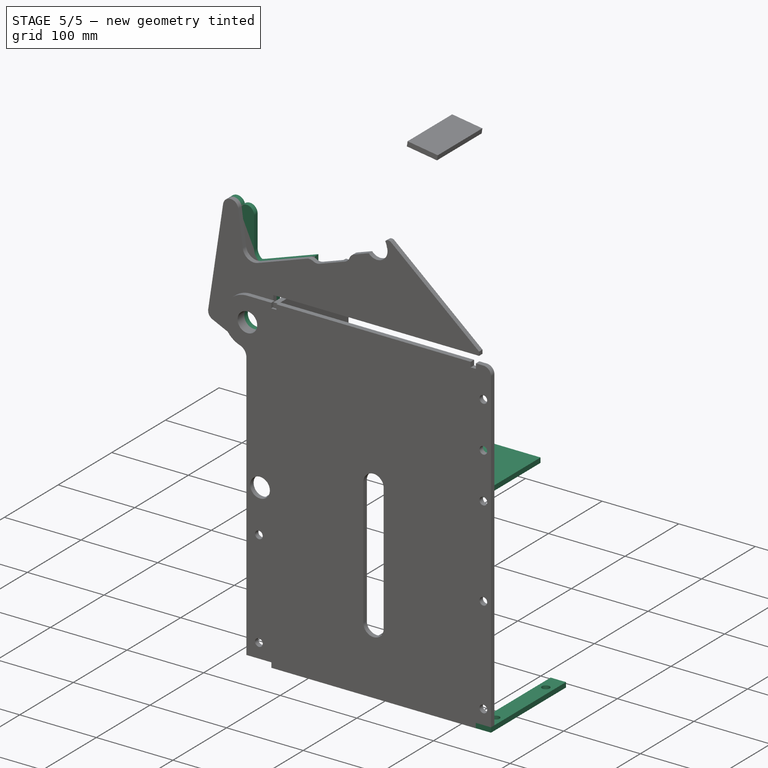
[diagram: stage 5 of 5 — iso view after this stage's code; geometry added in this stage tinted green]
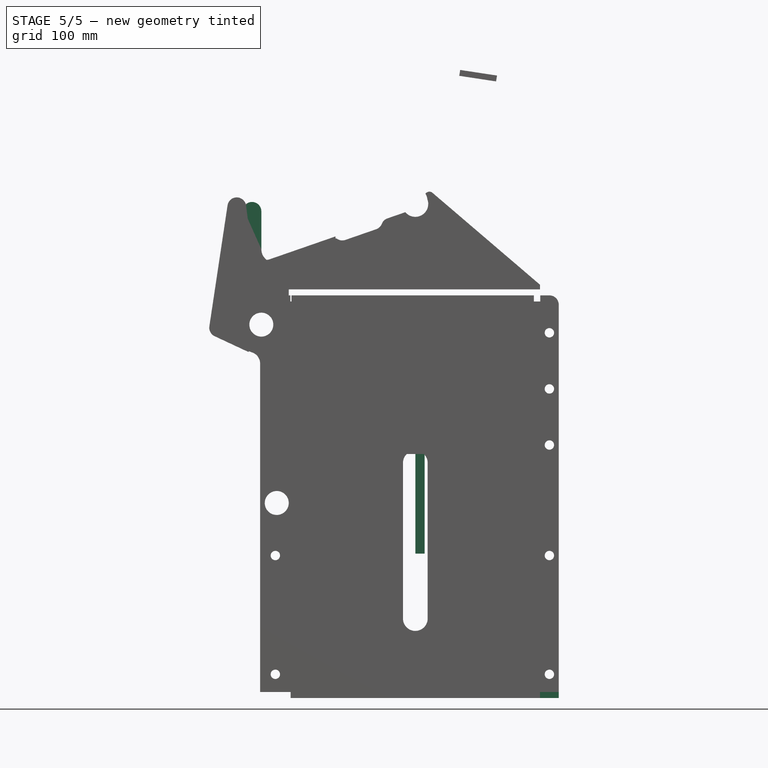
[diagram: stage 5 of 5 — front view after this stage's code; geometry added in this stage tinted green]
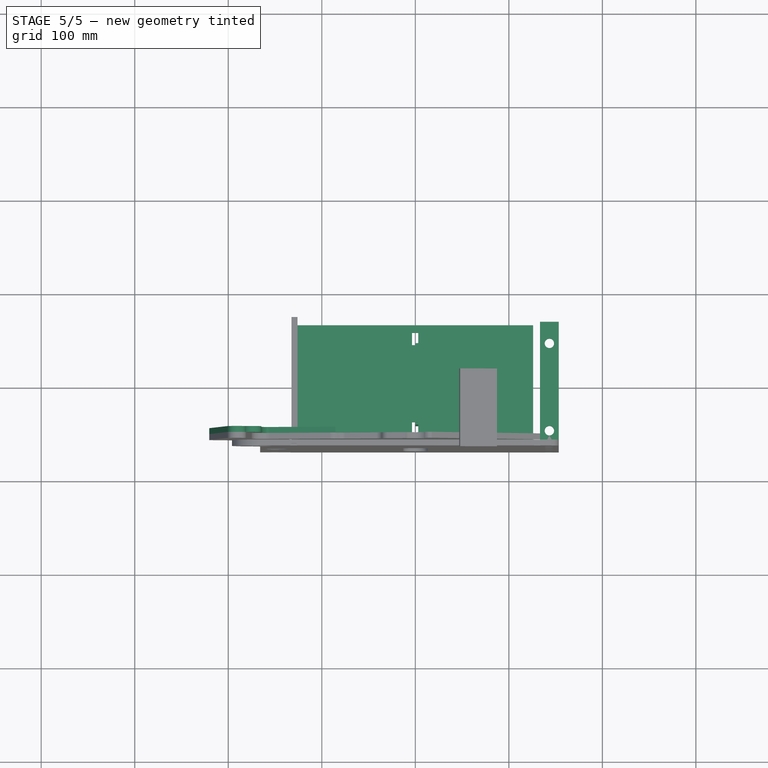
[diagram: stage 5 of 5 — top view after this stage's code; geometry added in this stage tinted green]
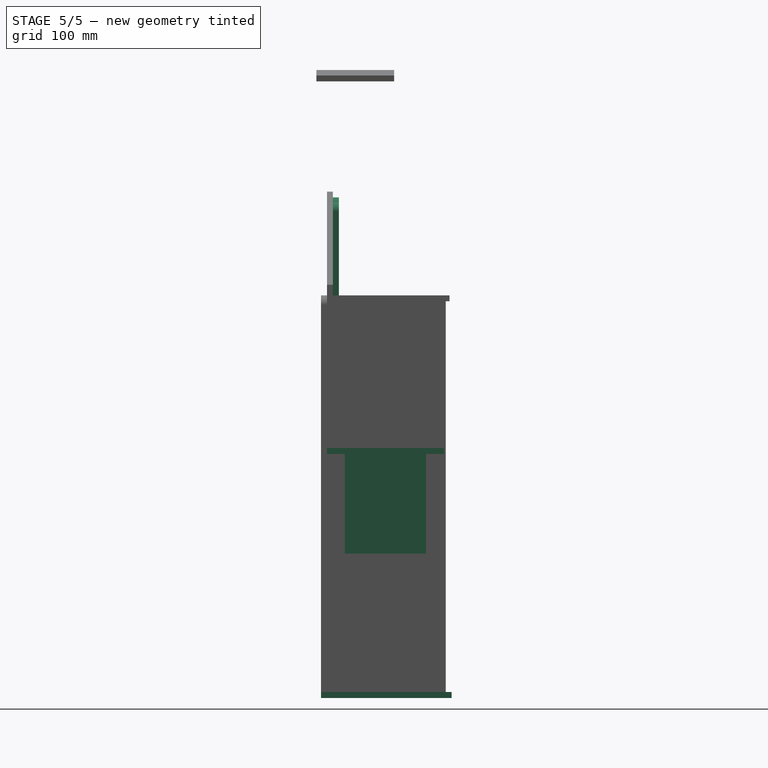
[diagram: stage 5 of 5 — right view after this stage's code; geometry added in this stage tinted green]
FEATURE [Sketcher::SketchObject] Sketch022
  ExternalGeometry = -> [Pad014,Pad003]
  FullyConstrained = true
  MapMode = 5
  Placement = pos=(0,-5.79e-14,-260.9) rot=(1,0,0;3.14159rad)
  Support = -> [Pad014]
  expr: Constraints[9] = <<inputs>>.metal_thickness
  sketch-geometry (10):
    g0: LineSegment StartX=-165.95 StartY=68.85 StartZ=0 EndX=-132.35 EndY=68.85 EndZ=0
    g1: LineSegment StartX=-132.35 StartY=68.85 StartZ=0 EndX=-132.35 EndY=-58.15 EndZ=0
    g2: LineSegment StartX=-132.35 StartY=-58.15 StartZ=0 EndX=-165.95 EndY=-58.15 EndZ=0
    g3: LineSegment StartX=-165.95 StartY=-58.15 StartZ=0 EndX=-165.95 EndY=68.85 EndZ=0
    g4: LineSegment StartX=-132.35 StartY=-64.5 StartZ=0 EndX=-132.35 EndY=-58.15 EndZ=0
    g5: Circle CenterX=-149.15 CenterY=45.7 CenterZ=0 NormalX=0 NormalY=0 NormalZ=1 AngleXU=0 Radius=5
    g6: Circle CenterX=-149.15 CenterY=-47.7 CenterZ=0 NormalX=0 NormalY=0 NormalZ=1 AngleXU=0 Radius=5
    g7: Circle CenterX=-149.15 CenterY=45.7 CenterZ=0 NormalX=0 NormalY=0 NormalZ=1 AngleXU=0 Radius=16.8
    g8: Circle CenterX=-149.15 CenterY=-47.7 CenterZ=0 NormalX=0 NormalY=0 NormalZ=1 AngleXU=0 Radius=16.8
    g9: LineSegment StartX=-132.35 StartY=-64.5 StartZ=0 EndX=-165.95 EndY=-64.5 EndZ=0
  constraints (26):
    c: Coincident(g0,g1)
    c: Coincident(g1,g2)
    c: Coincident(g2,g3)
    c: Coincident(g3,g0)
    c: Horizontal(g0)
    c: Horizontal(g2)
    c: Vertical(g1)
    c: Vertical(g3)
    c: Coincident(g0,g-3)
    c: Distance(g4) = 6.35
    c: Coincident(g4,g1)
    c: Coincident(g-4,g4)
    c: PointOnObject(g4,g1)
    c: Equal(g5,g6)
    c: Coincident(g7,g5)
    c: Tangent(g7,g3)
    c: Tangent(g7,g1)
    c: Diameter(g5) = 10
    c: Tangent(g7,g-5)
    c: Coincident(g8,g6)
    c: Tangent(g8,g3)
    c: Tangent(g8,g1)
    c: Coincident(g9,g4)
    c: PointOnObject(g9,g3)
    c: Horizontal(g9)
    c: Tangent(g9,g8)
FEATURE [Part::Extrusion] Extrude003  label="bolt_plate_1"
  Base = -> Sketch022
  Dir = (0,-2e-16,-1)
  DirMode = 2
  FaceMakerClass = Part::FaceMakerBullseye
  LengthFwd = 6.35
  LengthRev = 0
  Solid = true
  Symmetric = false
  expr: LengthFwd = <<inputs>>.metal_thickness
FEATURE [Sketcher::SketchObject] Sketch025
  ExternalGeometry = -> [Pad001,Pad]
  FullyConstrained = true
  MapMode = 5
  Placement = pos=(0,0,0) rot=(0.57735,0.57735,0.57735;2.0944rad)
  Support = -> [YZ_Plane002]
  expr: Constraints[11] = <<inputs>>.metal_thickness * 3
  sketch-geometry (7):
    g0: LineSegment StartX=43.45 StartY=-112.95 StartZ=0 EndX=43.45 EndY=-6.35 EndZ=0
    g1: LineSegment StartX=43.45 StartY=-6.35 StartZ=0 EndX=-43.45 EndY=-6.35 EndZ=0
    g2: LineSegment StartX=-43.45 StartY=-6.35 StartZ=0 EndX=-43.45 EndY=-112.95 EndZ=0
    g3: LineSegment StartX=-43.45 StartY=-112.95 StartZ=0 EndX=43.45 EndY=-112.95 EndZ=0
    g4: GeomPoint X=0 Y=-59.65 Z=0
    g5: LineSegment StartX=7.53e-14 StartY=-169.55 StartZ=0 EndX=7.53e-14 EndY=-112.95 EndZ=0
    g6: LineSegment StartX=7.53e-14 StartY=-112.95 StartZ=0 EndX=-1.5e-15 EndY=-56.35 EndZ=0
  constraints (18):
    c: Coincident(g0,g1)
    c: Coincident(g1,g2)
    c: Coincident(g2,g3)
    c: Coincident(g3,g0)
    c: Horizontal(g1)
    c: Horizontal(g3)
    c: Vertical(g0)
    c: Vertical(g2)
    c: Symmetric(g1,g0,g4)
    c: PointOnObject(g4,g-2)
    c: PointOnObject(g1,g-4)
    c: DistanceX(g-4,g1) = 19.05
    c: Coincident(g5,g-3)
    c: Coincident(g6,g5)
    c: Coincident(g6,g-5)
    c: Equal(g5,g6)
    c: PointOnObject(g5,g3)
    c: Vertical(g5)
FEATURE [Part::Extrusion] Extrude006  label="pusher_plate_support_v1__x2"
  Base = -> Sketch025
  Dir = (1,-1e-16,1e-16)
  DirMode = 2
  FaceMakerClass = Part::FaceMakerBullseye
  LengthFwd = 10
  LengthRev = 0
  Solid = true
  Symmetric = false
FEATURE [Sketcher::SketchObject] Sketch023
  ExternalGeometry = -> [Extrude003,Pad014,Pad004]
  FullyConstrained = true
  MapMode = 5
  Placement = pos=(0,-5.79e-14,-260.9) rot=(1,0,0;3.14159rad)
  Support = -> [Pocket]
  sketch-geometry (12):
    g0: LineSegment StartX=133.35 StartY=68.85 StartZ=0 EndX=153.35 EndY=68.85 EndZ=0
    g1: LineSegment StartX=153.35 StartY=68.85 StartZ=0 EndX=153.35 EndY=-70.85 EndZ=0
    g2: LineSegment StartX=153.35 StartY=-70.85 StartZ=0 EndX=133.35 EndY=-70.85 EndZ=0
    g3: LineSegment StartX=133.35 StartY=-70.85 StartZ=0 EndX=133.35 EndY=68.85 EndZ=0
    g4: Circle CenterX=143.35 CenterY=45.7 CenterZ=0 NormalX=0 NormalY=0 NormalZ=1 AngleXU=0 Radius=5
    g5: Circle CenterX=143.35 CenterY=-47.7 CenterZ=0 NormalX=0 NormalY=0 NormalZ=1 AngleXU=0 Radius=5
    g6: LineSegment StartX=-149.15 StartY=45.7 StartZ=0 EndX=143.35 EndY=45.7 EndZ=0
    g7: LineSegment StartX=-149.15 StartY=-47.7 StartZ=0 EndX=143.35 EndY=-47.7 EndZ=0
    g8: LineSegment StartX=143.35 StartY=-47.7 StartZ=0 EndX=143.35 EndY=45.7 EndZ=0
    g9: LineSegment StartX=133.35 StartY=68.85 StartZ=0 EndX=143.35 EndY=68.85 EndZ=0
    g10: LineSegment StartX=143.35 StartY=68.85 StartZ=0 EndX=153.35 EndY=68.85 EndZ=0
    g11: LineSegment StartX=143.35 StartY=45.7 StartZ=0 EndX=143.35 EndY=68.85 EndZ=0
  constraints (28):
    c: Coincident(g0,g1)
    c: Coincident(g1,g2)
    c: Coincident(g2,g3)
    c: Coincident(g3,g0)
    c: Horizontal(g2)
    c: Vertical(g1)
    c: Coincident(g0,g-5)
    c: Coincident(g2,g-6)
    c: Coincident(g-5,g0)
    c: Equal(g-3,g4)
    c: Equal(g4,g5)
    c: Coincident(g6,g-3)
    c: Coincident(g6,g4)
    c: Horizontal(g6)
    c: Coincident(g7,g-4)
    c: Coincident(g7,g5)
    c: Horizontal(g7)
    c: Coincident(g8,g5)
    c: Coincident(g8,g4)
    c: Vertical(g8)
    c: Coincident(g9,g0)
    c: Coincident(g10,g9)
    c: Coincident(g10,g0)
    c: Coincident(g11,g4)
    c: Coincident(g11,g9)
    c: Equal(g9,g10)
    c: PointOnObject(g9,g0)
    c: Vertical(g11)
FEATURE [Part::Extrusion] Extrude004  label="bolt_plate_2"
  Base = -> Sketch023
  Dir = (0,-2e-16,-1)
  DirMode = 2
  FaceMakerClass = Part::FaceMakerBullseye
  LengthFwd = 6.35
  LengthRev = 0
  Solid = true
  Symmetric = false
  expr: LengthFwd = <<inputs>>.metal_thickness
FEATURE [Sketcher::SketchObject] Sketch027
  ExternalGeometry = -> [Pad012,Pad014,Extrude005,Pad003,Pad013]
  FullyConstrained = false
  MapMode = 5
  Placement = pos=(9e-16,-49.8,8.9e-15) rot=(1,0,0;1.5708rad)
  Support = -> [Pad012]
  sketch-geometry (19):
    g0: Circle CenterX=1.8e-15 CenterY=-182.35 CenterZ=0 NormalX=0 NormalY=0 NormalZ=1 AngleXU=0 Radius=455.446
    g1: GeomPoint X=-332.431 Y=128.971 Z=0
    g2: LineSegment StartX=-211.885 StartY=155.376 StartZ=0 EndX=-176.529 EndY=120.021 EndZ=0
    g3: LineSegment StartX=-151.85 StartY=131.9 StartZ=0 EndX=-132.35 EndY=131.9 EndZ=0
    g4: ArcOfCircle CenterX=-164.65 CenterY=131.9 CenterZ=0 NormalX=0 NormalY=0 NormalZ=1 AngleXU=0 Radius=16.8 StartAngle=3.92699 EndAngle=6.28319
    g5: LineSegment StartX=-164.65 StartY=119.1 StartZ=0 EndX=-164.65 EndY=115.1 EndZ=0
    g6: LineSegment StartX=-97.85 StartY=213.532 StartZ=0 EndX=-97.85 EndY=169.55 EndZ=0
    g7: LineSegment StartX=-97.85 StartY=169.55 StartZ=0 EndX=-147.85 EndY=169.55 EndZ=0
    g8: ArcOfCircle CenterX=-204.814 CenterY=162.447 CenterZ=0 NormalX=0 NormalY=0 NormalZ=1 AngleXU=0 Radius=10 StartAngle=2.92527 EndAngle=3.92699
    g9: ArcOfCircle CenterX=-174.65 CenterY=299.707 CenterZ=0 NormalX=0 NormalY=0 NormalZ=1 AngleXU=0 Radius=10 StartAngle=-1.8e-15 EndAngle=2.92527
    g10: LineSegment StartX=-184.417 StartY=301.853 StartZ=0 EndX=-214.581 EndY=164.593 EndZ=0
    g11: LineSegment StartX=-103.606 StartY=210.454 StartZ=0 EndX=-97.85 EndY=213.532 EndZ=0
    g12: LineSegment StartX=-147.85 StartY=169.55 StartZ=0 EndX=-147.85 EndY=131.9 EndZ=0
    g13: Circle CenterX=-164.65 CenterY=131.9 CenterZ=0 NormalX=0 NormalY=0 NormalZ=1 AngleXU=0 Radius=12.8
    g14: Circle CenterX=-151.85 CenterY=247.037 CenterZ=0 NormalX=0 NormalY=0 NormalZ=1 AngleXU=0 Radius=12.8
    g15: LineSegment StartX=-332.431 StartY=128.971 StartZ=0 EndX=-164.65 EndY=131.9 EndZ=0
    g16: LineSegment StartX=-164.65 StartY=131.9 StartZ=0 EndX=-164.65 EndY=299.707 EndZ=0
    g17: ArcOfCircle CenterX=-123.166 CenterY=247.037 CenterZ=0 NormalX=0 NormalY=0 NormalZ=1 AngleXU=0 Radius=41.4837 StartAngle=3.14159 EndAngle=5.20341
    g18: LineSegment StartX=-164.65 StartY=299.707 StartZ=0 EndX=-164.65 EndY=247.037 EndZ=0
  constraints (50):
    c: Coincident(g0,g-5)
    c: Angle(g2,g-6) = 2.35619
    c: PointOnObject(g3,g-4)
    c: PointOnObject(g3,g-6)
    c: Horizontal(g3)
    c: Perpendicular(g-4,g3)
    c: Distance(g3) = 19.5
    c: PointOnObject(g5,g4)
    c: Vertical(g5)
    c: Perpendicular(g-4,g5)
    c: Distance(g5) = 4
    c: Tangent(g4,g2) = -1.5708
    c: PointOnObject(g6,g-7)
    c: Vertical(g6)
    c: Coincident(g7,g6)
    c: Tangent(g8,g2) = -1.5708
    c: Distance(g2) = 50
    c: Tangent(g10,g8) = -1.5708
    c: Tangent(g10,g9) = -1.5708
    c: Equal(g8,g9)
    c: Diameter(g9) = 20
    c: PointOnObject(g11,g-7)
    c: Coincident(g11,g6)
    c: Distance(g7) = 50
    c: Coincident(g12,g7)
    c: Coincident(g12,g4)
    c: Vertical(g12)
    c: Equal(g13,g-4)
    c: PointOnObject(g14,g0)
    c: PointOnObject(g5,g13)
    c: Coincident(g4,g13)
    c: Coincident(g15,g4)
    c: Coincident(g16,g4)
    c: Angle(g16,g15) = 1.58825
    c: Equal(g16,g15)
    c: Tangent(g9,g16) = -1.5708
    c: Tangent(g17,g11) = -1.5708
    c: Coincident(g1,g15)
    c: PointOnObject(g1,g0)
    c: Tangent(g17,g14)
    c: Coincident(g-4,g4)
    c: Vertical(g16)
    c: Coincident(g18,g9)
    c: Vertical(g18)
    c: Tangent(g18,g14)
    c: Tangent(g18,g17) = -1.5708
    c: PointOnObject(g-8,g0)
    c: Equal(g14,g-8)
    c: PointOnObject(g-3,g7)
    c: Horizontal(g7)
FEATURE [Part::Extrusion] Extrude008  label="lid_opening_catch_x2__USE_COMBINED_PART_INSTEAD"
  Base = -> Sketch027
  Dir = (0,-1,2e-16)
  DirMode = 2
  FaceMakerClass = Part::FaceMakerBullseye
  LengthFwd = 6.35
  LengthRev = 0
  Solid = true
  Symmetric = false
  expr: LengthFwd = <<inputs>>.metal_thickness
FEATURE [Sketcher::SketchObject] Sketch028  label="Sketch028_check_latch_contact_point"
  ExternalGeometry = -> [Extrude005,Pad012,Pad014,Extrude008,Extrude011,Pad008]
  FullyConstrained = false
  MapMode = 5
  Placement = pos=(0,-68.85,1.51e-14) rot=(1,0,0;1.5708rad)
  Support = -> [Pad014]
  sketch-geometry (11):
    g0: Circle CenterX=-160.95 CenterY=131.423 CenterZ=0 NormalX=0 NormalY=0 NormalZ=1 AngleXU=0 Radius=192.81
    g1: Circle CenterX=-160.95 CenterY=131.423 CenterZ=0 NormalX=0 NormalY=0 NormalZ=1 AngleXU=0 Radius=219.803
    g2: LineSegment StartX=-160.95 StartY=131.423 StartZ=0 EndX=-160.95 EndY=-58.775 EndZ=0
    g3: LineSegment StartX=-160.95 StartY=131.423 StartZ=0 EndX=-322.303 EndY=280.683 EndZ=0
    g4: Circle CenterX=1.8e-15 CenterY=-182.35 CenterZ=0 NormalX=0 NormalY=0 NormalZ=1 AngleXU=0 Radius=443.319
    g5: Circle CenterX=-160.95 CenterY=131.423 CenterZ=0 NormalX=0 NormalY=0 NormalZ=1 AngleXU=0 Radius=132.42
    g6: LineSegment StartX=-160.95 StartY=131.423 StartZ=0 EndX=-187.243 EndY=261.207 EndZ=0
    g7: LineSegment StartX=-160.95 StartY=131.423 StartZ=0 EndX=-252.182 EndY=35.444 EndZ=0
    g8: LineSegment StartX=-160.95 StartY=131.423 StartZ=0 EndX=0 EndY=260.969 EndZ=0
    g9: LineSegment StartX=-160.95 StartY=131.423 StartZ=0 EndX=-379.48 EndY=155.047 EndZ=0
    g10: Circle CenterX=1.8e-15 CenterY=-182.35 CenterZ=0 NormalX=0 NormalY=0 NormalZ=1 AngleXU=0 Radius=412.374
  constraints (24):
    c: PointOnObject(g-4,g0)
    c: Coincident(g1,g0)
    c: PointOnObject(g-4,g1)
    c: Coincident(g2,g0)
    c: Vertical(g2)
    c: Coincident(g3,g0)
    c: Coincident(g4,g-3)
    c: PointOnObject(g-4,g4)
    c: Coincident(g5,g0)
    c: Coincident(g6,g0)
    c: Coincident(g7,g0)
    c: PointOnObject(g7,g5)
    c: Angle(g6,g7) = 2.18166
    c: Coincident(g8,g0)
    c: Coincident(g8,g-4)
    c: Coincident(g9,g0)
    c: PointOnObject(g9,g1)
    c: Angle(g8,g9) = 2.35619
    c: PointOnObject(g3,g1)
    c: PointOnObject(g2,g-5)
    c: Tangent(g-6,g5)
    c: PointOnObject(g6,g5)
    c: Coincident(g10,g4)
    c: Tangent(g10,g-9)
FEATURE [PartDesign::FeatureBase] BaseFeature
  BaseFeature = -> Extrude011
FEATURE [Sketcher::SketchObject] Sketch054
  ExternalGeometry = -> [Extrude012,Pad]
  FullyConstrained = true
  MapMode = 5
  Placement = pos=(-3.375,0,0) rot=(0.57735,0.57735,0.57735;2.0944rad)
  Support = -> [Extrude012]
  expr: Constraints[36] = <<inputs>>.tab_clearance
  expr: Constraints[50] = <<inputs>>.tab_clearance
  expr: Constraints[80] = <<inputs>>.metal_thickness * 2
  sketch-geometry (28):
    g0: LineSegment StartX=-54.15 StartY=-6.35 StartZ=0 EndX=54.15 EndY=-6.35 EndZ=0
    g1: LineSegment StartX=-54.15 StartY=-6.35 StartZ=0 EndX=-54.15 EndY=-18.85 EndZ=0
    g2: LineSegment StartX=-54.15 StartY=-18.85 StartZ=0 EndX=-49.8 EndY=-18.85 EndZ=0
    g3: LineSegment StartX=-49.8 StartY=-18.85 StartZ=0 EndX=-49.8 EndY=-147.503 EndZ=0
    g4: LineSegment StartX=-49.8 StartY=-147.503 StartZ=0 EndX=-54.15 EndY=-147.503 EndZ=0
    g5: LineSegment StartX=-54.15 StartY=-147.503 StartZ=0 EndX=-54.15 EndY=-159.803 EndZ=0
    g6: LineSegment StartX=-54.15 StartY=-159.803 StartZ=0 EndX=-49.8 EndY=-159.803 EndZ=0
    g7: LineSegment StartX=-49.8 StartY=-159.803 StartZ=0 EndX=-49.8 EndY=-167.55 EndZ=0
    g8: LineSegment StartX=-49.8 StartY=-167.55 StartZ=0 EndX=49.8 EndY=-167.55 EndZ=0
    g9: LineSegment StartX=49.8 StartY=-167.55 StartZ=0 EndX=49.8 EndY=-159.803 EndZ=0
    g10: LineSegment StartX=49.8 StartY=-159.803 StartZ=0 EndX=54.15 EndY=-159.803 EndZ=0
    g11: LineSegment StartX=54.15 StartY=-159.803 StartZ=0 EndX=54.15 EndY=-147.503 EndZ=0
    g12: LineSegment StartX=54.15 StartY=-147.503 StartZ=0 EndX=49.8 EndY=-147.503 EndZ=0
    g13: LineSegment StartX=49.8 StartY=-147.503 StartZ=0 EndX=49.8 EndY=-18.85 EndZ=0
    g14: LineSegment StartX=49.8 StartY=-18.85 StartZ=0 EndX=54.15 EndY=-18.85 EndZ=0
    g15: LineSegment StartX=54.15 StartY=-6.35 StartZ=0 EndX=54.15 EndY=-18.85 EndZ=0
    g16: LineSegment StartX=-54.15 StartY=-147.503 StartZ=0 EndX=-54.15 EndY=-147.303 EndZ=0
    g17: LineSegment StartX=-54.15 StartY=-159.803 StartZ=0 EndX=-54.15 EndY=-160.003 EndZ=0
    g18: LineSegment StartX=-54.15 StartY=-159.803 StartZ=0 EndX=-56.15 EndY=-159.803 EndZ=0
    g19: LineSegment StartX=-54.15 StartY=-18.85 StartZ=0 EndX=-56.15 EndY=-18.85 EndZ=0
    g20: LineSegment StartX=-54.15 StartY=-18.85 StartZ=0 EndX=-54.15 EndY=-19.05 EndZ=0
    g21: LineSegment StartX=54.15 StartY=-6.35 StartZ=0 EndX=54.15 EndY=0 EndZ=0
    g22: LineSegment StartX=54.15 StartY=0 StartZ=0 EndX=41.45 EndY=0 EndZ=0
    g23: LineSegment StartX=41.45 StartY=0 StartZ=0 EndX=41.45 EndY=-6.35 EndZ=0
    g24: LineSegment StartX=41.45 StartY=-6.35 StartZ=0 EndX=-41.45 EndY=-6.35 EndZ=0
    g25: LineSegment StartX=-41.45 StartY=-6.35 StartZ=0 EndX=-41.45 EndY=0 EndZ=0
    g26: LineSegment StartX=-41.45 StartY=0 StartZ=0 EndX=-54.15 EndY=0 EndZ=0
    g27: LineSegment StartX=-54.15 StartY=-6.35 StartZ=0 EndX=-54.15 EndY=0 EndZ=0
  constraints (81):
    c: PointOnObject(g0,g-6)
    c: Coincident(g1,g0)
    c: Vertical(g1)
    c: Coincident(g2,g1)
    c: Horizontal(g2)
    c: Coincident(g3,g2)
    c: Vertical(g3)
    c: Coincident(g4,g3)
    c: Coincident(g5,g4)
    c: Vertical(g5)
    c: Coincident(g6,g5)
    c: Coincident(g7,g6)
    c: Vertical(g7)
    c: Coincident(g8,g7)
    c: Coincident(g9,g8)
    c: Coincident(g10,g9)
    c: Coincident(g11,g10)
    c: Horizontal(g12)
    c: Coincident(g13,g12)
    c: Vertical(g13)
    c: Coincident(g14,g13)
    c: Coincident(g15,g0)
    c: Coincident(g15,g14)
    c: Equal(g14,g2)
    c: Horizontal(g14)
    c: Horizontal(g6)
    c: Symmetric(g8,g7,g-2)
    c: Vertical(g3,g6)
    c: Coincident(g11,g12)
    c: Coincident(g16,g4)
    c: PointOnObject(g16,g-4)
    c: Vertical(g16)
    c: Coincident(g17,g5)
    c: PointOnObject(g17,g-3)
    c: Equal(g16,g17)
    c: Horizontal(g4)
    c: Distance(g16) = 0.2
    c: Coincident(g18,g5)
    c: PointOnObject(g18,g-7)
    c: Distance(g18) = 2
    c: Horizontal(g18)
    c: PointOnObject(g7,g-8)
    c: Distance(g-10,g7) = 2
    c: Coincident(g19,g1)
    c: PointOnObject(g19,g-11)
    c: Horizontal(g19)
    c: Equal(g19,g18)
    c: Coincident(g20,g1)
    c: PointOnObject(g20,g-5)
    c: Vertical(g20)
    c: Distance(g20) = 0.2
    c: Vertical(g15)
    c: Symmetric(g0,g0,g-2)
    c: Equal(g15,g1)
    c: Equal(g13,g3)
    c: Equal(g12,g4)
    c: Vertical(g11)
    c: Horizontal(g10)
    c: Vertical(g9)
    c: Equal(g11,g5)
    c: Vertical(g17)
    c: Coincident(g21,g15)
    c: PointOnObject(g21,g-1)
    c: Vertical(g21)
    c: Coincident(g22,g21)
    c: PointOnObject(g22,g-1)
    c: Coincident(g23,g22)
    c: PointOnObject(g23,g0)
    c: Coincident(g24,g23)
    c: PointOnObject(g24,g0)
    c: Coincident(g25,g24)
    c: Vertical(g25)
    c: Coincident(g26,g25)
    c: PointOnObject(g26,g-1)
    c: Coincident(g27,g1)
    c: Coincident(g27,g26)
    c: Vertical(g27)
    c: Vertical(g23)
    c: Symmetric(g25,g22,g-2)
    c: DistanceX(g21,g-13) = 8.35
    c: Distance(g22) = 12.7
FEATURE [Part::Extrusion] Extrude013  label="pusher_support_v2"
  Base = -> Sketch054
  Dir = (1,0,0)
  DirMode = 2
  FaceMakerClass = Part::FaceMakerBullseye
  LengthFwd = 6.35
  LengthRev = 0
  Solid = true
  Symmetric = false
  expr: LengthFwd = <<inputs>>.metal_thickness
FEATURE [Sketcher::SketchObject] Sketch055
  ExternalGeometry = -> [Pad,Extrude013]
  FullyConstrained = true
  MapMode = 5
  Support = -> [Pad]
  expr: Constraints[55] = <<inputs>>.tab_clearance
  sketch-geometry (24):
    g0: LineSegment StartX=126 StartY=-62.5 StartZ=0 EndX=-126 EndY=-62.5 EndZ=0
    g1: LineSegment StartX=-126 StartY=-62.5 StartZ=0 EndX=-126 EndY=62.5 EndZ=0
    g2: LineSegment StartX=-126 StartY=62.5 StartZ=0 EndX=126 EndY=62.5 EndZ=0
    g3: LineSegment StartX=126 StartY=62.5 StartZ=0 EndX=126 EndY=-62.5 EndZ=0
    g4: LineSegment StartX=2.975 StartY=41.45 StartZ=0 EndX=2.975 EndY=54.15 EndZ=0
    g5: LineSegment StartX=2.975 StartY=54.15 StartZ=0 EndX=-3.375 EndY=54.15 EndZ=0
    g6: LineSegment StartX=-3.375 StartY=54.15 StartZ=0 EndX=-3.375 EndY=41.45 EndZ=0
    g7: LineSegment StartX=-3.375 StartY=41.45 StartZ=0 EndX=2.975 EndY=41.45 EndZ=0
    g8: GeomPoint X=-0.2 Y=47.8 Z=0
    g9: LineSegment StartX=-3.575 StartY=41.25 StartZ=0 EndX=-3.575 EndY=54.35 EndZ=0
    g10: LineSegment StartX=-3.575 StartY=54.35 StartZ=0 EndX=3.175 EndY=54.35 EndZ=0
    g11: LineSegment StartX=3.175 StartY=54.35 StartZ=0 EndX=3.175 EndY=41.25 EndZ=0
    g12: LineSegment StartX=3.175 StartY=41.25 StartZ=0 EndX=-3.575 EndY=41.25 EndZ=0
    g13: GeomPoint X=-0.2 Y=47.8 Z=0
    g14: LineSegment StartX=-3.575 StartY=-54.35 StartZ=0 EndX=-3.575 EndY=-41.25 EndZ=0
    g15: LineSegment StartX=-3.575 StartY=-41.25 StartZ=0 EndX=3.175 EndY=-41.25 EndZ=0
    g16: LineSegment StartX=3.175 StartY=-41.25 StartZ=0 EndX=3.175 EndY=-54.35 EndZ=0
    g17: LineSegment StartX=3.175 StartY=-54.35 StartZ=0 EndX=-3.575 EndY=-54.35 EndZ=0
    g18: GeomPoint X=-0.2 Y=-47.8 Z=0
    g19: LineSegment StartX=3.175 StartY=41.25 StartZ=0 EndX=3.175 EndY=41.45 EndZ=0
    g20: LineSegment StartX=3.175 StartY=41.45 StartZ=0 EndX=2.975 EndY=41.45 EndZ=0
    g21: LineSegment StartX=2.975 StartY=41.45 StartZ=0 EndX=2.975 EndY=41.25 EndZ=0
    g22: LineSegment StartX=2.975 StartY=41.25 StartZ=0 EndX=3.175 EndY=41.25 EndZ=0
    g23: GeomPoint X=3.075 Y=41.35 Z=0
  constraints (56):
    c: Coincident(g0,g1)
    c: Coincident(g1,g2)
    c: Coincident(g2,g3)
    c: Coincident(g3,g0)
    c: Horizontal(g0)
    c: Horizontal(g2)
    c: Vertical(g1)
    c: Vertical(g3)
    c: Coincident(g0,g-3)
    c: Coincident(g1,g-4)
    c: Coincident(g4,g5)
    c: Coincident(g5,g6)
    c: Coincident(g6,g7)
    c: Coincident(g7,g4)
    c: Horizontal(g5)
    c: Horizontal(g7)
    c: Vertical(g4)
    c: Vertical(g6)
    c: Symmetric(g5,g4,g8)
    c: Coincident(g5,g-5)
    c: Coincident(g4,g-6)
    c: Coincident(g9,g10)
    c: Coincident(g10,g11)
    c: Coincident(g11,g12)
    c: Coincident(g12,g9)
    c: Horizontal(g10)
    c: Horizontal(g12)
    c: Vertical(g9)
    c: Vertical(g11)
    c: Symmetric(g10,g9,g13)
    c: Coincident(g13,g8)
    c: Coincident(g14,g15)
    c: Coincident(g15,g16)
    c: Coincident(g16,g17)
    c: Coincident(g17,g14)
    c: Horizontal(g15)
    c: Horizontal(g17)
    c: Vertical(g14)
    c: Vertical(g16)
    c: Symmetric(g15,g14,g18)
    c: Symmetric(g18,g8,g-1)
    c: Equal(g15,g12)
    c: Equal(g16,g11)
    c: Coincident(g19,g20)
    c: Coincident(g20,g21)
    c: Coincident(g21,g22)
    c: Coincident(g22,g19)
    c: Horizontal(g20)
    c: Horizontal(g22)
    c: Vertical(g19)
    c: Vertical(g21)
    c: Symmetric(g20,g19,g23)
    c: Coincident(g4,g20)
    c: Coincident(g19,g11)
    c: Equal(g20,g21)
    c: Distance(g20) = 0.2
FEATURE [Part::Extrusion] Extrude014  label="pusher_base_plate_v2"
  Base = -> Sketch055
  Dir = (0,0,1)
  DirMode = 2
  FaceMakerClass = Part::FaceMakerBullseye
  LengthFwd = 6.35
  LengthRev = 0
  Reversed = true
  Solid = true
  Symmetric = false
  expr: LengthFwd = <<inputs>>.metal_thickness
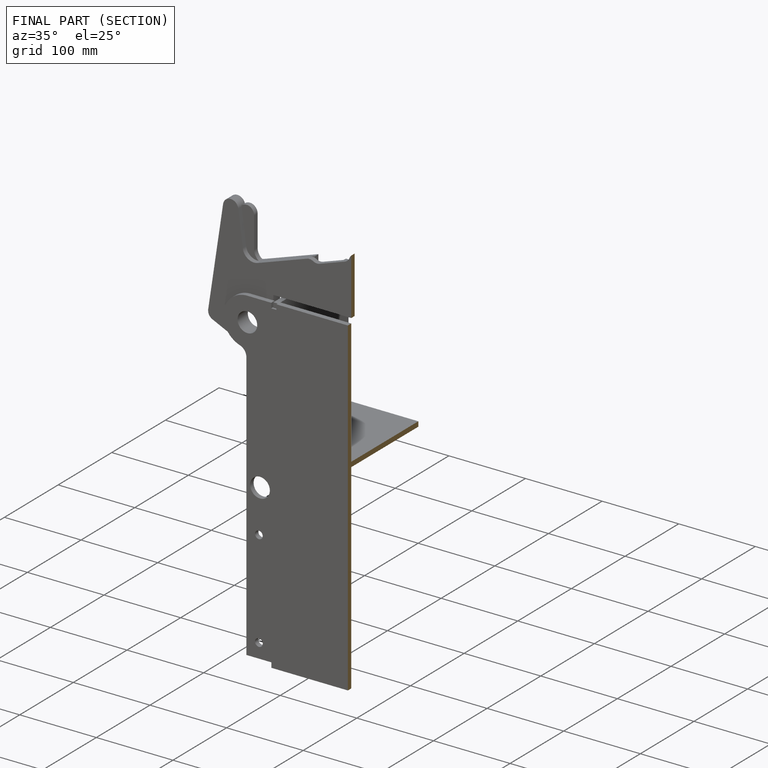
[diagram: finished part — half-section view (interior)]
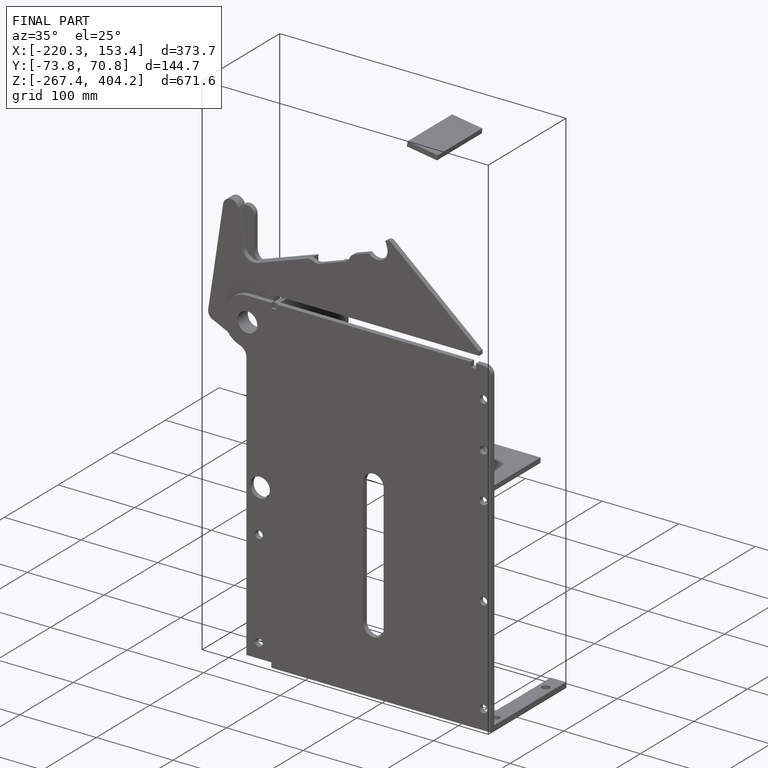
[diagram: finished part — iso view with bounding-box wireframe]
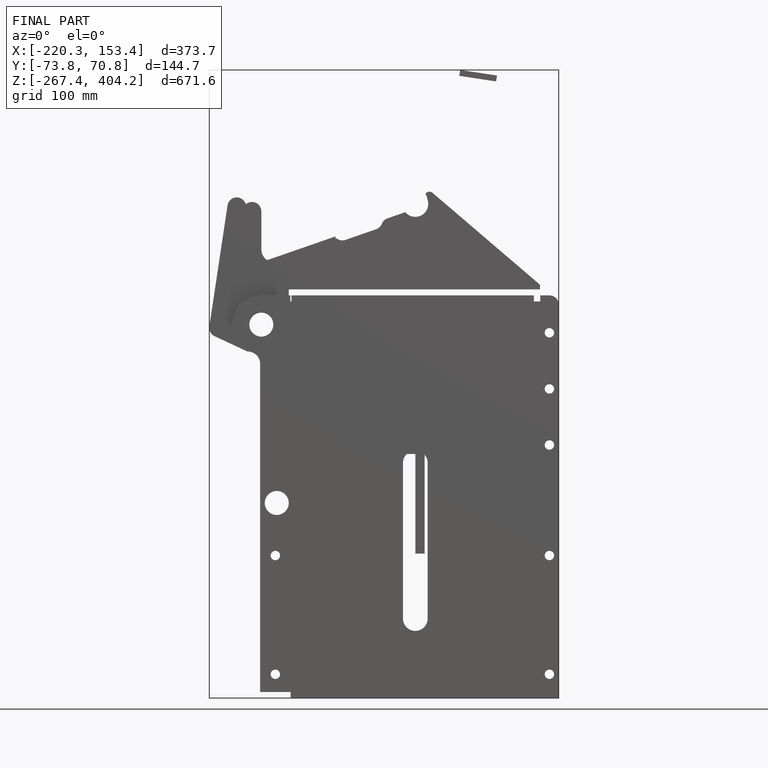
[diagram: finished part — front view with bounding-box wireframe]
